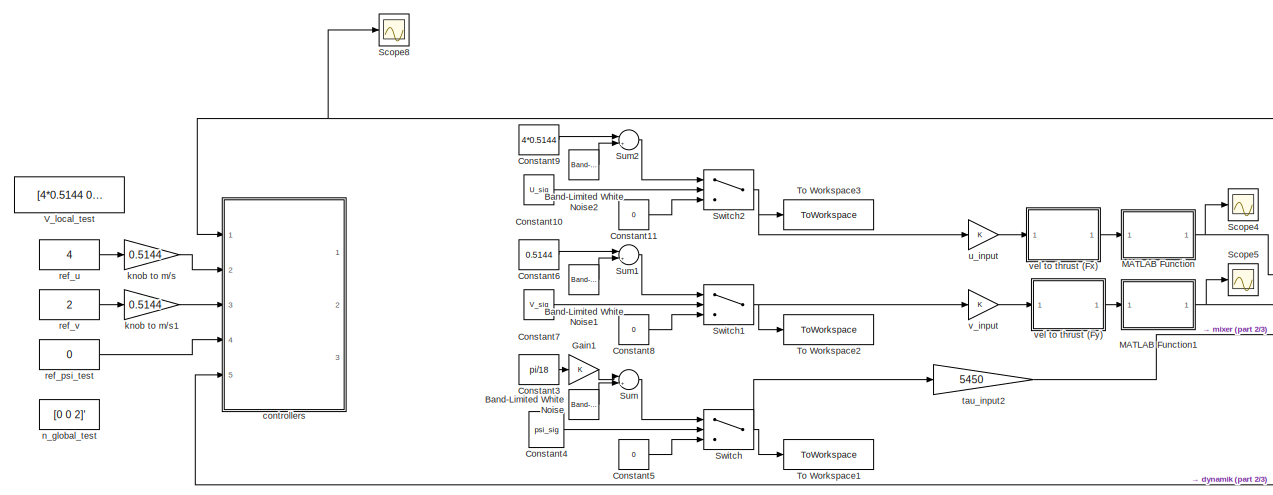
[diagram: root canvas - part 1/3, top left region]
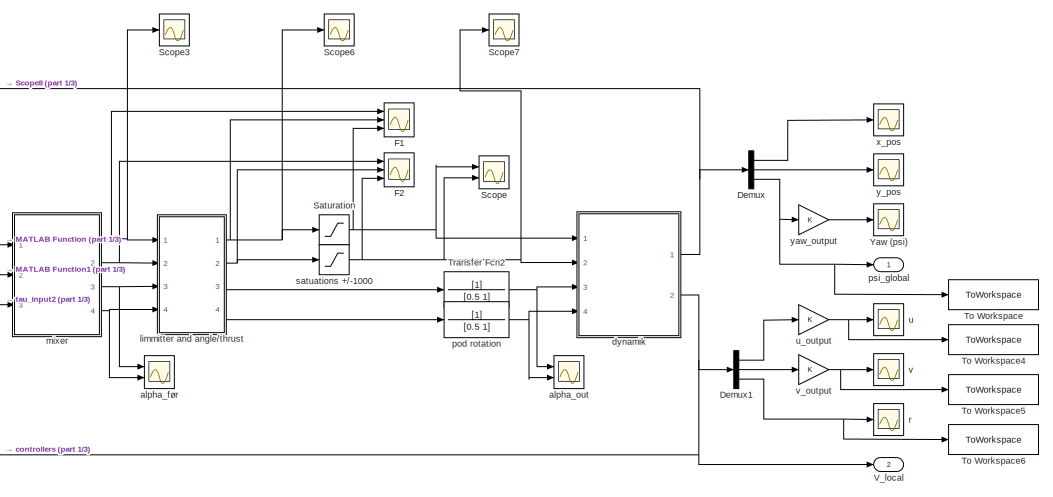
[diagram: root canvas - part 2/3, top right region]
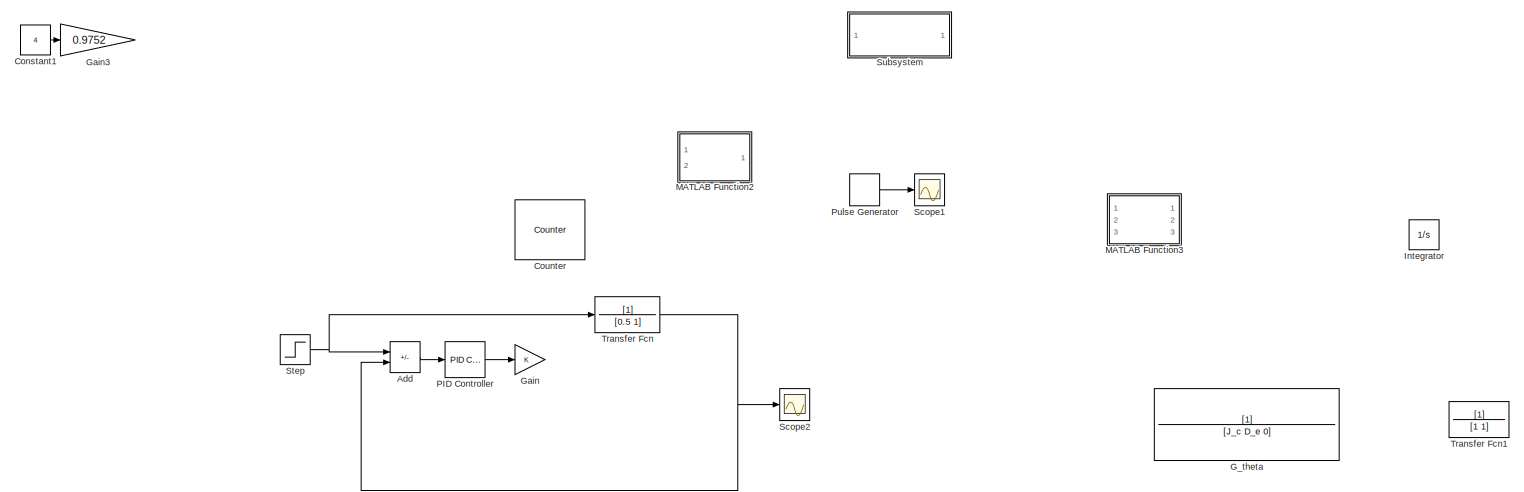
[diagram: root canvas - part 3/3, bottom center region]
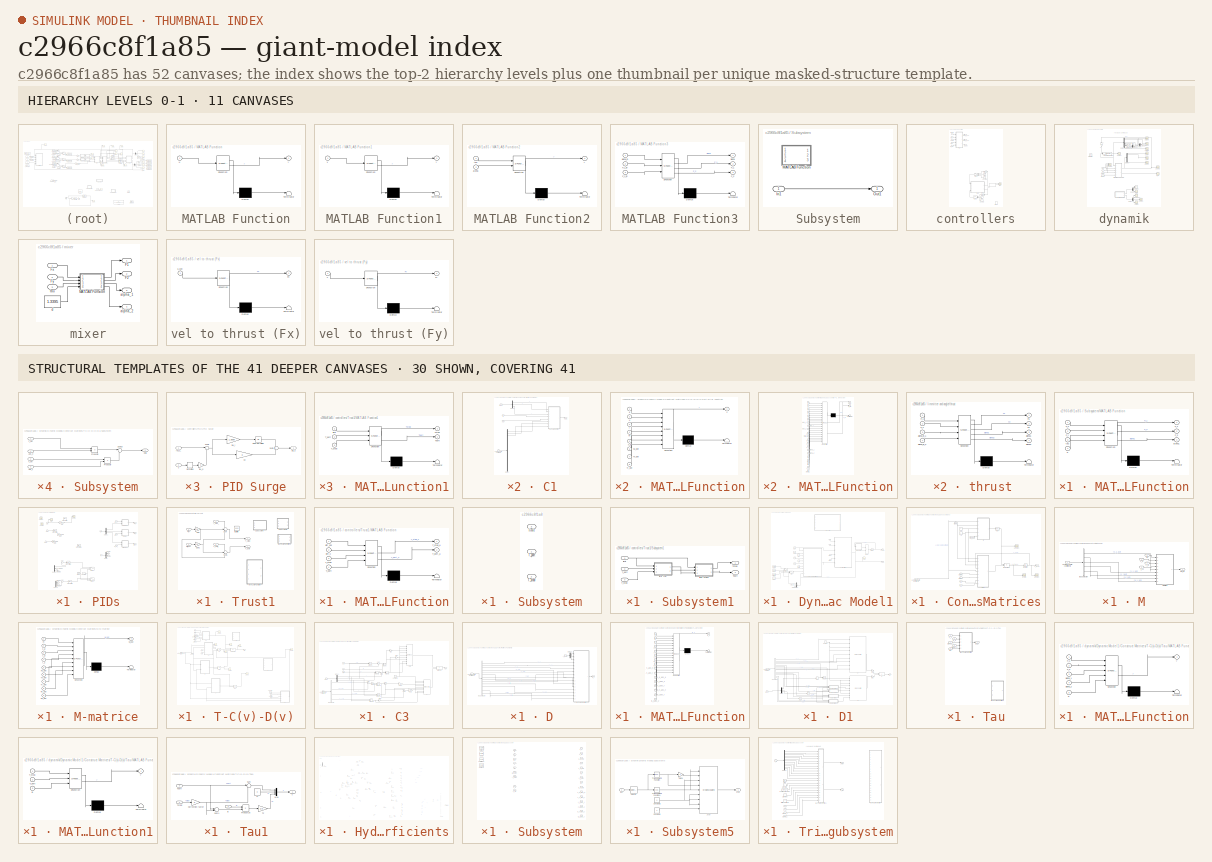
[diagram: thumbnail index - top-2 hierarchy levels (11 canvases) + 30 structural-template representatives of the remaining 41 canvases]
MODEL slx_c2966c8f1a85
KIND model
CONFIG AbsTol = auto
CONFIG EnableMultiTasking = off
CONFIG FixedStep = 0.02
CONFIG MaxStep = auto
CONFIG MinStep = auto
CONFIG RelTol = 1e-3
CONFIG SampleTimeConstraint = Unconstrained
CONFIG SolverName = FixedStepAuto
CONFIG StartTime = 0.0
CONFIG StopTime = 200
BLOCK [Sum] Add
  Commented = on
  IconShape = rectangular
  Inputs = +-
  Ports = [2, 1]
BLOCK [Reference] Band-Limited White Noise  REF=simulink/Sources/Band-Limited
White Noise
  Ports = [0, 1]
  SourceBlock = simulink/Sources/Band-Limited\nWhite Noise
  SourceProductBaseCode = SL
  SourceType = Band-Limited White Noise.
BLOCK [Reference] Band-Limited White Noise1  REF=simulink/Sources/Band-Limited
White Noise
  Ports = [0, 1]
  SourceBlock = simulink/Sources/Band-Limited\nWhite Noise
  SourceProductBaseCode = SL
  SourceType = Band-Limited White Noise.
BLOCK [Reference] Band-Limited White Noise2  REF=simulink/Sources/Band-Limited
White Noise
  Ports = [0, 1]
  SourceBlock = simulink/Sources/Band-Limited\nWhite Noise
  SourceProductBaseCode = SL
  SourceType = Band-Limited White Noise.
BLOCK [Constant] Constant1
  Commented = on
  Value = 4
BLOCK [Constant] Constant10
  Value = U_sig
BLOCK [Constant] Constant11
  Value = 0
BLOCK [Constant] Constant3
  Value = pi/18
BLOCK [Constant] Constant4
  Value = psi_sig
BLOCK [Constant] Constant5
  Value = 0
BLOCK [Constant] Constant6
  Value = 0.5144
BLOCK [Constant] Constant7
  Value = V_sig
BLOCK [Constant] Constant8
  Value = 0
BLOCK [Constant] Constant9
  Value = 4*0.5144
BLOCK [Reference] Counter  REF=dspswit3/Counter
  Commented = on
  Ports = [2, 2]
  SourceBlock = dspswit3/Counter
  SourceProductBaseCode = DS
  SourceType = Counter
BLOCK [Demux] Demux
  Outputs = 3
  Ports = [1, 3]
BLOCK [Demux] Demux1
  Outputs = 3
  Ports = [1, 3]
BLOCK [Scope] F1
  Floating = off
  NumInputPorts = 3
  Ports = [3]
  ScopeSpecificationString = Simulink.scopes.TimeScopeBlockCfg('CurrentConfiguration', extmgr.ConfigurationSet(extmgr.Configuration('Core','General UI',true),extmgr.Configuration('Core','Source UI',true),extmgr.Configuration('Sources','WiredSimulink',true,'DataLoggingVariableName','ScopeData5'),extmgr.Configuration('Visuals','Time Domain',true,'SerializedDisplays',{struct('MinYLimReal','0.000000000000000000007','MaxYLimReal',...<+1929ch>
BLOCK [Scope] F2
  Floating = off
  NumInputPorts = 3
  Ports = [3]
  ScopeSpecificationString = Simulink.scopes.TimeScopeBlockCfg('CurrentConfiguration', extmgr.ConfigurationSet(extmgr.Configuration('Core','General UI',true),extmgr.Configuration('Core','Source UI',true),extmgr.Configuration('Sources','WiredSimulink',true,'DataLoggingVariableName','ScopeData8'),extmgr.Configuration('Visuals','Time Domain',true,'SerializedDisplays',{struct('MinYLimReal','-2229.58864','MaxYLimReal','1358.84318'...<+1818ch>
BLOCK [TransferFcn] G_theta
  Commented = on
  Denominator = [J_c D_e 0]
BLOCK [Gain] Gain
  Commented = on
BLOCK [Gain] Gain1
BLOCK [Gain] Gain3
  Commented = on
  Gain = 0.9752
BLOCK [Integrator] Integrator
  Commented = on
  Ports = [1, 1]
BLOCK [SubSystem] MATLAB Function
  ErrorFcn = Stateflow.Translate.translate
  PermitHierarchicalResolution = ExplicitOnly
  Ports = [1, 1]
  RequestExecContextInheritance = off
  SFBlockType = MATLAB Function
  TreatAsAtomicUnit = on
BLOCK [Demux] MATLAB Function/ Demux 
  Outputs = 1
  Ports = [1, 1]
BLOCK [S-Function] MATLAB Function/ SFunction 
  EnableBusSupport = on
  FunctionName = sf_sfun
  PortCounts = [1 2]
  Ports = [1, 2]
  SFcnIsStateOwnerBlock = off
  SFunctionDeploymentMode = off
  Tag = Stateflow S-Function 6
BLOCK [Terminator] MATLAB Function/ Terminator 
BLOCK [Inport] MATLAB Function/u
BLOCK [Outport] MATLAB Function/y
BLOCK [SubSystem] MATLAB Function1
  ErrorFcn = Stateflow.Translate.translate
  PermitHierarchicalResolution = ExplicitOnly
  Ports = [1, 1]
  RequestExecContextInheritance = off
  SFBlockType = MATLAB Function
  TreatAsAtomicUnit = on
BLOCK [Demux] MATLAB Function1/ Demux 
  Outputs = 1
  Ports = [1, 1]
BLOCK [S-Function] MATLAB Function1/ SFunction 
  EnableBusSupport = on
  FunctionName = sf_sfun
  PortCounts = [1 2]
  Ports = [1, 2]
  SFcnIsStateOwnerBlock = off
  SFunctionDeploymentMode = off
  Tag = Stateflow S-Function 14
BLOCK [Terminator] MATLAB Function1/ Terminator 
BLOCK [Inport] MATLAB Function1/v
BLOCK [Outport] MATLAB Function1/y
BLOCK [SubSystem] MATLAB Function2
  Commented = on
  ErrorFcn = Stateflow.Translate.translate
  PermitHierarchicalResolution = ExplicitOnly
  Ports = [2, 1]
  RequestExecContextInheritance = off
  SFBlockType = MATLAB Function
  TreatAsAtomicUnit = on
BLOCK [Demux] MATLAB Function2/ Demux 
  Outputs = 1
  Ports = [1, 1]
BLOCK [S-Function] MATLAB Function2/ SFunction 
  EnableBusSupport = on
  FunctionName = sf_sfun
  PortCounts = [2 2]
  Ports = [2, 2]
  SFcnIsStateOwnerBlock = off
  SFunctionDeploymentMode = off
  Tag = Stateflow S-Function 16
BLOCK [Terminator] MATLAB Function2/ Terminator 
BLOCK [Inport] MATLAB Function2/alpha
  Port = 2
BLOCK [Inport] MATLAB Function2/tau
BLOCK [Outport] MATLAB Function2/y
BLOCK [SubSystem] MATLAB Function3
  Commented = on
  ErrorFcn = Stateflow.Translate.translate
  PermitHierarchicalResolution = ExplicitOnly
  Ports = [3, 3]
  RequestExecContextInheritance = off
  SFBlockType = MATLAB Function
  TreatAsAtomicUnit = on
BLOCK [Demux] MATLAB Function3/ Demux 
  Outputs = 1
  Ports = [1, 1]
BLOCK [S-Function] MATLAB Function3/ SFunction 
  EnableBusSupport = on
  FunctionName = sf_sfun
  PortCounts = [3 4]
  Ports = [3, 4]
  SFcnIsStateOwnerBlock = off
  SFunctionDeploymentMode = off
  Tag = Stateflow S-Function 2
BLOCK [Terminator] MATLAB Function3/ Terminator 
BLOCK [Outport] MATLAB Function3/F_1
  Port = 2
BLOCK [Inport] MATLAB Function3/F_1_in
  Port = 2
BLOCK [Outport] MATLAB Function3/F_2
  Port = 3
BLOCK [Inport] MATLAB Function3/F_2_in
  Port = 3
BLOCK [Outport] MATLAB Function3/alpha
BLOCK [Inport] MATLAB Function3/alpha_in
BLOCK [Reference] PID Controller  REF=pid_lib/PID Controller
  Commented = on
  Ports = [1, 1]
  SourceBlock = pid_lib/PID Controller
  SourceProductBaseCode = SL
  SourceType = PID 1dof
BLOCK [DiscretePulseGenerator] Pulse Generator
  Commented = on
  Period = 0.02222
  Ports = [0, 1]
  PulseType = Time based
  PulseWidth = 5
BLOCK [Saturate] Saturation
  LowerLimit = -1000
  UpperLimit = 1000
BLOCK [Scope] Scope
  Floating = off
  NumInputPorts = 2
  Ports = [2]
  ScopeSpecificationString = Simulink.scopes.TimeScopeBlockCfg('CurrentConfiguration', extmgr.ConfigurationSet(extmgr.Configuration('Core','General UI',true),extmgr.Configuration('Core','Source UI',true),extmgr.Configuration('Sources','WiredSimulink',true,'DataLoggingVariableName','ScopeData1'),extmgr.Configuration('Visuals','Time Domain',true,'SerializedDisplays',{struct('MinYLimReal','-81.35307','MaxYLimReal','1120.15034','...<+1424ch>
BLOCK [Scope] Scope1
  Commented = on
  Floating = off
  NumInputPorts = 1
  Ports = [1]
  ScopeSpecificationString = Simulink.scopes.TimeScopeBlockCfg('CurrentConfiguration', extmgr.ConfigurationSet(extmgr.Configuration('Core','General UI',true),extmgr.Configuration('Core','Source UI',true),extmgr.Configuration('Sources','WiredSimulink',true,'DataLoggingVariableName','ScopeData4'),extmgr.Configuration('Visuals','Time Domain',true,'SerializedDisplays',{struct('MinYLimReal','-0.04654','MaxYLimReal','1.02085','YLab...<+1450ch>
BLOCK [Scope] Scope2
  Commented = on
  Floating = off
  NumInputPorts = 1
  Ports = [1]
  ScopeSpecificationString = Simulink.scopes.TimeScopeBlockCfg('CurrentConfiguration', extmgr.ConfigurationSet(extmgr.Configuration('Core','General UI',true),extmgr.Configuration('Core','Source UI',true),extmgr.Configuration('Sources','WiredSimulink',true,'DataLoggingVariableName','ScopeData1'),extmgr.Configuration('Visuals','Time Domain',true,'SerializedDisplays',{struct('MinYLimReal','-0.078','MaxYLimReal','0.702','YLabelRe...<+1730ch>
BLOCK [Scope] Scope3
  Floating = off
  NumInputPorts = 1
  Ports = [1]
  ScopeSpecificationString = Simulink.scopes.TimeScopeBlockCfg('CurrentConfiguration', extmgr.ConfigurationSet(extmgr.Configuration('Core','General UI',true),extmgr.Configuration('Core','Source UI',true),extmgr.Configuration('Sources','WiredSimulink',true,'DataLoggingVariableName','ScopeData2'),extmgr.Configuration('Visuals','Time Domain',true,'SerializedDisplays',{struct('MinYLimReal','0.000000000000000000005','MaxYLimReal',...<+1525ch>
BLOCK [Scope] Scope4
  Floating = off
  NumInputPorts = 1
  Ports = [1]
  ScopeSpecificationString = Simulink.scopes.TimeScopeBlockCfg('CurrentConfiguration', extmgr.ConfigurationSet(extmgr.Configuration('Core','General UI',true),extmgr.Configuration('Core','Source UI',true),extmgr.Configuration('Sources','WiredSimulink',true,'DataLoggingVariableName','ScopeData3'),extmgr.Configuration('Visuals','Time Domain',true,'SerializedDisplays',{struct('MinYLimReal','-2818140.4236','MaxYLimReal','9773081.0...<+1493ch>
BLOCK [Scope] Scope5
  Floating = off
  NumInputPorts = 1
  Ports = [1]
  ScopeSpecificationString = Simulink.scopes.TimeScopeBlockCfg('CurrentConfiguration', extmgr.ConfigurationSet(extmgr.Configuration('Core','General UI',true),extmgr.Configuration('Core','Source UI',true),extmgr.Configuration('Sources','WiredSimulink',true,'DataLoggingVariableName','ScopeData4'),extmgr.Configuration('Visuals','Time Domain',true,'SerializedDisplays',{struct('MinYLimReal','-279.16452','MaxYLimReal','2168.27455',...<+1445ch>
BLOCK [Scope] Scope6
  Floating = off
  NumInputPorts = 1
  Ports = [1]
  ScopeSpecificationString = Simulink.scopes.TimeScopeBlockCfg('CurrentConfiguration', extmgr.ConfigurationSet(extmgr.Configuration('Core','General UI',true),extmgr.Configuration('Core','Source UI',true),extmgr.Configuration('Sources','WiredSimulink',true,'DataLoggingVariableName','ScopeData3'),extmgr.Configuration('Visuals','Time Domain',true,'SerializedDisplays',{struct('MinYLimReal','0.000000000000000000007','MaxYLimReal',...<+1519ch>
BLOCK [Scope] Scope7
  Floating = off
  NumInputPorts = 1
  Ports = [1]
  ScopeSpecificationString = Simulink.scopes.TimeScopeBlockCfg('CurrentConfiguration', extmgr.ConfigurationSet(extmgr.Configuration('Core','General UI',true),extmgr.Configuration('Core','Source UI',true),extmgr.Configuration('Sources','WiredSimulink',true,'DataLoggingVariableName','ScopeData4'),extmgr.Configuration('Visuals','Time Domain',true,'SerializedDisplays',{struct('MinYLimReal','206.82988','MaxYLimReal','1088.13001','...<+1427ch>
BLOCK [Scope] Scope8
  Floating = off
  NumInputPorts = 1
  Ports = [1]
  ScopeSpecificationString = Simulink.scopes.TimeScopeBlockCfg('CurrentConfiguration', extmgr.ConfigurationSet(extmgr.Configuration('Core','General UI',true),extmgr.Configuration('Core','Source UI',true),extmgr.Configuration('Sources','WiredSimulink',true,'DataLoggingVariableName','ScopeData5'),extmgr.Configuration('Visuals','Time Domain',true),extmgr.Configuration('Tools','Plot Navigation',true),extmgr.Configuration('Tools',...<+40ch>
BLOCK [Step] Step
  After = 0.78
  Commented = on
  SampleTime = 0
  Time = 0
BLOCK [SubSystem] Subsystem
  Commented = on
  Ports = [1, 1]
  RequestExecContextInheritance = off
BLOCK [Inport] Subsystem/In1
BLOCK [SubSystem] Subsystem/MATLAB Function
  ErrorFcn = Stateflow.Translate.translate
  PermitHierarchicalResolution = ExplicitOnly
  Ports = [4, 3]
  RequestExecContextInheritance = off
  SFBlockType = MATLAB Function
  TreatAsAtomicUnit = on
BLOCK [Demux] Subsystem/MATLAB Function/ Demux 
  Outputs = 1
  Ports = [1, 1]
BLOCK [S-Function] Subsystem/MATLAB Function/ SFunction 
  EnableBusSupport = on
  FunctionName = sf_sfun
  PortCounts = [4 4]
  Ports = [4, 4]
  SFcnIsStateOwnerBlock = off
  SFunctionDeploymentMode = off
  Tag = Stateflow S-Function 4
BLOCK [Terminator] Subsystem/MATLAB Function/ Terminator 
BLOCK [Outport] Subsystem/MATLAB Function/F_1
BLOCK [Outport] Subsystem/MATLAB Function/F_2
  Port = 2
BLOCK [Inport] Subsystem/MATLAB Function/F_x
BLOCK [Inport] Subsystem/MATLAB Function/F_y
  Port = 2
BLOCK [Outport] Subsystem/MATLAB Function/alpha1
  Port = 3
BLOCK [Inport] Subsystem/MATLAB Function/d
  Port = 4
BLOCK [Inport] Subsystem/MATLAB Function/tau
  Port = 3
BLOCK [Outport] Subsystem/Out1
BLOCK [Sum] Sum
  Inputs = |++
  Ports = [2, 1]
BLOCK [Sum] Sum1
  Inputs = |++
  Ports = [2, 1]
BLOCK [Sum] Sum2
  Inputs = |++
  Ports = [2, 1]
BLOCK [Switch] Switch
  Criteria = u2 > Threshold
  InputSameDT = off
  SaturateOnIntegerOverflow = off
BLOCK [Switch] Switch1
  Criteria = u2 > Threshold
  InputSameDT = off
  SaturateOnIntegerOverflow = off
BLOCK [Switch] Switch2
  Criteria = u2 > Threshold
  InputSameDT = off
  SaturateOnIntegerOverflow = off
BLOCK [ToWorkspace] To Workspace
  FixptAsFi = on
  MaxDataPoints = inf
  Ports = [1]
  SampleTime = -1
  SaveFormat = Timeseries
  VariableName = yaw_output
BLOCK [ToWorkspace] To Workspace1
  FixptAsFi = on
  MaxDataPoints = inf
  Ports = [1]
  SampleTime = -1
  SaveFormat = Timeseries
  VariableName = angle_input
BLOCK [ToWorkspace] To Workspace2
  FixptAsFi = on
  MaxDataPoints = inf
  Ports = [1]
  SampleTime = -1
  SaveFormat = Timeseries
  VariableName = vel_v_input
BLOCK [ToWorkspace] To Workspace3
  FixptAsFi = on
  MaxDataPoints = inf
  Ports = [1]
  SampleTime = -1
  SaveFormat = Timeseries
  VariableName = vel_u_input
BLOCK [ToWorkspace] To Workspace4
  FixptAsFi = on
  MaxDataPoints = inf
  Ports = [1]
  SampleTime = -1
  SaveFormat = Timeseries
  VariableName = vel_u_output
BLOCK [ToWorkspace] To Workspace5
  FixptAsFi = on
  MaxDataPoints = inf
  Ports = [1]
  SampleTime = -1
  SaveFormat = Timeseries
  VariableName = vel_v_output
BLOCK [ToWorkspace] To Workspace6
  FixptAsFi = on
  MaxDataPoints = inf
  Ports = [1]
  SampleTime = -1
  SaveFormat = Timeseries
  VariableName = angle_vel_r_output
BLOCK [TransferFcn] Transfer Fcn
  Commented = on
  Denominator = [0.5 1]
BLOCK [TransferFcn] Transfer Fcn1
  Commented = on
  Denominator = [1 1]
BLOCK [TransferFcn] Transfer Fcn2
  Denominator = [0.5 1]
BLOCK [Outport] V_local
  Port = 2
BLOCK [Constant] V_local_test
  Value = [4*0.5144 0.2*0.5144 0]
BLOCK [Scope] Yaw (psi)
  Floating = off
  NumInputPorts = 1
  Ports = [1]
  ScopeSpecificationString = Simulink.scopes.TimeScopeBlockCfg('CurrentConfiguration', extmgr.ConfigurationSet(extmgr.Configuration('Core','General UI',true),extmgr.Configuration('Core','Source UI',true),extmgr.Configuration('Sources','WiredSimulink',true,'DataLoggingVariableName','ScopeData5'),extmgr.Configuration('Visuals','Time Domain',true,'SerializedDisplays',{struct('MinYLimReal','-1.00000','MaxYLimReal','1.00000','YLab...<+1442ch>
BLOCK [Scope] alpha_før
  Floating = off
  NumInputPorts = 2
  Ports = [2]
  ScopeSpecificationString = Simulink.scopes.TimeScopeBlockCfg('CurrentConfiguration', extmgr.ConfigurationSet(extmgr.Configuration('Core','General UI',true),extmgr.Configuration('Core','Source UI',true),extmgr.Configuration('Sources','WiredSimulink',true,'DataLoggingVariableName','ScopeData6'),extmgr.Configuration('Visuals','Time Domain',true,'SerializedDisplays',{struct('MinYLimReal','-1.68909','MaxYLimReal','-1.49756','YLa...<+1769ch>
BLOCK [Scope] alpha_out
  Floating = off
  NumInputPorts = 2
  Ports = [2]
  ScopeSpecificationString = Simulink.scopes.TimeScopeBlockCfg('CurrentConfiguration', extmgr.ConfigurationSet(extmgr.Configuration('Core','General UI',true),extmgr.Configuration('Core','Source UI',true),extmgr.Configuration('Sources','WiredSimulink',true,'DataLoggingVariableName','ScopeData2'),extmgr.Configuration('Visuals','Time Domain',true,'SerializedDisplays',{struct('MinYLimReal','-1.00000','MaxYLimReal','1.00000','YLab...<+1795ch>
BLOCK [SubSystem] controllers
  Ports = [5, 3]
  RequestExecContextInheritance = off
BLOCK [Constant] controllers/Constant2
  Commented = on
  NameLocation = top
  Value = 0
BLOCK [Constant] controllers/Constant3
  Commented = on
  NameLocation = top
  Value = 0
BLOCK [Delay] controllers/Delay1
  Commented = on
  InputPortMap = u0
  Ports = [1, 1]
BLOCK [Gain] controllers/Gain2
  Commented = on
  Gain = 0.999
  NameLocation = top
BLOCK [Gain] controllers/Gain3
  Commented = on
  Gain = 0.999
  NameLocation = top
BLOCK [Inport] controllers/Global n
BLOCK [Inport] controllers/Local V
  Port = 5
BLOCK [SubSystem] controllers/PIDs
  Ports = [5, 3]
  RequestExecContextInheritance = off
BLOCK [Constant] controllers/PIDs/Constant2
  Commented = on
  Value = 0
BLOCK [Demux] controllers/PIDs/Demux
  Outputs = 3
  Ports = [1, 3]
BLOCK [Demux] controllers/PIDs/Demux1
  Outputs = 3
  Ports = [1, 3]
BLOCK [Demux] controllers/PIDs/Demux2
  Commented = on
  Outputs = 3
  Ports = [1, 3]
BLOCK [Demux] controllers/PIDs/Demux3
  Commented = on
  Outputs = 3
  Ports = [1, 3]
BLOCK [Gain] controllers/PIDs/Gain
  Commented = on
  Gain = 25
BLOCK [Gain] controllers/PIDs/Gain1
  Commented = on
  Gain = 1.0715
BLOCK [Gain] controllers/PIDs/Gain2
  Commented = on
  Gain = 3981.1
BLOCK [Reference] controllers/PIDs/PID Controller  REF=pid_lib/PID Controller
  Commented = on
  Ports = [1, 1]
  SourceBlock = pid_lib/PID Controller
  SourceProductBaseCode = SL
  SourceType = PID 1dof
BLOCK [Reference] controllers/PIDs/PID Controller1  REF=pid_lib/PID Controller
  Commented = on
  Ports = [1, 1]
  SourceBlock = pid_lib/PID Controller
  SourceProductBaseCode = SL
  SourceType = PID 1dof
BLOCK [Reference] controllers/PIDs/PID Controller2  REF=pid_lib/PID Controller
  Commented = on
  Ports = [1, 1]
  SourceBlock = pid_lib/PID Controller
  SourceProductBaseCode = SL
  SourceType = PID 1dof
BLOCK [Reference] controllers/PIDs/PID Controller3  REF=pid_lib/PID Controller
  Commented = on
  Ports = [1, 1]
  SourceBlock = pid_lib/PID Controller
  SourceProductBaseCode = SL
  SourceType = PID 1dof
BLOCK [Reference] controllers/PIDs/PID Controller4  REF=pid_lib/PID Controller
  Commented = on
  Ports = [1, 1]
  SourceBlock = pid_lib/PID Controller
  SourceProductBaseCode = SL
  SourceType = PID 1dof
BLOCK [SubSystem] controllers/PIDs/PID Surge
  Ports = [2, 1]
  RequestExecContextInheritance = off
BLOCK [Derivative] controllers/PIDs/PID Surge/Derivative
  Commented = through
BLOCK [Integrator] controllers/PIDs/PID Surge/Integrator Limited
  LimitOutput = on
  LowerSaturationLimit = -3
  Ports = [1, 1]
  UpperSaturationLimit = 3
BLOCK [Gain] controllers/PIDs/PID Surge/Kp
  Gain = 3
BLOCK [Sum] controllers/PIDs/PID Surge/Sum5
  Ports = [2, 1]
BLOCK [Sum] controllers/PIDs/PID Surge/Sum6
  Inputs = |+-
  Ports = [2, 1]
BLOCK [Inport] controllers/PIDs/PID Surge/ref_u_
BLOCK [Outport] controllers/PIDs/PID Surge/sig_u
BLOCK [Gain] controllers/PIDs/PID Surge/tau_d
  Commented = through
BLOCK [Gain] controllers/PIDs/PID Surge/tau_i
  Gain = 1.3599
BLOCK [Inport] controllers/PIDs/PID Surge/u
  Port = 2
BLOCK [SubSystem] controllers/PIDs/PID Sway
  Ports = [2, 1]
  RequestExecContextInheritance = off
BLOCK [Derivative] controllers/PIDs/PID Sway/Derivative1
  Commented = through
BLOCK [Integrator] controllers/PIDs/PID Sway/Integrator1
  Ports = [1, 1]
BLOCK [Gain] controllers/PIDs/PID Sway/Kp
  Gain = 2.15
BLOCK [Sum] controllers/PIDs/PID Sway/Sum7
  Ports = [2, 1]
BLOCK [Sum] controllers/PIDs/PID Sway/Sum8
  Inputs = |+-
  Ports = [2, 1]
BLOCK [Inport] controllers/PIDs/PID Sway/ref_v_
  Port = 2
BLOCK [Outport] controllers/PIDs/PID Sway/sig_v
BLOCK [Gain] controllers/PIDs/PID Sway/tau_d1
  Commented = through
BLOCK [Gain] controllers/PIDs/PID Sway/tau_i
  Gain = 0
BLOCK [Inport] controllers/PIDs/PID Sway/v
BLOCK [SubSystem] controllers/PIDs/PID Sway1
  Ports = [2, 1]
  RequestExecContextInheritance = off
BLOCK [Derivative] controllers/PIDs/PID Sway1/Derivative1
BLOCK [Integrator] controllers/PIDs/PID Sway1/Integrator1
  Ports = [1, 1]
BLOCK [Gain] controllers/PIDs/PID Sway1/Kp
BLOCK [Sum] controllers/PIDs/PID Sway1/Sum7
  Ports = [2, 1]
BLOCK [Sum] controllers/PIDs/PID Sway1/Sum8
  Inputs = |+-
  Ports = [2, 1]
BLOCK [Inport] controllers/PIDs/PID Sway1/psi (r)
BLOCK [Inport] controllers/PIDs/PID Sway1/ref_psi_
  Port = 2
BLOCK [Outport] controllers/PIDs/PID Sway1/sig_r
BLOCK [Gain] controllers/PIDs/PID Sway1/tau_d
BLOCK [Gain] controllers/PIDs/PID Sway1/tau_i
BLOCK [Scope] controllers/PIDs/Scope
  Commented = on
  Floating = off
  NumInputPorts = 1
  Ports = [1]
  ScopeSpecificationString = Simulink.scopes.TimeScopeBlockCfg('CurrentConfiguration', extmgr.ConfigurationSet(extmgr.Configuration('Core','General UI',true),extmgr.Configuration('Core','Source UI',true),extmgr.Configuration('Sources','WiredSimulink',true,'DataLoggingVariableName','ScopeData7'),extmgr.Configuration('Visuals','Time Domain',true,'SerializedDisplays',{struct('MinYLimReal','1.32581','MaxYLimReal','2.15482','YLabe...<+1474ch>
BLOCK [Scope] controllers/PIDs/Scope1
  Commented = on
  Floating = off
  NumInputPorts = 1
  Ports = [1]
  ScopeSpecificationString = Simulink.scopes.TimeScopeBlockCfg('CurrentConfiguration', extmgr.ConfigurationSet(extmgr.Configuration('Core','General UI',true),extmgr.Configuration('Core','Source UI',true),extmgr.Configuration('Sources','WiredSimulink',true,'DataLoggingVariableName','ScopeData1'),extmgr.Configuration('Visuals','Time Domain',true,'SerializedDisplays',{struct('MinYLimReal','1.0576','MaxYLimReal','3.0576','YLabelR...<+1415ch>
BLOCK [Scope] controllers/PIDs/Scope2
  Commented = on
  Floating = off
  NumInputPorts = 1
  Ports = [1]
  ScopeSpecificationString = Simulink.scopes.TimeScopeBlockCfg('CurrentConfiguration', extmgr.ConfigurationSet(extmgr.Configuration('Core','General UI',true),extmgr.Configuration('Core','Source UI',true),extmgr.Configuration('Sources','WiredSimulink',true,'DataLoggingVariableName','ScopeData2'),extmgr.Configuration('Visuals','Time Domain',true,'SerializedDisplays',{struct('MinYLimReal','-0.24751','MaxYLimReal','2.22763','YLab...<+1367ch>
BLOCK [Step] controllers/PIDs/Step1
  Commented = on
  SampleTime = 0
  Time = 0
BLOCK [Sum] controllers/PIDs/Sum
  Commented = on
  Inputs = +|-
  Ports = [2, 1]
BLOCK [Sum] controllers/PIDs/Sum1
  Commented = on
  Inputs = +|-
  Ports = [2, 1]
BLOCK [Sum] controllers/PIDs/Sum2
  Commented = on
  Inputs = +|-
  Ports = [2, 1]
BLOCK [Sum] controllers/PIDs/Sum3
  Commented = on
  Inputs = +|-
  Ports = [2, 1]
BLOCK [Sum] controllers/PIDs/Sum4
  Commented = on
  Inputs = -|+
  Ports = [2, 1]
BLOCK [Switch] controllers/PIDs/Switch2
  Commented = on
  Criteria = u2 > Threshold
  InputSameDT = off
  SaturateOnIntegerOverflow = off
BLOCK [Switch] controllers/PIDs/Switch3
  Commented = on
  Criteria = u2 > Threshold
  InputSameDT = off
  SaturateOnIntegerOverflow = off
BLOCK [Terminator] controllers/PIDs/Terminator
BLOCK [Terminator] controllers/PIDs/Terminator1
BLOCK [Terminator] controllers/PIDs/Terminator4
  Commented = on
BLOCK [Terminator] controllers/PIDs/Terminator5
  Commented = on
BLOCK [Terminator] controllers/PIDs/Terminator6
  Commented = on
BLOCK [Terminator] controllers/PIDs/Terminator7
  Commented = on
BLOCK [Inport] controllers/PIDs/V
  Port = 3
BLOCK [Scope] controllers/PIDs/dif_u
  Commented = on
  Floating = off
  NumInputPorts = 1
  Ports = [1]
  ScopeSpecificationString = Simulink.scopes.TimeScopeBlockCfg('CurrentConfiguration', extmgr.ConfigurationSet(extmgr.Configuration('Core','General UI',true),extmgr.Configuration('Core','Source UI',true),extmgr.Configuration('Sources','WiredSimulink',true,'DataLoggingVariableName','ScopeData6'),extmgr.Configuration('Visuals','Time Domain',true,'SerializedDisplays',{struct('MinYLimReal','-0.80184','MaxYLimReal','2.37532','YLab...<+1438ch>
BLOCK [Outport] controllers/PIDs/diff_psi
  Port = 3
BLOCK [Inport] controllers/PIDs/n
BLOCK [Inport] controllers/PIDs/ref_psi_
  Port = 5
BLOCK [Inport] controllers/PIDs/ref_u_
  Port = 2
BLOCK [Inport] controllers/PIDs/ref_v_
  Port = 4
BLOCK [Outport] controllers/PIDs/sig_u
BLOCK [Outport] controllers/PIDs/sig_v
  Port = 2
BLOCK [Step] controllers/Step2
  Commented = on
  NameLocation = top
  SampleTime = 0
  Time = 0
BLOCK [Step] controllers/Step3
  Commented = on
  NameLocation = top
  SampleTime = 0
  Time = 0
BLOCK [Switch] controllers/Switch2
  Commented = on
  Criteria = u2 > Threshold
  InputSameDT = off
  NameLocation = top
  SaturateOnIntegerOverflow = off
BLOCK [Switch] controllers/Switch3
  Commented = on
  Criteria = u2 > Threshold
  InputSameDT = off
  NameLocation = top
  SaturateOnIntegerOverflow = off
BLOCK [Outport] controllers/Thrust_x_con
BLOCK [Outport] controllers/Thrust_y_con
  Port = 2
BLOCK [SubSystem] controllers/Trust1
  Commented = on
  Ports = [4, 2]
  RequestExecContextInheritance = off
BLOCK [Gain] controllers/Trust1/Gain
  Gain = 0.5
BLOCK [Gain] controllers/Trust1/Gain2
  Gain = 0.5
BLOCK [SubSystem] controllers/Trust1/MATLAB Function
  Commented = on
  ErrorFcn = Stateflow.Translate.translate
  PermitHierarchicalResolution = ExplicitOnly
  Ports = [4, 2]
  RequestExecContextInheritance = off
  SFBlockType = MATLAB Function
  TreatAsAtomicUnit = on
BLOCK [Demux] controllers/Trust1/MATLAB Function/ Demux 
  Outputs = 1
  Ports = [1, 1]
BLOCK [S-Function] controllers/Trust1/MATLAB Function/ SFunction 
  EnableBusSupport = on
  FunctionName = sf_sfun
  PortCounts = [4 3]
  Ports = [4, 3]
  SFcnIsStateOwnerBlock = off
  SFunctionDeploymentMode = off
  Tag = Stateflow S-Function 20
BLOCK [Terminator] controllers/Trust1/MATLAB Function/ Terminator 
BLOCK [Inport] controllers/Trust1/MATLAB Function/T_port
  Port = 4
BLOCK [Outport] controllers/Trust1/MATLAB Function/T_port_u
  Port = 2
BLOCK [Inport] controllers/Trust1/MATLAB Function/T_stbd
  Port = 3
BLOCK [Outport] controllers/Trust1/MATLAB Function/T_stbd_u
BLOCK [Inport] controllers/Trust1/MATLAB Function/diff_psi
BLOCK [Inport] controllers/Trust1/MATLAB Function/diff_v
  Port = 2
BLOCK [SubSystem] controllers/Trust1/MATLAB Function1
  Commented = on
  ErrorFcn = Stateflow.Translate.translate
  PermitHierarchicalResolution = ExplicitOnly
  Ports = [3, 2]
  RequestExecContextInheritance = off
  SFBlockType = MATLAB Function
  TreatAsAtomicUnit = on
BLOCK [Demux] controllers/Trust1/MATLAB Function1/ Demux 
  Outputs = 1
  Ports = [1, 1]
BLOCK [S-Function] controllers/Trust1/MATLAB Function1/ SFunction 
  EnableBusSupport = on
  FunctionName = sf_sfun
  PortCounts = [3 3]
  Ports = [3, 3]
  SFcnIsStateOwnerBlock = off
  SFunctionDeploymentMode = off
  Tag = Stateflow S-Function 21
BLOCK [Terminator] controllers/Trust1/MATLAB Function1/ Terminator 
BLOCK [Inport] controllers/Trust1/MATLAB Function1/T_port
  Port = 2
BLOCK [Inport] controllers/Trust1/MATLAB Function1/T_stbd
  Port = 3
BLOCK [Outport] controllers/Trust1/MATLAB Function1/Tport
  Port = 2
BLOCK [Outport] controllers/Trust1/MATLAB Function1/Tstbd
BLOCK [Inport] controllers/Trust1/MATLAB Function1/limit
BLOCK [SubSystem] controllers/Trust1/Subsystem
  Commented = on
  Ports = [3]
  RequestExecContextInheritance = off
BLOCK [Inport] controllers/Trust1/Subsystem/T_port 
BLOCK [Inport] controllers/Trust1/Subsystem/T_stbd 
  Port = 2
BLOCK [Inport] controllers/Trust1/Subsystem/limit
  Port = 3
BLOCK [SubSystem] controllers/Trust1/Subsystem1
  Commented = on
  Ports = [3, 2]
  RequestExecContextInheritance = off
BLOCK [Inport] controllers/Trust1/Subsystem1/T_port
  Port = 2
BLOCK [Inport] controllers/Trust1/Subsystem1/T_stbd
  Port = 3
BLOCK [Outport] controllers/Trust1/Subsystem1/Tport
  Port = 2
BLOCK [Outport] controllers/Trust1/Subsystem1/Tstbd
BLOCK [Inport] controllers/Trust1/Subsystem1/limit
BLOCK [SubSystem] controllers/Trust1/Subsystem1/limit maks
  ErrorFcn = Stateflow.Translate.translate
  PermitHierarchicalResolution = ExplicitOnly
  Ports = [3, 2]
  RequestExecContextInheritance = off
  SFBlockType = MATLAB Function
  TreatAsAtomicUnit = on
BLOCK [Demux] controllers/Trust1/Subsystem1/limit maks/ Demux 
  Outputs = 1
  Ports = [1, 1]
BLOCK [S-Function] controllers/Trust1/Subsystem1/limit maks/ SFunction 
  EnableBusSupport = on
  FunctionName = sf_sfun
  PortCounts = [3 3]
  Ports = [3, 3]
  SFcnIsStateOwnerBlock = off
  SFunctionDeploymentMode = off
  Tag = Stateflow S-Function 22
BLOCK [Terminator] controllers/Trust1/Subsystem1/limit maks/ Terminator 
BLOCK [Inport] controllers/Trust1/Subsystem1/limit maks/T_port
  Port = 2
BLOCK [Inport] controllers/Trust1/Subsystem1/limit maks/T_stbd
  Port = 3
BLOCK [Outport] controllers/Trust1/Subsystem1/limit maks/Tport
  Port = 2
BLOCK [Outport] controllers/Trust1/Subsystem1/limit maks/Tstbd
BLOCK [Inport] controllers/Trust1/Subsystem1/limit maks/limit
BLOCK [SubSystem] controllers/Trust1/Subsystem1/limit min
  ErrorFcn = Stateflow.Translate.translate
  PermitHierarchicalResolution = ExplicitOnly
  Ports = [3, 2]
  RequestExecContextInheritance = off
  SFBlockType = MATLAB Function
  TreatAsAtomicUnit = on
BLOCK [Demux] controllers/Trust1/Subsystem1/limit min/ Demux 
  Outputs = 1
  Ports = [1, 1]
BLOCK [S-Function] controllers/Trust1/Subsystem1/limit min/ SFunction 
  EnableBusSupport = on
  FunctionName = sf_sfun
  PortCounts = [3 3]
  Ports = [3, 3]
  SFcnIsStateOwnerBlock = off
  SFunctionDeploymentMode = off
  Tag = Stateflow S-Function 23
BLOCK [Terminator] controllers/Trust1/Subsystem1/limit min/ Terminator 
BLOCK [Inport] controllers/Trust1/Subsystem1/limit min/T_port
  Port = 2
BLOCK [Inport] controllers/Trust1/Subsystem1/limit min/T_stbd
  Port = 3
BLOCK [Outport] controllers/Trust1/Subsystem1/limit min/Tport
  Port = 2
BLOCK [Outport] controllers/Trust1/Subsystem1/limit min/Tstbd
BLOCK [Inport] controllers/Trust1/Subsystem1/limit min/limit
BLOCK [Sum] controllers/Trust1/Sum
  Inputs = +++
  Ports = [3, 1]
BLOCK [Sum] controllers/Trust1/Sum1
  Inputs = +-+
  Ports = [3, 1]
BLOCK [Outport] controllers/Trust1/T_port
BLOCK [Inport] controllers/Trust1/T_port_
  Port = 4
BLOCK [Outport] controllers/Trust1/T_stbd
  Port = 2
BLOCK [Inport] controllers/Trust1/T_stdb_
BLOCK [Inport] controllers/Trust1/diff_psi
  Port = 3
BLOCK [Inport] controllers/Trust1/diff_v
  Port = 2
BLOCK [Constant] controllers/Trust1/trust limit
  Value = 1000
BLOCK [Outport] controllers/psi_con
  Port = 3
BLOCK [Inport] controllers/ref_psi.
  Port = 4
BLOCK [Inport] controllers/ref_u.
  Port = 2
BLOCK [Inport] controllers/ref_v.
  Port = 3
BLOCK [Scope] controllers/trust1
  Commented = on
  Floating = off
  NumInputPorts = 2
  Ports = [2]
  ScopeSpecificationString = Simulink.scopes.TimeScopeBlockCfg('CurrentConfiguration', extmgr.ConfigurationSet(extmgr.Configuration('Core','General UI',true),extmgr.Configuration('Core','Source UI',true),extmgr.Configuration('Sources','WiredSimulink',true,'DataLoggingVariableName','ScopeData1'),extmgr.Configuration('Visuals','Time Domain',true,'SerializedDisplays',{struct('MinYLimReal','471.64904','MaxYLimReal','479.77442','Y...<+1870ch>
BLOCK [SubSystem] dynamik
  Ports = [4, 2]
  RequestExecContextInheritance = off
BLOCK [Sum] dynamik/Add
  IconShape = rectangular
  Ports = [2, 1]
BLOCK [Demux] dynamik/Demux
  Outputs = 12
  Ports = [1, 12]
BLOCK [Demux] dynamik/Demux1
  Commented = on
  Outputs = 3
  Ports = [1, 3]
BLOCK [Demux] dynamik/Demux4
  Commented = on
  Outputs = 3
  Ports = [1, 3]
BLOCK [Demux] dynamik/Demux5
  Outputs = 12
  Ports = [1, 12]
BLOCK [DiscreteTransferFcn] dynamik/Discrete Transfer Fcn
  Denominator = [ 1 0]
  InputPortMap = u0
  Ports = [1, 1]
  SampleTime = 0.02
BLOCK [SubSystem] dynamik/Dynamic Model1
  Commented = on
  Ports = [4, 2]
  RequestExecContextInheritance = off
BLOCK [Constant] dynamik/Dynamic Model1/Bhull 
  Value = 1.386
BLOCK [Constant] dynamik/Dynamic Model1/Cd
  Value = 1.1
BLOCK [SubSystem] dynamik/Dynamic Model1/Construct Matrices
  Ports = [6, 1]
  RequestExecContextInheritance = off
BLOCK [Inport] dynamik/Dynamic Model1/Construct Matrices/F1
  Port = 2
BLOCK [Inport] dynamik/Dynamic Model1/Construct Matrices/F2
BLOCK [Inport] dynamik/Dynamic Model1/Construct Matrices/Hydrodynamic Coefficients
  Port = 6
BLOCK [Constant] dynamik/Dynamic Model1/Construct Matrices/I
  Value = 0.0144
BLOCK [Integrator] dynamik/Dynamic Model1/Construct Matrices/Integrator
  InitialCondition = [0 0 0]
  Ports = [1, 1]
BLOCK [SubSystem] dynamik/Dynamic Model1/Construct Matrices/M
  Ports = [5, 1]
  RequestExecContextInheritance = off
BLOCK [BusSelector] dynamik/Dynamic Model1/Construct Matrices/M/Bus Selector
  OutputSignals = X_u_dot,Y_r_dot,N_v_dot,Y_v_dot,N_r_dot
  Ports = [1, 5]
BLOCK [Inport] dynamik/Dynamic Model1/Construct Matrices/M/Hydrodynamic coefficients
BLOCK [Inport] dynamik/Dynamic Model1/Construct Matrices/M/I_z1
  Port = 5
BLOCK [SubSystem] dynamik/Dynamic Model1/Construct Matrices/M/M-matrice
  ErrorFcn = Stateflow.Translate.translate
  PermitHierarchicalResolution = ExplicitOnly
  Ports = [9, 1]
  RequestExecContextInheritance = off
  SFBlockType = MATLAB Function
  TreatAsAtomicUnit = on
BLOCK [Demux] dynamik/Dynamic Model1/Construct Matrices/M/M-matrice/ Demux 
  Outputs = 1
  Ports = [1, 1]
BLOCK [S-Function] dynamik/Dynamic Model1/Construct Matrices/M/M-matrice/ SFunction 
  EnableBusSupport = on
  FunctionName = sf_sfun
  PortCounts = [9 2]
  Ports = [9, 2]
  SFcnIsStateOwnerBlock = off
  SFunctionDeploymentMode = off
  Tag = Stateflow S-Function 27
BLOCK [Terminator] dynamik/Dynamic Model1/Construct Matrices/M/M-matrice/ Terminator 
BLOCK [Inport] dynamik/Dynamic Model1/Construct Matrices/M/M-matrice/I_z
  Port = 4
BLOCK [Outport] dynamik/Dynamic Model1/Construct Matrices/M/M-matrice/M_out
BLOCK [Inport] dynamik/Dynamic Model1/Construct Matrices/M/M-matrice/Nr_dot
  Port = 8
BLOCK [Inport] dynamik/Dynamic Model1/Construct Matrices/M/M-matrice/Nv_dot
  Port = 9
BLOCK [Inport] dynamik/Dynamic Model1/Construct Matrices/M/M-matrice/Xu_dot
  Port = 5
BLOCK [Inport] dynamik/Dynamic Model1/Construct Matrices/M/M-matrice/Yr_dot
  Port = 7
BLOCK [Inport] dynamik/Dynamic Model1/Construct Matrices/M/M-matrice/Yv_dot
  Port = 6
BLOCK [Inport] dynamik/Dynamic Model1/Construct Matrices/M/M-matrice/m
BLOCK [Inport] dynamik/Dynamic Model1/Construct Matrices/M/M-matrice/x_g
  Port = 2
BLOCK [Inport] dynamik/Dynamic Model1/Construct Matrices/M/M-matrice/y_g
  Port = 3
BLOCK [Outport] dynamik/Dynamic Model1/Construct Matrices/M/Out_M
BLOCK [Inport] dynamik/Dynamic Model1/Construct Matrices/M/m1
  Port = 2
BLOCK [Inport] dynamik/Dynamic Model1/Construct Matrices/M/x_g
  Port = 3
BLOCK [Inport] dynamik/Dynamic Model1/Construct Matrices/M/y_g
  Port = 4
BLOCK [Reference] dynamik/Dynamic Model1/Construct Matrices/M^-1  REF=aerolibutil/Invert 
3x3 Matrix
  Ports = [1, 1]
  SourceBlock = aerolibutil/Invert \n3x3 Matrix
  SourceProductBaseCode = AE
  SourceType = Invert 3x3 Matrix
BLOCK [Product] dynamik/Dynamic Model1/Construct Matrices/M^-1(T-C(v)-D(v))
  Multiplication = Matrix(*)
  Ports = [2, 1]
BLOCK [Inport] dynamik/Dynamic Model1/Construct Matrices/Mass 
  Port = 3
BLOCK [Scope] dynamik/Dynamic Model1/Construct Matrices/Scope
  Floating = off
  NumInputPorts = 1
  Ports = [1]
  ScopeSpecificationString = Simulink.scopes.TimeScopeBlockCfg('CurrentConfiguration', extmgr.ConfigurationSet(extmgr.Configuration('Core','General UI',true),extmgr.Configuration('Core','Source UI',true),extmgr.Configuration('Sources','WiredSimulink',true,'DataLoggingVariableName','ScopeData1'),extmgr.Configuration('Visuals','Time Domain',true,'SerializedDisplays',{struct('MinYLimReal','-0.1162','MaxYLimReal','1.04574','YLabe...<+1835ch>
BLOCK [Scope] dynamik/Dynamic Model1/Construct Matrices/Scope1
  Floating = off
  NumInputPorts = 1
  Ports = [1]
  ScopeSpecificationString = Simulink.scopes.TimeScopeBlockCfg('CurrentConfiguration', extmgr.ConfigurationSet(extmgr.Configuration('Core','General UI',true),extmgr.Configuration('Core','Source UI',true),extmgr.Configuration('Sources','WiredSimulink',true,'DataLoggingVariableName','ScopeData2'),extmgr.Configuration('Visuals','Time Domain',true,'SerializedDisplays',{struct('MinYLimReal','-0.00017','MaxYLimReal','0.0015','YLabe...<+1766ch>
BLOCK [Scope] dynamik/Dynamic Model1/Construct Matrices/Scope2
  Floating = off
  NumInputPorts = 1
  Ports = [1]
  ScopeSpecificationString = Simulink.scopes.TimeScopeBlockCfg('CurrentConfiguration', extmgr.ConfigurationSet(extmgr.Configuration('Core','General UI',true),extmgr.Configuration('Core','Source UI',true),extmgr.Configuration('Sources','WiredSimulink',true,'DataLoggingVariableName','ScopeData3'),extmgr.Configuration('Visuals','Time Domain',true,'SerializedDisplays',{struct('MinYLimReal','-0.99716','MaxYLimReal','8.97448','YLab...<+1708ch>
BLOCK [SubSystem] dynamik/Dynamic Model1/Construct Matrices/T-C(v)-D(v)
  Ports = [9, 1]
  RequestExecContextInheritance = off
BLOCK [Product] dynamik/Dynamic Model1/Construct Matrices/T-C(v)-D(v)/C(v)v
  Multiplication = Matrix(*)
  Ports = [2, 1]
BLOCK [SubSystem] dynamik/Dynamic Model1/Construct Matrices/T-C(v)-D(v)/C1
  Commented = on
  Ports = [4, 1]
  RequestExecContextInheritance = off
BLOCK [Demux] dynamik/Dynamic Model1/Construct Matrices/T-C(v)-D(v)/C1/Demux
  Outputs = 19
  Ports = [1, 19]
BLOCK [Demux] dynamik/Dynamic Model1/Construct Matrices/T-C(v)-D(v)/C1/Demux1
  Outputs = 3
  Ports = [1, 3]
BLOCK [Inport] dynamik/Dynamic Model1/Construct Matrices/T-C(v)-D(v)/C1/Hydrodynamic coefficients
BLOCK [SubSystem] dynamik/Dynamic Model1/Construct Matrices/T-C(v)-D(v)/C1/MATLAB Function
  ErrorFcn = Stateflow.Translate.translate
  PermitHierarchicalResolution = ExplicitOnly
  Ports = [8, 1]
  RequestExecContextInheritance = off
  SFBlockType = MATLAB Function
  TreatAsAtomicUnit = on
BLOCK [Demux] dynamik/Dynamic Model1/Construct Matrices/T-C(v)-D(v)/C1/MATLAB Function/ Demux 
  Outputs = 1
  Ports = [1, 1]
BLOCK [S-Function] dynamik/Dynamic Model1/Construct Matrices/T-C(v)-D(v)/C1/MATLAB Function/ SFunction 
  EnableBusSupport = on
  FunctionName = sf_sfun
  PortCounts = [8 2]
  Ports = [8, 2]
  SFcnIsStateOwnerBlock = off
  SFunctionDeploymentMode = off
  Tag = Stateflow S-Function 28
BLOCK [Terminator] dynamik/Dynamic Model1/Construct Matrices/T-C(v)-D(v)/C1/MATLAB Function/ Terminator 
BLOCK [Inport] dynamik/Dynamic Model1/Construct Matrices/T-C(v)-D(v)/C1/MATLAB Function/Xu_dot
  Port = 6
BLOCK [Inport] dynamik/Dynamic Model1/Construct Matrices/T-C(v)-D(v)/C1/MATLAB Function/Yr_dot
  Port = 8
BLOCK [Inport] dynamik/Dynamic Model1/Construct Matrices/T-C(v)-D(v)/C1/MATLAB Function/Yv_dot
  Port = 7
BLOCK [Inport] dynamik/Dynamic Model1/Construct Matrices/T-C(v)-D(v)/C1/MATLAB Function/m
  Port = 4
BLOCK [Inport] dynamik/Dynamic Model1/Construct Matrices/T-C(v)-D(v)/C1/MATLAB Function/r
  Port = 3
BLOCK [Inport] dynamik/Dynamic Model1/Construct Matrices/T-C(v)-D(v)/C1/MATLAB Function/u
  Port = 2
BLOCK [Inport] dynamik/Dynamic Model1/Construct Matrices/T-C(v)-D(v)/C1/MATLAB Function/v
BLOCK [Inport] dynamik/Dynamic Model1/Construct Matrices/T-C(v)-D(v)/C1/MATLAB Function/x_g
  Port = 5
BLOCK [Outport] dynamik/Dynamic Model1/Construct Matrices/T-C(v)-D(v)/C1/MATLAB Function/y
BLOCK [Inport] dynamik/Dynamic Model1/Construct Matrices/T-C(v)-D(v)/C1/V local
  Port = 2
BLOCK [Inport] dynamik/Dynamic Model1/Construct Matrices/T-C(v)-D(v)/C1/m
  Port = 3
BLOCK [Outport] dynamik/Dynamic Model1/Construct Matrices/T-C(v)-D(v)/C1/out_C
BLOCK [Inport] dynamik/Dynamic Model1/Construct Matrices/T-C(v)-D(v)/C1/x_g
  Port = 4
BLOCK [SubSystem] dynamik/Dynamic Model1/Construct Matrices/T-C(v)-D(v)/C2
  Ports = [4, 1]
  RequestExecContextInheritance = off
BLOCK [Demux] dynamik/Dynamic Model1/Construct Matrices/T-C(v)-D(v)/C2/Demux
  Outputs = 19
  Ports = [1, 19]
BLOCK [Demux] dynamik/Dynamic Model1/Construct Matrices/T-C(v)-D(v)/C2/Demux1
  Outputs = 3
  Ports = [1, 3]
BLOCK [Inport] dynamik/Dynamic Model1/Construct Matrices/T-C(v)-D(v)/C2/Hydrodynamic coefficients
BLOCK [SubSystem] dynamik/Dynamic Model1/Construct Matrices/T-C(v)-D(v)/C2/MATLAB Function
  ErrorFcn = Stateflow.Translate.translate
  PermitHierarchicalResolution = ExplicitOnly
  Ports = [8, 1]
  RequestExecContextInheritance = off
  SFBlockType = MATLAB Function
  TreatAsAtomicUnit = on
BLOCK [Demux] dynamik/Dynamic Model1/Construct Matrices/T-C(v)-D(v)/C2/MATLAB Function/ Demux 
  Outputs = 1
  Ports = [1, 1]
BLOCK [S-Function] dynamik/Dynamic Model1/Construct Matrices/T-C(v)-D(v)/C2/MATLAB Function/ SFunction 
  EnableBusSupport = on
  FunctionName = sf_sfun
  PortCounts = [8 2]
  Ports = [8, 2]
  SFcnIsStateOwnerBlock = off
  SFunctionDeploymentMode = off
  Tag = Stateflow S-Function 29
BLOCK [Terminator] dynamik/Dynamic Model1/Construct Matrices/T-C(v)-D(v)/C2/MATLAB Function/ Terminator 
BLOCK [Inport] dynamik/Dynamic Model1/Construct Matrices/T-C(v)-D(v)/C2/MATLAB Function/Xu_dot
  Port = 6
BLOCK [Inport] dynamik/Dynamic Model1/Construct Matrices/T-C(v)-D(v)/C2/MATLAB Function/Yr_dot
  Port = 8
BLOCK [Inport] dynamik/Dynamic Model1/Construct Matrices/T-C(v)-D(v)/C2/MATLAB Function/Yv_dot
  Port = 7
BLOCK [Inport] dynamik/Dynamic Model1/Construct Matrices/T-C(v)-D(v)/C2/MATLAB Function/m
  Port = 4
BLOCK [Inport] dynamik/Dynamic Model1/Construct Matrices/T-C(v)-D(v)/C2/MATLAB Function/r
  Port = 3
BLOCK [Inport] dynamik/Dynamic Model1/Construct Matrices/T-C(v)-D(v)/C2/MATLAB Function/u
  Port = 2
BLOCK [Inport] dynamik/Dynamic Model1/Construct Matrices/T-C(v)-D(v)/C2/MATLAB Function/v
BLOCK [Inport] dynamik/Dynamic Model1/Construct Matrices/T-C(v)-D(v)/C2/MATLAB Function/x_g
  Port = 5
BLOCK [Outport] dynamik/Dynamic Model1/Construct Matrices/T-C(v)-D(v)/C2/MATLAB Function/y
BLOCK [Inport] dynamik/Dynamic Model1/Construct Matrices/T-C(v)-D(v)/C2/V local
  Port = 2
BLOCK [Inport] dynamik/Dynamic Model1/Construct Matrices/T-C(v)-D(v)/C2/m
  Port = 3
BLOCK [Outport] dynamik/Dynamic Model1/Construct Matrices/T-C(v)-D(v)/C2/out_C
BLOCK [Inport] dynamik/Dynamic Model1/Construct Matrices/T-C(v)-D(v)/C2/x_g
  Port = 4
BLOCK [SubSystem] dynamik/Dynamic Model1/Construct Matrices/T-C(v)-D(v)/C3
  Ports = [5, 1]
  RequestExecContextInheritance = off
BLOCK [Reference] dynamik/Dynamic Model1/Construct Matrices/T-C(v)-D(v)/C3/ CRB  REF=sharedutil/Create 3x3 Matrix
  Ports = [9, 1]
  SourceBlock = sharedutil/Create 3x3 Matrix
  SourceProductBaseCode = AE,PW,DR,MT,UV,VE
  SourceType = Create 3x3 Matrix
BLOCK [BusSelector] dynamik/Dynamic Model1/Construct Matrices/T-C(v)-D(v)/C3/Bus Selector
  OutputSignals = Y_r_dot,N_v_dot,Y_v_dot,X_u_dot
  Ports = [1, 4]
BLOCK [Outport] dynamik/Dynamic Model1/Construct Matrices/T-C(v)-D(v)/C3/C(v)
  VectorParamsAs1DForOutWhenUnconnected = off
BLOCK [Reference] dynamik/Dynamic Model1/Construct Matrices/T-C(v)-D(v)/C3/CA  REF=sharedutil/Create 3x3 Matrix
  Ports = [9, 1]
  SourceBlock = sharedutil/Create 3x3 Matrix
  SourceProductBaseCode = AE,PW,DR,MT,UV,VE
  SourceType = Create 3x3 Matrix
BLOCK [Constant] dynamik/Dynamic Model1/Construct Matrices/T-C(v)-D(v)/C3/Constant3
  Value = 0
BLOCK [Demux] dynamik/Dynamic Model1/Construct Matrices/T-C(v)-D(v)/C3/Demux1
  Outputs = 3
  Ports = [1, 3]
BLOCK [Gain] dynamik/Dynamic Model1/Construct Matrices/T-C(v)-D(v)/C3/Gain
  Gain = -1
BLOCK [Gain] dynamik/Dynamic Model1/Construct Matrices/T-C(v)-D(v)/C3/Gain1
  Gain = -1
BLOCK [Gain] dynamik/Dynamic Model1/Construct Matrices/T-C(v)-D(v)/C3/Gain2
  Gain = 1/2
BLOCK [Gain] dynamik/Dynamic Model1/Construct Matrices/T-C(v)-D(v)/C3/Gain3
  Gain = 2
BLOCK [Gain] dynamik/Dynamic Model1/Construct Matrices/T-C(v)-D(v)/C3/Gain5
  Gain = 2
BLOCK [Gain] dynamik/Dynamic Model1/Construct Matrices/T-C(v)-D(v)/C3/Gain6
  Gain = -1
BLOCK [Inport] dynamik/Dynamic Model1/Construct Matrices/T-C(v)-D(v)/C3/Hydrodynamic coefficients
  Port = 4
BLOCK [Sum] dynamik/Dynamic Model1/Construct Matrices/T-C(v)-D(v)/C3/Matrix Sum
  IconShape = rectangular
  Ports = [2, 1]
BLOCK [Product] dynamik/Dynamic Model1/Construct Matrices/T-C(v)-D(v)/C3/Product
  Ports = [2, 1]
BLOCK [Product] dynamik/Dynamic Model1/Construct Matrices/T-C(v)-D(v)/C3/Product1
  Ports = [2, 1]
BLOCK [Product] dynamik/Dynamic Model1/Construct Matrices/T-C(v)-D(v)/C3/Product2
  Ports = [2, 1]
BLOCK [Product] dynamik/Dynamic Model1/Construct Matrices/T-C(v)-D(v)/C3/Product3
  Ports = [2, 1]
BLOCK [Product] dynamik/Dynamic Model1/Construct Matrices/T-C(v)-D(v)/C3/Product4
  Ports = [2, 1]
BLOCK [Product] dynamik/Dynamic Model1/Construct Matrices/T-C(v)-D(v)/C3/Product5
  Ports = [2, 1]
BLOCK [Product] dynamik/Dynamic Model1/Construct Matrices/T-C(v)-D(v)/C3/Product6
  Ports = [2, 1]
BLOCK [Sum] dynamik/Dynamic Model1/Construct Matrices/T-C(v)-D(v)/C3/Sum3
  Inputs = |++
  Ports = [2, 1]
BLOCK [Sum] dynamik/Dynamic Model1/Construct Matrices/T-C(v)-D(v)/C3/Sum4
  Inputs = +-
  Ports = [2, 1]
BLOCK [Sum] dynamik/Dynamic Model1/Construct Matrices/T-C(v)-D(v)/C3/Sum6
  Inputs = |++
  Ports = [2, 1]
BLOCK [Sum] dynamik/Dynamic Model1/Construct Matrices/T-C(v)-D(v)/C3/Sum7
  Inputs = |++
  Ports = [2, 1]
BLOCK [Sum] dynamik/Dynamic Model1/Construct Matrices/T-C(v)-D(v)/C3/Sum8
  Inputs = |--
  Ports = [2, 1]
BLOCK [Inport] dynamik/Dynamic Model1/Construct Matrices/T-C(v)-D(v)/C3/V local
  Port = 5
BLOCK [Inport] dynamik/Dynamic Model1/Construct Matrices/T-C(v)-D(v)/C3/X_G
  Port = 2
BLOCK [Inport] dynamik/Dynamic Model1/Construct Matrices/T-C(v)-D(v)/C3/Y_G
  Port = 3
BLOCK [Inport] dynamik/Dynamic Model1/Construct Matrices/T-C(v)-D(v)/C3/m
BLOCK [Constant] dynamik/Dynamic Model1/Construct Matrices/T-C(v)-D(v)/Centerline-to-centerline
  Value = 1.3395
BLOCK [Constant] dynamik/Dynamic Model1/Construct Matrices/T-C(v)-D(v)/Constant
  Value = 0
BLOCK [Constant] dynamik/Dynamic Model1/Construct Matrices/T-C(v)-D(v)/Constant1
  Value = 700
BLOCK [SubSystem] dynamik/Dynamic Model1/Construct Matrices/T-C(v)-D(v)/D
  Ports = [2, 1]
  RequestExecContextInheritance = off
BLOCK [Product] dynamik/Dynamic Model1/Construct Matrices/T-C(v)-D(v)/D(v)v
  Multiplication = Matrix(*)
  Ports = [2, 1]
BLOCK [Product] dynamik/Dynamic Model1/Construct Matrices/T-C(v)-D(v)/D(v)v1
  Multiplication = Matrix(*)
  Ports = [2, 1]
BLOCK [BusSelector] dynamik/Dynamic Model1/Construct Matrices/T-C(v)-D(v)/D/Bus Selector
  OutputSignals = X_u,Y_v,Y_r,X_u|u|,Y_v|v|,Y_v|r|,Y_r|v|,N_v,N_r,Y_r|r|,N_v|v|,N_v|r|,N_r|r|,N_r|v|
  Ports = [1, 14]
BLOCK [Outport] dynamik/Dynamic Model1/Construct Matrices/T-C(v)-D(v)/D/D_v
BLOCK [Demux] dynamik/Dynamic Model1/Construct Matrices/T-C(v)-D(v)/D/Demux1
  Outputs = 3
  Ports = [1, 3]
BLOCK [Inport] dynamik/Dynamic Model1/Construct Matrices/T-C(v)-D(v)/D/Hydrodynamic Coefficients
BLOCK [SubSystem] dynamik/Dynamic Model1/Construct Matrices/T-C(v)-D(v)/D/MATLAB Function
  ErrorFcn = Stateflow.Translate.translate
  PermitHierarchicalResolution = ExplicitOnly
  Ports = [16, 1]
  RequestExecContextInheritance = off
  SFBlockType = MATLAB Function
  TreatAsAtomicUnit = on
BLOCK [Demux] dynamik/Dynamic Model1/Construct Matrices/T-C(v)-D(v)/D/MATLAB Function/ Demux 
  Outputs = 1
  Ports = [1, 1]
BLOCK [S-Function] dynamik/Dynamic Model1/Construct Matrices/T-C(v)-D(v)/D/MATLAB Function/ SFunction 
  EnableBusSupport = on
  FunctionName = sf_sfun
  PortCounts = [16 2]
  Ports = [16, 2]
  SFcnIsStateOwnerBlock = off
  SFunctionDeploymentMode = off
  Tag = Stateflow S-Function 30
BLOCK [Terminator] dynamik/Dynamic Model1/Construct Matrices/T-C(v)-D(v)/D/MATLAB Function/ Terminator 
BLOCK [Outport] dynamik/Dynamic Model1/Construct Matrices/T-C(v)-D(v)/D/MATLAB Function/D_v
BLOCK [Inport] dynamik/Dynamic Model1/Construct Matrices/T-C(v)-D(v)/D/MATLAB Function/N_r
  Port = 7
BLOCK [Inport] dynamik/Dynamic Model1/Construct Matrices/T-C(v)-D(v)/D/MATLAB Function/N_r_abs_r
  Port = 15
BLOCK [Inport] dynamik/Dynamic Model1/Construct Matrices/T-C(v)-D(v)/D/MATLAB Function/N_r_abs_v
  Port = 16
BLOCK [Inport] dynamik/Dynamic Model1/Construct Matrices/T-C(v)-D(v)/D/MATLAB Function/N_v
  Port = 8
BLOCK [Inport] dynamik/Dynamic Model1/Construct Matrices/T-C(v)-D(v)/D/MATLAB Function/N_v_abs_v
  Port = 14
BLOCK [Inport] dynamik/Dynamic Model1/Construct Matrices/T-C(v)-D(v)/D/MATLAB Function/X_u
  Port = 4
BLOCK [Inport] dynamik/Dynamic Model1/Construct Matrices/T-C(v)-D(v)/D/MATLAB Function/Y_r
  Port = 6
BLOCK [Inport] dynamik/Dynamic Model1/Construct Matrices/T-C(v)-D(v)/D/MATLAB Function/Y_r_abs_r
  Port = 13
BLOCK [Inport] dynamik/Dynamic Model1/Construct Matrices/T-C(v)-D(v)/D/MATLAB Function/Y_r_abs_v
  Port = 12
BLOCK [Inport] dynamik/Dynamic Model1/Construct Matrices/T-C(v)-D(v)/D/MATLAB Function/Y_v
  Port = 5
BLOCK [Inport] dynamik/Dynamic Model1/Construct Matrices/T-C(v)-D(v)/D/MATLAB Function/Y_v_abs_r
  Port = 10
BLOCK [Inport] dynamik/Dynamic Model1/Construct Matrices/T-C(v)-D(v)/D/MATLAB Function/Y_v_abs_v
  Port = 9
BLOCK [Inport] dynamik/Dynamic Model1/Construct Matrices/T-C(v)-D(v)/D/MATLAB Function/r
  Port = 3
BLOCK [Inport] dynamik/Dynamic Model1/Construct Matrices/T-C(v)-D(v)/D/MATLAB Function/u
  Port = 2
BLOCK [Inport] dynamik/Dynamic Model1/Construct Matrices/T-C(v)-D(v)/D/MATLAB Function/v
BLOCK [Inport] dynamik/Dynamic Model1/Construct Matrices/T-C(v)-D(v)/D/MATLAB Function/x_u_abs_u
  Port = 11
BLOCK [Inport] dynamik/Dynamic Model1/Construct Matrices/T-C(v)-D(v)/D/v_local
  Port = 2
BLOCK [SubSystem] dynamik/Dynamic Model1/Construct Matrices/T-C(v)-D(v)/D1
  Ports = [2, 1]
  RequestExecContextInheritance = off
BLOCK [Abs] dynamik/Dynamic Model1/Construct Matrices/T-C(v)-D(v)/D1/Abs r
  SaturateOnIntegerOverflow = off
BLOCK [Abs] dynamik/Dynamic Model1/Construct Matrices/T-C(v)-D(v)/D1/Abs u
  SaturateOnIntegerOverflow = off
BLOCK [Abs] dynamik/Dynamic Model1/Construct Matrices/T-C(v)-D(v)/D1/Abs v
  SaturateOnIntegerOverflow = off
BLOCK [BusSelector] dynamik/Dynamic Model1/Construct Matrices/T-C(v)-D(v)/D1/Bus Selector
  OutputSignals = X_u,Y_v,Y_r,X_u|u|,Y_v|v|,Y_v|r|,Y_r|v|,N_v,N_r,Y_r|r|,N_v|v|,N_v|r|,N_r|r|,N_r|v|
  Ports = [1, 14]
BLOCK [Constant] dynamik/Dynamic Model1/Construct Matrices/T-C(v)-D(v)/D1/Constant
  Value = 0
BLOCK [Sum] dynamik/Dynamic Model1/Construct Matrices/T-C(v)-D(v)/D1/D
  IconShape = rectangular
  Ports = [2, 1]
BLOCK [Outport] dynamik/Dynamic Model1/Construct Matrices/T-C(v)-D(v)/D1/D(v)
  VectorParamsAs1DForOutWhenUnconnected = off
BLOCK [Demux] dynamik/Dynamic Model1/Construct Matrices/T-C(v)-D(v)/D1/Demux
  Outputs = 3
  Ports = [1, 3]
BLOCK [Reference] dynamik/Dynamic Model1/Construct Matrices/T-C(v)-D(v)/D1/Dl  REF=sharedutil/Create 3x3 Matrix
  Ports = [9, 1]
  SourceBlock = sharedutil/Create 3x3 Matrix
  SourceProductBaseCode = AE,PW,DR,MT,UV,VE
  SourceType = Create 3x3 Matrix
BLOCK [Reference] dynamik/Dynamic Model1/Construct Matrices/T-C(v)-D(v)/D1/Dn  REF=sharedutil/Create 3x3 Matrix
  Ports = [9, 1]
  SourceBlock = sharedutil/Create 3x3 Matrix
  SourceProductBaseCode = AE,PW,DR,MT,UV,VE
  SourceType = Create 3x3 Matrix
BLOCK [Gain] dynamik/Dynamic Model1/Construct Matrices/T-C(v)-D(v)/D1/Gain4
  Gain = -1
BLOCK [Gain] dynamik/Dynamic Model1/Construct Matrices/T-C(v)-D(v)/D1/Gain7
  Gain = -1
BLOCK [Inport] dynamik/Dynamic Model1/Construct Matrices/T-C(v)-D(v)/D1/Hydrodynamic Coefficients
BLOCK [Product] dynamik/Dynamic Model1/Construct Matrices/T-C(v)-D(v)/D1/Product7
  Ports = [2, 1]
BLOCK [SubSystem] dynamik/Dynamic Model1/Construct Matrices/T-C(v)-D(v)/D1/Subsystem
  Ports = [4, 1]
  RequestExecContextInheritance = off
BLOCK [Inport] dynamik/Dynamic Model1/Construct Matrices/T-C(v)-D(v)/D1/Subsystem/Abs_r
  Port = 3
BLOCK [Inport] dynamik/Dynamic Model1/Construct Matrices/T-C(v)-D(v)/D1/Subsystem/Abs_v 
  Port = 4
BLOCK [Outport] dynamik/Dynamic Model1/Construct Matrices/T-C(v)-D(v)/D1/Subsystem/Out1
  VectorParamsAs1DForOutWhenUnconnected = off
BLOCK [Product] dynamik/Dynamic Model1/Construct Matrices/T-C(v)-D(v)/D1/Subsystem/Product8
  Ports = [2, 1]
BLOCK [Product] dynamik/Dynamic Model1/Construct Matrices/T-C(v)-D(v)/D1/Subsystem/Product9
  Ports = [2, 1]
BLOCK [Sum] dynamik/Dynamic Model1/Construct Matrices/T-C(v)-D(v)/D1/Subsystem/Sum10
  Inputs = |++
  Ports = [2, 1]
BLOCK [Inport] dynamik/Dynamic Model1/Construct Matrices/T-C(v)-D(v)/D1/Subsystem/Y_v|r|
  Port = 2
BLOCK [Inport] dynamik/Dynamic Model1/Construct Matrices/T-C(v)-D(v)/D1/Subsystem/Y_v|v| 
BLOCK [SubSystem] dynamik/Dynamic Model1/Construct Matrices/T-C(v)-D(v)/D1/Subsystem1
  Ports = [4, 1]
  RequestExecContextInheritance = off
BLOCK [Inport] dynamik/Dynamic Model1/Construct Matrices/T-C(v)-D(v)/D1/Subsystem1/Abs_r
BLOCK [Inport] dynamik/Dynamic Model1/Construct Matrices/T-C(v)-D(v)/D1/Subsystem1/Abs_v
  Port = 4
BLOCK [Inport] dynamik/Dynamic Model1/Construct Matrices/T-C(v)-D(v)/D1/Subsystem1/N_r|r|
  Port = 2
BLOCK [Inport] dynamik/Dynamic Model1/Construct Matrices/T-C(v)-D(v)/D1/Subsystem1/N_r|v|
  Port = 3
BLOCK [Outport] dynamik/Dynamic Model1/Construct Matrices/T-C(v)-D(v)/D1/Subsystem1/Out1
  VectorParamsAs1DForOutWhenUnconnected = off
BLOCK [Product] dynamik/Dynamic Model1/Construct Matrices/T-C(v)-D(v)/D1/Subsystem1/Product14
  Ports = [2, 1]
BLOCK [Product] dynamik/Dynamic Model1/Construct Matrices/T-C(v)-D(v)/D1/Subsystem1/Product15
  Ports = [2, 1]
BLOCK [Sum] dynamik/Dynamic Model1/Construct Matrices/T-C(v)-D(v)/D1/Subsystem1/Sum13
  Inputs = |++
  Ports = [2, 1]
BLOCK [SubSystem] dynamik/Dynamic Model1/Construct Matrices/T-C(v)-D(v)/D1/Subsystem2
  Ports = [4, 1]
  RequestExecContextInheritance = off
BLOCK [Inport] dynamik/Dynamic Model1/Construct Matrices/T-C(v)-D(v)/D1/Subsystem2/Abs_r
  Port = 2
BLOCK [Inport] dynamik/Dynamic Model1/Construct Matrices/T-C(v)-D(v)/D1/Subsystem2/Abs_v
  Port = 4
BLOCK [Inport] dynamik/Dynamic Model1/Construct Matrices/T-C(v)-D(v)/D1/Subsystem2/N_v|r|
BLOCK [Inport] dynamik/Dynamic Model1/Construct Matrices/T-C(v)-D(v)/D1/Subsystem2/N_v|v|
  Port = 3
BLOCK [Outport] dynamik/Dynamic Model1/Construct Matrices/T-C(v)-D(v)/D1/Subsystem2/Out1
  VectorParamsAs1DForOutWhenUnconnected = off
BLOCK [Product] dynamik/Dynamic Model1/Construct Matrices/T-C(v)-D(v)/D1/Subsystem2/Product12
  Ports = [2, 1]
BLOCK [Product] dynamik/Dynamic Model1/Construct Matrices/T-C(v)-D(v)/D1/Subsystem2/Product13
  Ports = [2, 1]
BLOCK [Sum] dynamik/Dynamic Model1/Construct Matrices/T-C(v)-D(v)/D1/Subsystem2/Sum12
  Inputs = |++
  Ports = [2, 1]
BLOCK [SubSystem] dynamik/Dynamic Model1/Construct Matrices/T-C(v)-D(v)/D1/Subsystem3
  Ports = [4, 1]
  RequestExecContextInheritance = off
BLOCK [Inport] dynamik/Dynamic Model1/Construct Matrices/T-C(v)-D(v)/D1/Subsystem3/Abs_r 
  Port = 2
BLOCK [Inport] dynamik/Dynamic Model1/Construct Matrices/T-C(v)-D(v)/D1/Subsystem3/Abs_v
  Port = 4
BLOCK [Outport] dynamik/Dynamic Model1/Construct Matrices/T-C(v)-D(v)/D1/Subsystem3/Out1
  VectorParamsAs1DForOutWhenUnconnected = off
BLOCK [Product] dynamik/Dynamic Model1/Construct Matrices/T-C(v)-D(v)/D1/Subsystem3/Product10
  Ports = [2, 1]
BLOCK [Product] dynamik/Dynamic Model1/Construct Matrices/T-C(v)-D(v)/D1/Subsystem3/Product11
  Ports = [2, 1]
BLOCK [Sum] dynamik/Dynamic Model1/Construct Matrices/T-C(v)-D(v)/D1/Subsystem3/Sum11
  Inputs = |++
  Ports = [2, 1]
BLOCK [Inport] dynamik/Dynamic Model1/Construct Matrices/T-C(v)-D(v)/D1/Subsystem3/Y_r|r|
  Port = 3
BLOCK [Inport] dynamik/Dynamic Model1/Construct Matrices/T-C(v)-D(v)/D1/Subsystem3/Y_r|v|
BLOCK [Inport] dynamik/Dynamic Model1/Construct Matrices/T-C(v)-D(v)/D1/V - local
  Port = 2
BLOCK [Inport] dynamik/Dynamic Model1/Construct Matrices/T-C(v)-D(v)/F_1
  Port = 8
BLOCK [Inport] dynamik/Dynamic Model1/Construct Matrices/T-C(v)-D(v)/F_2
  Port = 9
BLOCK [Inport] dynamik/Dynamic Model1/Construct Matrices/T-C(v)-D(v)/HydrodynamicCoefficients
  Port = 5
BLOCK [Outport] dynamik/Dynamic Model1/Construct Matrices/T-C(v)-D(v)/Out1
  VectorParamsAs1DForOutWhenUnconnected = off
BLOCK [Scope] dynamik/Dynamic Model1/Construct Matrices/T-C(v)-D(v)/Scope
  Floating = off
  NumInputPorts = 1
  Ports = [1]
  ScopeSpecificationString = Simulink.scopes.TimeScopeBlockCfg('CurrentConfiguration', extmgr.ConfigurationSet(extmgr.Configuration('Core','General UI',true),extmgr.Configuration('Core','Source UI',true),extmgr.Configuration('Sources','WiredSimulink',true,'DataLoggingVariableName','ScopeData2'),extmgr.Configuration('Visuals','Time Domain',true,'SerializedDisplays',{struct('MinYLimReal','-62.5','MaxYLimReal','562.5','YLabelRea...<+1395ch>
BLOCK [Scope] dynamik/Dynamic Model1/Construct Matrices/T-C(v)-D(v)/Scope1
  Floating = off
  NumInputPorts = 1
  Ports = [1]
  ScopeSpecificationString = Simulink.scopes.TimeScopeBlockCfg('CurrentConfiguration', extmgr.ConfigurationSet(extmgr.Configuration('Core','General UI',true),extmgr.Configuration('Core','Source UI',true),extmgr.Configuration('Sources','WiredSimulink',true,'DataLoggingVariableName','ScopeData3'),extmgr.Configuration('Visuals','Time Domain',true,'SerializedDisplays',{struct('MinYLimReal','-107.03196','MaxYLimReal','567.29109','...<+1454ch>
BLOCK [Scope] dynamik/Dynamic Model1/Construct Matrices/T-C(v)-D(v)/Scope2
  Floating = off
  NumInputPorts = 1
  Ports = [1]
  ScopeSpecificationString = Simulink.scopes.TimeScopeBlockCfg('CurrentConfiguration', extmgr.ConfigurationSet(extmgr.Configuration('Core','General UI',true),extmgr.Configuration('Core','Source UI',true),extmgr.Configuration('Sources','WiredSimulink',true,'DataLoggingVariableName','ScopeData4'),extmgr.Configuration('Visuals','Time Domain',true,'SerializedDisplays',{struct('MinYLimReal','-5020.22403','MaxYLimReal','19180.22366...<+1443ch>
BLOCK [Scope] dynamik/Dynamic Model1/Construct Matrices/T-C(v)-D(v)/Scope3
  Floating = off
  NumInputPorts = 1
  Ports = [1]
  ScopeSpecificationString = Simulink.scopes.TimeScopeBlockCfg('CurrentConfiguration', extmgr.ConfigurationSet(extmgr.Configuration('Core','General UI',true),extmgr.Configuration('Core','Source UI',true),extmgr.Configuration('Sources','WiredSimulink',true,'DataLoggingVariableName','ScopeData5'),extmgr.Configuration('Visuals','Time Domain',true,'SerializedDisplays',{struct('MinYLimReal','-44.6733','MaxYLimReal','25.41156','YLa...<+1510ch>
BLOCK [Scope] dynamik/Dynamic Model1/Construct Matrices/T-C(v)-D(v)/Scope4
  Floating = off
  NumInputPorts = 1
  Ports = [1]
  ScopeSpecificationString = Simulink.scopes.TimeScopeBlockCfg('CurrentConfiguration', extmgr.ConfigurationSet(extmgr.Configuration('Core','General UI',true),extmgr.Configuration('Core','Source UI',true),extmgr.Configuration('Sources','WiredSimulink',true,'DataLoggingVariableName','ScopeData4'),extmgr.Configuration('Visuals','Time Domain',true,'SerializedDisplays',{struct('MinYLimReal','-62.5','MaxYLimReal','562.5','YLabelRea...<+1442ch>
BLOCK [Scope] dynamik/Dynamic Model1/Construct Matrices/T-C(v)-D(v)/Scope5
  Floating = off
  NumInputPorts = 1
  Ports = [1]
  ScopeSpecificationString = Simulink.scopes.TimeScopeBlockCfg('CurrentConfiguration', extmgr.ConfigurationSet(extmgr.Configuration('Core','General UI',true),extmgr.Configuration('Core','Source UI',true),extmgr.Configuration('Sources','WiredSimulink',true,'DataLoggingVariableName','ScopeData5'),extmgr.Configuration('Visuals','Time Domain',true,'SerializedDisplays',{struct('MinYLimReal','-6712.92293','MaxYLimReal','3659.80917'...<+1797ch>
BLOCK [Scope] dynamik/Dynamic Model1/Construct Matrices/T-C(v)-D(v)/Scope6
  Floating = off
  NumInputPorts = 1
  Ports = [1]
  ScopeSpecificationString = Simulink.scopes.TimeScopeBlockCfg('CurrentConfiguration', extmgr.ConfigurationSet(extmgr.Configuration('Core','General UI',true),extmgr.Configuration('Core','Source UI',true),extmgr.Configuration('Sources','WiredSimulink',true,'DataLoggingVariableName','ScopeData6'),extmgr.Configuration('Visuals','Time Domain',true,'SerializedDisplays',{struct('MinYLimReal','-73.40902','MaxYLimReal','58.6742','YLa...<+1807ch>
BLOCK [Scope] dynamik/Dynamic Model1/Construct Matrices/T-C(v)-D(v)/Scope7
  Floating = off
  NumInputPorts = 1
  Ports = [1]
  ScopeSpecificationString = Simulink.scopes.TimeScopeBlockCfg('CurrentConfiguration', extmgr.ConfigurationSet(extmgr.Configuration('Core','General UI',true),extmgr.Configuration('Core','Source UI',true),extmgr.Configuration('Sources','WiredSimulink',true,'DataLoggingVariableName','ScopeData7'),extmgr.Configuration('Visuals','Time Domain',true,'SerializedDisplays',{struct('MinYLimReal','-188.79153','MaxYLimReal','247.95296','...<+1841ch>
BLOCK [SubSystem] dynamik/Dynamic Model1/Construct Matrices/T-C(v)-D(v)/Tau
  Ports = [5, 1]
  RequestExecContextInheritance = off
BLOCK [Sum] dynamik/Dynamic Model1/Construct Matrices/T-C(v)-D(v)/Tau - C(v)v - D(v)v
  IconShape = rectangular
  Inputs = +--
  Ports = [3, 1]
BLOCK [Inport] dynamik/Dynamic Model1/Construct Matrices/T-C(v)-D(v)/Tau/B1
  Port = 3
BLOCK [Inport] dynamik/Dynamic Model1/Construct Matrices/T-C(v)-D(v)/Tau/F_1
BLOCK [Inport] dynamik/Dynamic Model1/Construct Matrices/T-C(v)-D(v)/Tau/F_2
  Port = 2
BLOCK [SubSystem] dynamik/Dynamic Model1/Construct Matrices/T-C(v)-D(v)/Tau/MATLAB Function
  ErrorFcn = Stateflow.Translate.translate
  PermitHierarchicalResolution = ExplicitOnly
  Ports = [5, 1]
  RequestExecContextInheritance = off
  SFBlockType = MATLAB Function
  TreatAsAtomicUnit = on
BLOCK [Demux] dynamik/Dynamic Model1/Construct Matrices/T-C(v)-D(v)/Tau/MATLAB Function/ Demux 
  Outputs = 1
  Ports = [1, 1]
BLOCK [S-Function] dynamik/Dynamic Model1/Construct Matrices/T-C(v)-D(v)/Tau/MATLAB Function/ SFunction 
  EnableBusSupport = on
  FunctionName = sf_sfun
  PortCounts = [5 2]
  Ports = [5, 2]
  SFcnIsStateOwnerBlock = off
  SFunctionDeploymentMode = off
  Tag = Stateflow S-Function 31
BLOCK [Terminator] dynamik/Dynamic Model1/Construct Matrices/T-C(v)-D(v)/Tau/MATLAB Function/ Terminator 
BLOCK [Inport] dynamik/Dynamic Model1/Construct Matrices/T-C(v)-D(v)/Tau/MATLAB Function/F_1
BLOCK [Inport] dynamik/Dynamic Model1/Construct Matrices/T-C(v)-D(v)/Tau/MATLAB Function/F_2
  Port = 2
BLOCK [Inport] dynamik/Dynamic Model1/Construct Matrices/T-C(v)-D(v)/Tau/MATLAB Function/alpha_1
  Port = 3
BLOCK [Inport] dynamik/Dynamic Model1/Construct Matrices/T-C(v)-D(v)/Tau/MATLAB Function/alpha_2
  Port = 4
BLOCK [Inport] dynamik/Dynamic Model1/Construct Matrices/T-C(v)-D(v)/Tau/MATLAB Function/d
  Port = 5
BLOCK [Outport] dynamik/Dynamic Model1/Construct Matrices/T-C(v)-D(v)/Tau/MATLAB Function/y
BLOCK [SubSystem] dynamik/Dynamic Model1/Construct Matrices/T-C(v)-D(v)/Tau/MATLAB Function1
  Commented = on
  ErrorFcn = Stateflow.Translate.translate
  PermitHierarchicalResolution = ExplicitOnly
  Ports = [3, 1]
  RequestExecContextInheritance = off
  SFBlockType = MATLAB Function
  TreatAsAtomicUnit = on
BLOCK [Demux] dynamik/Dynamic Model1/Construct Matrices/T-C(v)-D(v)/Tau/MATLAB Function1/ Demux 
  Outputs = 1
  Ports = [1, 1]
BLOCK [S-Function] dynamik/Dynamic Model1/Construct Matrices/T-C(v)-D(v)/Tau/MATLAB Function1/ SFunction 
  EnableBusSupport = on
  FunctionName = sf_sfun
  PortCounts = [3 2]
  Ports = [3, 2]
  SFcnIsStateOwnerBlock = off
  SFunctionDeploymentMode = off
  Tag = Stateflow S-Function 32
BLOCK [Terminator] dynamik/Dynamic Model1/Construct Matrices/T-C(v)-D(v)/Tau/MATLAB Function1/ Terminator 
BLOCK [Inport] dynamik/Dynamic Model1/Construct Matrices/T-C(v)-D(v)/Tau/MATLAB Function1/B
  Port = 3
BLOCK [Inport] dynamik/Dynamic Model1/Construct Matrices/T-C(v)-D(v)/Tau/MATLAB Function1/T_port
  Port = 2
BLOCK [Inport] dynamik/Dynamic Model1/Construct Matrices/T-C(v)-D(v)/Tau/MATLAB Function1/T_stbd
BLOCK [Outport] dynamik/Dynamic Model1/Construct Matrices/T-C(v)-D(v)/Tau/MATLAB Function1/y
BLOCK [Outport] dynamik/Dynamic Model1/Construct Matrices/T-C(v)-D(v)/Tau/Out_T
BLOCK [Inport] dynamik/Dynamic Model1/Construct Matrices/T-C(v)-D(v)/Tau/alpha_1
  Port = 4
BLOCK [Inport] dynamik/Dynamic Model1/Construct Matrices/T-C(v)-D(v)/Tau/alpha_2
  Port = 5
BLOCK [SubSystem] dynamik/Dynamic Model1/Construct Matrices/T-C(v)-D(v)/Tau1
  Commented = on
  Ports = [3, 1]
  RequestExecContextInheritance = off
BLOCK [Inport] dynamik/Dynamic Model1/Construct Matrices/T-C(v)-D(v)/Tau1/B
BLOCK [Gain] dynamik/Dynamic Model1/Construct Matrices/T-C(v)-D(v)/Tau1/Correction factor
BLOCK [Mux] dynamik/Dynamic Model1/Construct Matrices/T-C(v)-D(v)/Tau1/Mux
  DisplayOption = bar
  Inputs = 3
  Ports = [3, 1]
BLOCK [Product] dynamik/Dynamic Model1/Construct Matrices/T-C(v)-D(v)/Tau1/Product25
  Ports = [2, 1]
BLOCK [Sum] dynamik/Dynamic Model1/Construct Matrices/T-C(v)-D(v)/Tau1/Sum
  Inputs = |++
  Ports = [2, 1]
BLOCK [Sum] dynamik/Dynamic Model1/Construct Matrices/T-C(v)-D(v)/Tau1/Sum1
  Inputs = |+-
  Ports = [2, 1]
BLOCK [Outport] dynamik/Dynamic Model1/Construct Matrices/T-C(v)-D(v)/Tau1/T
  VectorParamsAs1DForOutWhenUnconnected = off
BLOCK [Inport] dynamik/Dynamic Model1/Construct Matrices/T-C(v)-D(v)/Tau1/Tport
  Port = 3
BLOCK [Inport] dynamik/Dynamic Model1/Construct Matrices/T-C(v)-D(v)/Tau1/Tstbd
  Port = 2
BLOCK [Constant] dynamik/Dynamic Model1/Construct Matrices/T-C(v)-D(v)/Tau1/Ty
  Value = 0
BLOCK [Gain] dynamik/Dynamic Model1/Construct Matrices/T-C(v)-D(v)/Tau1/Tz
  Gain = 1/2
BLOCK [Inport] dynamik/Dynamic Model1/Construct Matrices/T-C(v)-D(v)/V_Local
  Port = 4
BLOCK [Inport] dynamik/Dynamic Model1/Construct Matrices/T-C(v)-D(v)/X_G
  Port = 2
BLOCK [Inport] dynamik/Dynamic Model1/Construct Matrices/T-C(v)-D(v)/Y_G
  Port = 3
BLOCK [Inport] dynamik/Dynamic Model1/Construct Matrices/T-C(v)-D(v)/alpha_1
  Port = 6
BLOCK [Inport] dynamik/Dynamic Model1/Construct Matrices/T-C(v)-D(v)/alpha_2
  Port = 7
BLOCK [Inport] dynamik/Dynamic Model1/Construct Matrices/T-C(v)-D(v)/m
BLOCK [Outport] dynamik/Dynamic Model1/Construct Matrices/V_local
  VectorParamsAs1DForOutWhenUnconnected = off
BLOCK [Constant] dynamik/Dynamic Model1/Construct Matrices/XG
  NameLocation = top
  Value = 0
BLOCK [Constant] dynamik/Dynamic Model1/Construct Matrices/YG
  Value = 0
BLOCK [Inport] dynamik/Dynamic Model1/Construct Matrices/alpha1
  Port = 4
BLOCK [Inport] dynamik/Dynamic Model1/Construct Matrices/alpha2
  Port = 5
BLOCK [Demux] dynamik/Dynamic Model1/Demux
  NameLocation = top
  Outputs = 3
  Ports = [1, 3]
BLOCK [Inport] dynamik/Dynamic Model1/F1
BLOCK [Inport] dynamik/Dynamic Model1/F2
  Port = 2
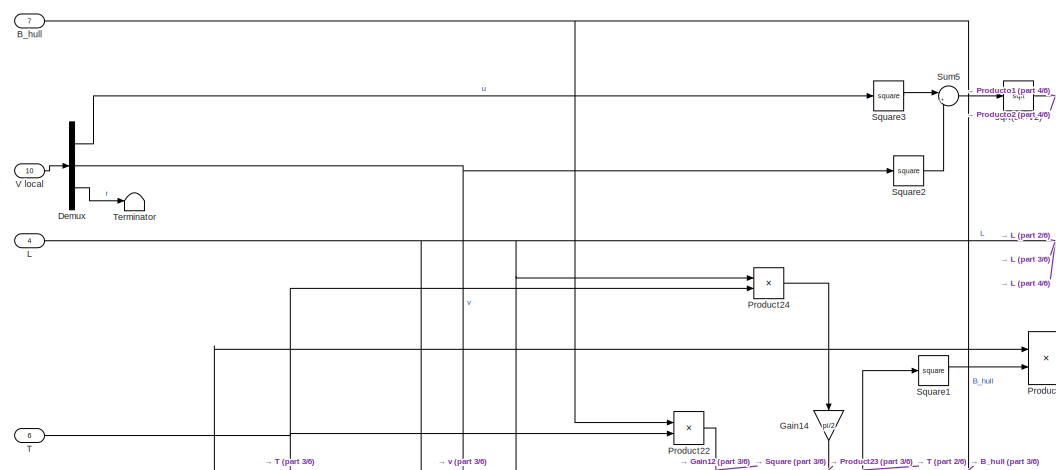
[diagram: dynamik/Dynamic Model1/Hydrodynamic Coefficients - part 1/6, top left region]
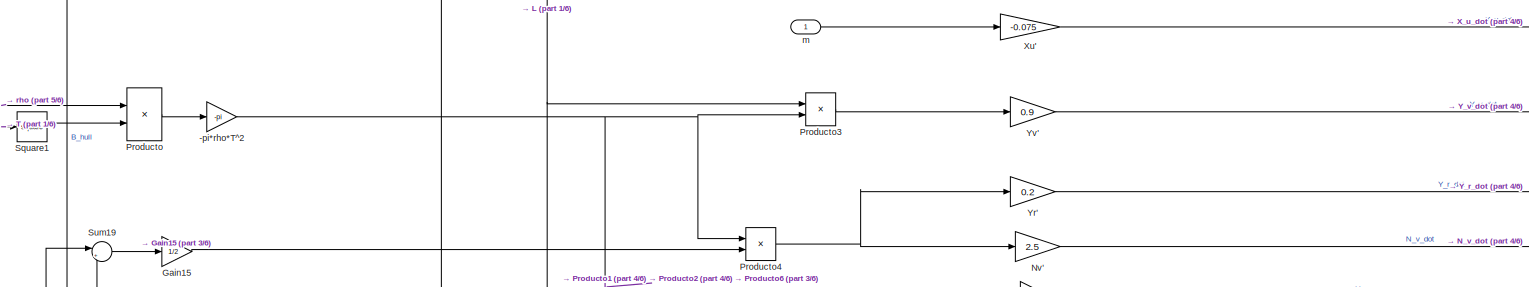
[diagram: dynamik/Dynamic Model1/Hydrodynamic Coefficients - part 2/6, top center region]
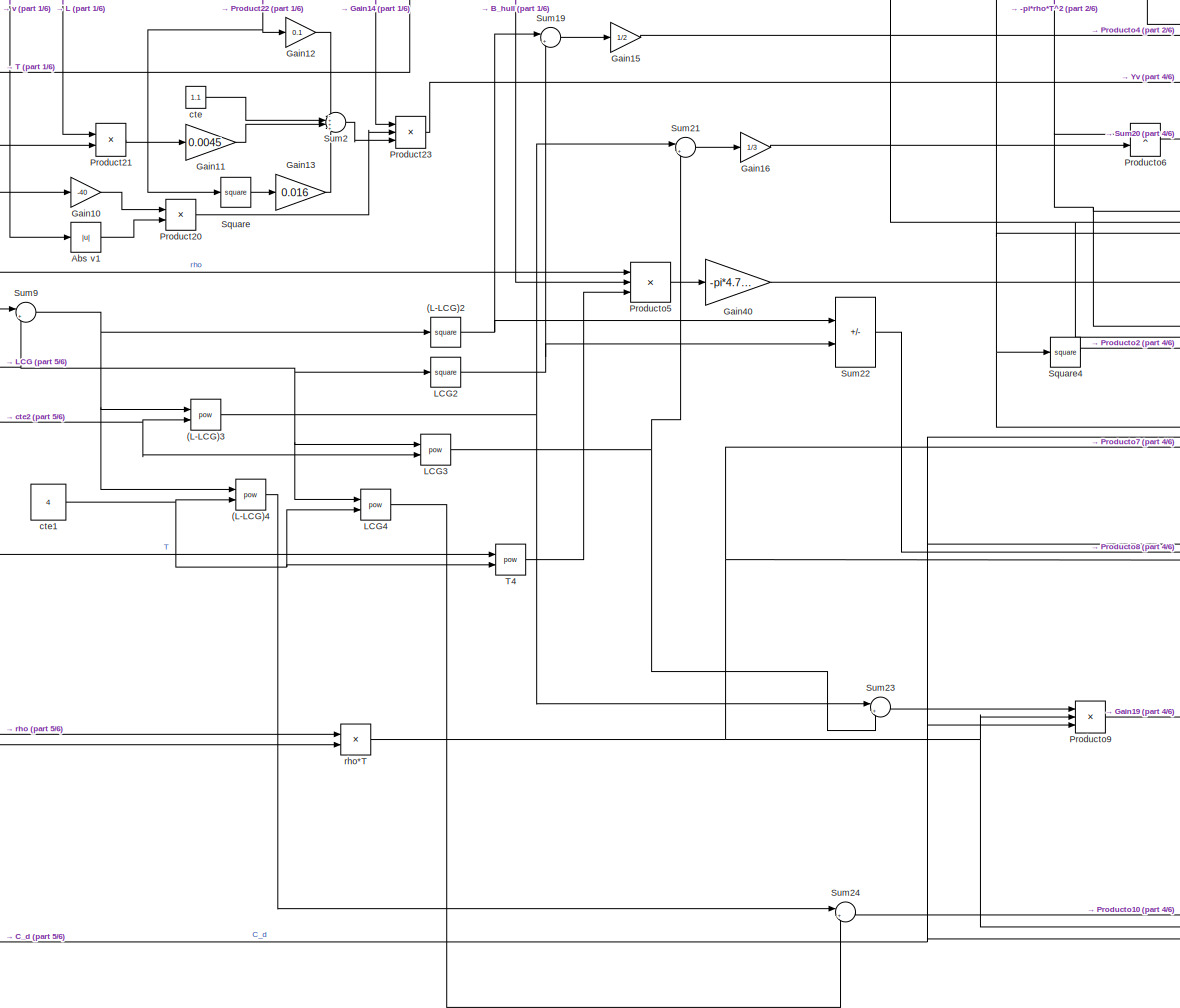
[diagram: dynamik/Dynamic Model1/Hydrodynamic Coefficients - part 3/6, central region]
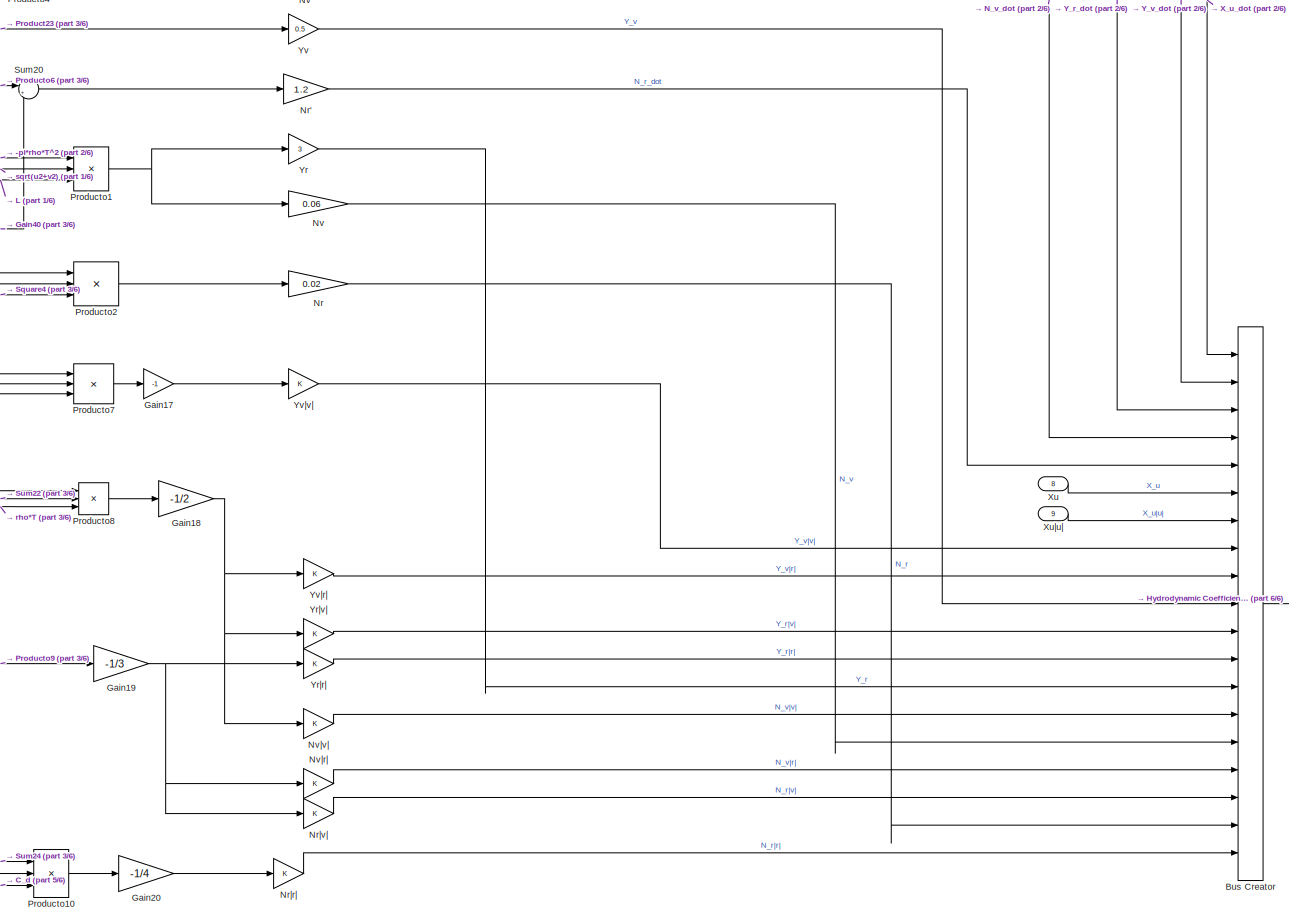
[diagram: dynamik/Dynamic Model1/Hydrodynamic Coefficients - part 4/6, middle right region]
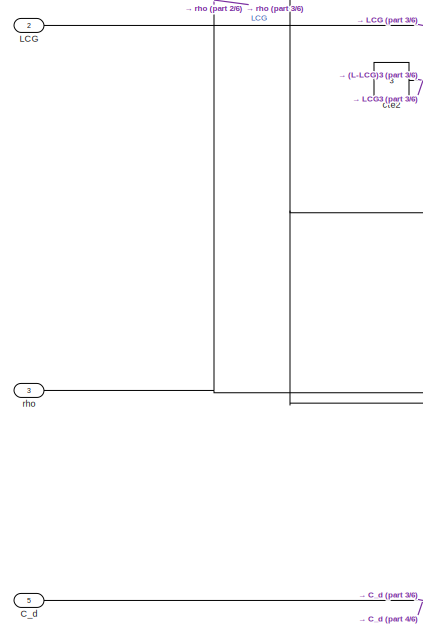
[diagram: dynamik/Dynamic Model1/Hydrodynamic Coefficients - part 5/6, bottom left region]
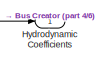
[diagram: dynamik/Dynamic Model1/Hydrodynamic Coefficients - part 6/6, bottom right region]
BLOCK [SubSystem] dynamik/Dynamic Model1/Hydrodynamic Coefficients
  Ports = [10, 1]
  RequestExecContextInheritance = off
BLOCK [Math] dynamik/Dynamic Model1/Hydrodynamic Coefficients/(L-LCG)2
  Operator = square
  Ports = [1, 1]
  SignedPower = on
BLOCK [Math] dynamik/Dynamic Model1/Hydrodynamic Coefficients/(L-LCG)3
  Operator = pow
  Ports = [2, 1]
  SignedPower = on
BLOCK [Math] dynamik/Dynamic Model1/Hydrodynamic Coefficients/(L-LCG)4
  Operator = pow
  Ports = [2, 1]
  SignedPower = on
BLOCK [Gain] dynamik/Dynamic Model1/Hydrodynamic Coefficients/-pi*rho*T^2
  Gain = -pi
BLOCK [Abs] dynamik/Dynamic Model1/Hydrodynamic Coefficients/Abs v1
  SaturateOnIntegerOverflow = off
BLOCK [Inport] dynamik/Dynamic Model1/Hydrodynamic Coefficients/B_hull
  Port = 7
BLOCK [BusCreator] dynamik/Dynamic Model1/Hydrodynamic Coefficients/Bus Creator
  DisplayOption = bar
  InheritFromInputs = on
  Inputs = 19
  Ports = [19, 1]
BLOCK [Inport] dynamik/Dynamic Model1/Hydrodynamic Coefficients/C_d
  Port = 5
BLOCK [Demux] dynamik/Dynamic Model1/Hydrodynamic Coefficients/Demux
  NameLocation = left
  Outputs = 3
  Ports = [1, 3]
BLOCK [Gain] dynamik/Dynamic Model1/Hydrodynamic Coefficients/Gain10
  Gain = -40
BLOCK [Gain] dynamik/Dynamic Model1/Hydrodynamic Coefficients/Gain11
  Gain = 0.0045
BLOCK [Gain] dynamik/Dynamic Model1/Hydrodynamic Coefficients/Gain12
  Gain = 0.1
BLOCK [Gain] dynamik/Dynamic Model1/Hydrodynamic Coefficients/Gain13
  Gain = 0.016
BLOCK [Gain] dynamik/Dynamic Model1/Hydrodynamic Coefficients/Gain14
  Gain = pi/2
  NameLocation = left
BLOCK [Gain] dynamik/Dynamic Model1/Hydrodynamic Coefficients/Gain15
  Gain = 1/2
BLOCK [Gain] dynamik/Dynamic Model1/Hydrodynamic Coefficients/Gain16
  Gain = 1/3
BLOCK [Gain] dynamik/Dynamic Model1/Hydrodynamic Coefficients/Gain17
  Gain = -1
BLOCK [Gain] dynamik/Dynamic Model1/Hydrodynamic Coefficients/Gain18
  Gain = -1/2
BLOCK [Gain] dynamik/Dynamic Model1/Hydrodynamic Coefficients/Gain19
  Gain = -1/3
BLOCK [Gain] dynamik/Dynamic Model1/Hydrodynamic Coefficients/Gain20
  Gain = -1/4
BLOCK [Gain] dynamik/Dynamic Model1/Hydrodynamic Coefficients/Gain40
  Gain = -pi*4.75/4
BLOCK [Outport] dynamik/Dynamic Model1/Hydrodynamic Coefficients/Hydrodynamic Coefficients 
  VectorParamsAs1DForOutWhenUnconnected = off
BLOCK [Inport] dynamik/Dynamic Model1/Hydrodynamic Coefficients/L
  Port = 4
BLOCK [Inport] dynamik/Dynamic Model1/Hydrodynamic Coefficients/LCG
  Port = 2
BLOCK [Math] dynamik/Dynamic Model1/Hydrodynamic Coefficients/LCG2
  Operator = square
  Ports = [1, 1]
  SignedPower = on
BLOCK [Math] dynamik/Dynamic Model1/Hydrodynamic Coefficients/LCG3
  Operator = pow
  Ports = [2, 1]
  SignedPower = on
BLOCK [Math] dynamik/Dynamic Model1/Hydrodynamic Coefficients/LCG4
  Operator = pow
  Ports = [2, 1]
  SignedPower = on
BLOCK [Gain] dynamik/Dynamic Model1/Hydrodynamic Coefficients/Nr
  Gain = 0.02
BLOCK [Gain] dynamik/Dynamic Model1/Hydrodynamic Coefficients/Nr'
  Gain = 1.2
BLOCK [Gain] dynamik/Dynamic Model1/Hydrodynamic Coefficients/Nr|r|
BLOCK [Gain] dynamik/Dynamic Model1/Hydrodynamic Coefficients/Nr|v|
BLOCK [Gain] dynamik/Dynamic Model1/Hydrodynamic Coefficients/Nv
  Gain = 0.06
BLOCK [Gain] dynamik/Dynamic Model1/Hydrodynamic Coefficients/Nv'
  Gain = 2.5
BLOCK [Gain] dynamik/Dynamic Model1/Hydrodynamic Coefficients/Nv|r|
  NameLocation = top
BLOCK [Gain] dynamik/Dynamic Model1/Hydrodynamic Coefficients/Nv|v|
BLOCK [Product] dynamik/Dynamic Model1/Hydrodynamic Coefficients/Product20
  Ports = [2, 1]
BLOCK [Product] dynamik/Dynamic Model1/Hydrodynamic Coefficients/Product21
  Inputs = */
  Ports = [2, 1]
BLOCK [Product] dynamik/Dynamic Model1/Hydrodynamic Coefficients/Product22
  Inputs = */
  Ports = [2, 1]
BLOCK [Product] dynamik/Dynamic Model1/Hydrodynamic Coefficients/Product23
  Inputs = 3
  Ports = [3, 1]
BLOCK [Product] dynamik/Dynamic Model1/Hydrodynamic Coefficients/Product24
  Ports = [2, 1]
BLOCK [Product] dynamik/Dynamic Model1/Hydrodynamic Coefficients/Producto
  Ports = [2, 1]
BLOCK [Product] dynamik/Dynamic Model1/Hydrodynamic Coefficients/Producto1
  Inputs = 3
  Ports = [3, 1]
BLOCK [Product] dynamik/Dynamic Model1/Hydrodynamic Coefficients/Producto10
  Inputs = 3
  Ports = [3, 1]
BLOCK [Product] dynamik/Dynamic Model1/Hydrodynamic Coefficients/Producto2
  Inputs = 3
  Ports = [3, 1]
BLOCK [Product] dynamik/Dynamic Model1/Hydrodynamic Coefficients/Producto3
  Ports = [2, 1]
BLOCK [Product] dynamik/Dynamic Model1/Hydrodynamic Coefficients/Producto4
  Ports = [2, 1]
BLOCK [Product] dynamik/Dynamic Model1/Hydrodynamic Coefficients/Producto5
  Inputs = 3
  Ports = [3, 1]
BLOCK [Product] dynamik/Dynamic Model1/Hydrodynamic Coefficients/Producto6
  Ports = [2, 1]
BLOCK [Product] dynamik/Dynamic Model1/Hydrodynamic Coefficients/Producto7
  Inputs = 3
  Ports = [3, 1]
BLOCK [Product] dynamik/Dynamic Model1/Hydrodynamic Coefficients/Producto8
  Inputs = 3
  Ports = [3, 1]
BLOCK [Product] dynamik/Dynamic Model1/Hydrodynamic Coefficients/Producto9
  Inputs = 3
  Ports = [3, 1]
BLOCK [Math] dynamik/Dynamic Model1/Hydrodynamic Coefficients/Square
  Operator = square
  Ports = [1, 1]
  SignedPower = on
BLOCK [Math] dynamik/Dynamic Model1/Hydrodynamic Coefficients/Square1
  Operator = square
  Ports = [1, 1]
  SignedPower = on
BLOCK [Math] dynamik/Dynamic Model1/Hydrodynamic Coefficients/Square2
  Operator = square
  Ports = [1, 1]
  SignedPower = on
BLOCK [Math] dynamik/Dynamic Model1/Hydrodynamic Coefficients/Square3
  Operator = square
  Ports = [1, 1]
  SignedPower = on
BLOCK [Math] dynamik/Dynamic Model1/Hydrodynamic Coefficients/Square4
  Operator = square
  Ports = [1, 1]
  SignedPower = on
BLOCK [Sum] dynamik/Dynamic Model1/Hydrodynamic Coefficients/Sum19
  Inputs = |++
  Ports = [2, 1]
BLOCK [Sum] dynamik/Dynamic Model1/Hydrodynamic Coefficients/Sum2
  Inputs = -+++
  Ports = [4, 1]
BLOCK [Sum] dynamik/Dynamic Model1/Hydrodynamic Coefficients/Sum20
  Inputs = |++
  Ports = [2, 1]
BLOCK [Sum] dynamik/Dynamic Model1/Hydrodynamic Coefficients/Sum21
  Inputs = |++
  Ports = [2, 1]
BLOCK [Sum] dynamik/Dynamic Model1/Hydrodynamic Coefficients/Sum22
  IconShape = rectangular
  Inputs = |+-
  Ports = [2, 1]
BLOCK [Sum] dynamik/Dynamic Model1/Hydrodynamic Coefficients/Sum23
  Inputs = |++
  Ports = [2, 1]
BLOCK [Sum] dynamik/Dynamic Model1/Hydrodynamic Coefficients/Sum24
  Inputs = |++
  Ports = [2, 1]
BLOCK [Sum] dynamik/Dynamic Model1/Hydrodynamic Coefficients/Sum5
  Inputs = |++
  Ports = [2, 1]
BLOCK [Sum] dynamik/Dynamic Model1/Hydrodynamic Coefficients/Sum9
  Inputs = |+-
  Ports = [2, 1]
BLOCK [Inport] dynamik/Dynamic Model1/Hydrodynamic Coefficients/T
  Port = 6
BLOCK [Math] dynamik/Dynamic Model1/Hydrodynamic Coefficients/T4
  Operator = pow
  Ports = [2, 1]
  SignedPower = on
BLOCK [Terminator] dynamik/Dynamic Model1/Hydrodynamic Coefficients/Terminator
BLOCK [Inport] dynamik/Dynamic Model1/Hydrodynamic Coefficients/V local
  Port = 10
BLOCK [Inport] dynamik/Dynamic Model1/Hydrodynamic Coefficients/Xu
  Port = 8
BLOCK [Gain] dynamik/Dynamic Model1/Hydrodynamic Coefficients/Xu'
  Gain = -0.075
BLOCK [Inport] dynamik/Dynamic Model1/Hydrodynamic Coefficients/Xu|u|
  Port = 9
BLOCK [Gain] dynamik/Dynamic Model1/Hydrodynamic Coefficients/Yr
  Gain = 3
BLOCK [Gain] dynamik/Dynamic Model1/Hydrodynamic Coefficients/Yr'
  Gain = 0.2
BLOCK [Gain] dynamik/Dynamic Model1/Hydrodynamic Coefficients/Yr|r|
BLOCK [Gain] dynamik/Dynamic Model1/Hydrodynamic Coefficients/Yr|v|
  NameLocation = top
BLOCK [Gain] dynamik/Dynamic Model1/Hydrodynamic Coefficients/Yv
  Gain = 0.5
BLOCK [Gain] dynamik/Dynamic Model1/Hydrodynamic Coefficients/Yv'
  Gain = 0.9
BLOCK [Gain] dynamik/Dynamic Model1/Hydrodynamic Coefficients/Yv|r|
  NameLocation = top
BLOCK [Gain] dynamik/Dynamic Model1/Hydrodynamic Coefficients/Yv|v|
BLOCK [Constant] dynamik/Dynamic Model1/Hydrodynamic Coefficients/cte
  Value = 1.1
BLOCK [Constant] dynamik/Dynamic Model1/Hydrodynamic Coefficients/cte1
  Value = 4
BLOCK [Constant] dynamik/Dynamic Model1/Hydrodynamic Coefficients/cte2
  Value = 3
BLOCK [Inport] dynamik/Dynamic Model1/Hydrodynamic Coefficients/m
BLOCK [Inport] dynamik/Dynamic Model1/Hydrodynamic Coefficients/rho
  Port = 3
BLOCK [Product] dynamik/Dynamic Model1/Hydrodynamic Coefficients/rho*T
  Ports = [2, 1]
BLOCK [Sqrt] dynamik/Dynamic Model1/Hydrodynamic Coefficients/sqrt(u2+v2)
BLOCK [Constant] dynamik/Dynamic Model1/L
  Value = 6.9
BLOCK [Constant] dynamik/Dynamic Model1/LCG
  Value = 0.45
BLOCK [Scope] dynamik/Dynamic Model1/Scope
  Floating = off
  NumInputPorts = 1
  Ports = [1]
  ScopeSpecificationString = Simulink.scopes.TimeScopeBlockCfg('CurrentConfiguration', extmgr.ConfigurationSet(extmgr.Configuration('Core','General UI',true),extmgr.Configuration('Core','Source UI',true),extmgr.Configuration('Sources','WiredSimulink',true,'DataLoggingVariableName','ScopeData1'),extmgr.Configuration('Visuals','Time Domain',true,'SerializedDisplays',{struct('MinYLimReal','-1.01735','MaxYLimReal','8.97278','YLab...<+1800ch>
BLOCK [SubSystem] dynamik/Dynamic Model1/Subsystem
  Ports = [9, 15]
  RequestExecContextInheritance = off
BLOCK [Inport] dynamik/Dynamic Model1/Subsystem/B
  Port = 2
BLOCK [Inport] dynamik/Dynamic Model1/Subsystem/B_pont
  Port = 3
BLOCK [Inport] dynamik/Dynamic Model1/Subsystem/L
BLOCK [Outport] dynamik/Dynamic Model1/Subsystem/N_r_abs_r
  Port = 12
BLOCK [Outport] dynamik/Dynamic Model1/Subsystem/N_v
  Port = 15
BLOCK [Outport] dynamik/Dynamic Model1/Subsystem/N_v_abs_r
  Port = 11
BLOCK [Outport] dynamik/Dynamic Model1/Subsystem/N_v_dot
  Port = 6
BLOCK [Outport] dynamik/Dynamic Model1/Subsystem/X_u.
BLOCK [Outport] dynamik/Dynamic Model1/Subsystem/X_u_abs_u
  Port = 7
BLOCK [Outport] dynamik/Dynamic Model1/Subsystem/X_u_dot
  Port = 3
BLOCK [Outport] dynamik/Dynamic Model1/Subsystem/X_uu.
  Port = 2
BLOCK [Constant] dynamik/Dynamic Model1/Subsystem/Xu linear
  Value = 51.3*2.8
BLOCK [Constant] dynamik/Dynamic Model1/Subsystem/Xu poly
  Value = 51.3*2.8
BLOCK [Constant] dynamik/Dynamic Model1/Subsystem/Xu|u| linear
  Value = -72.4/2.8
BLOCK [Constant] dynamik/Dynamic Model1/Subsystem/Xu|u| poly
  Value = -72.4/2.8
BLOCK [Outport] dynamik/Dynamic Model1/Subsystem/Y_r
  Port = 14
BLOCK [Outport] dynamik/Dynamic Model1/Subsystem/Y_r_abs_r
  Port = 9
BLOCK [Outport] dynamik/Dynamic Model1/Subsystem/Y_r_abs_v
  Port = 10
BLOCK [Outport] dynamik/Dynamic Model1/Subsystem/Y_r_dot
  Port = 5
BLOCK [Outport] dynamik/Dynamic Model1/Subsystem/Y_v.
  Port = 13
BLOCK [Outport] dynamik/Dynamic Model1/Subsystem/Y_v_abs_r
  Port = 8
BLOCK [Outport] dynamik/Dynamic Model1/Subsystem/Y_v_dot
  Port = 4
BLOCK [Inport] dynamik/Dynamic Model1/Subsystem/g
  Port = 5
BLOCK [Inport] dynamik/Dynamic Model1/Subsystem/m
  Port = 6
BLOCK [Inport] dynamik/Dynamic Model1/Subsystem/rho
  Port = 9
BLOCK [Inport] dynamik/Dynamic Model1/Subsystem/x_u
  Port = 8
BLOCK [Inport] dynamik/Dynamic Model1/Subsystem/x_uu
  Port = 7
BLOCK [Inport] dynamik/Dynamic Model1/Subsystem/y_pont'
  Port = 4
BLOCK [SubSystem] dynamik/Dynamic Model1/Subsystem5
  Ports = [1, 1]
  RequestExecContextInheritance = off
BLOCK [Reference] dynamik/Dynamic Model1/Subsystem5/ J(n)  REF=sharedutil/Create 3x3 Matrix
  Ports = [9, 1]
  SourceBlock = sharedutil/Create 3x3 Matrix
  SourceProductBaseCode = AE,PW,DR,MT,UV,VE
  SourceType = Create 3x3 Matrix
BLOCK [Constant] dynamik/Dynamic Model1/Subsystem5/Constant1
BLOCK [Constant] dynamik/Dynamic Model1/Subsystem5/Constant2
  Value = 0
BLOCK [Gain] dynamik/Dynamic Model1/Subsystem5/Gain9
  Gain = -1
BLOCK [Outport] dynamik/Dynamic Model1/Subsystem5/J(n)
  VectorParamsAs1DForOutWhenUnconnected = off
BLOCK [Selector] dynamik/Dynamic Model1/Subsystem5/Selector
  IndexOptions = Index vector (dialog)
  Indices = 3
  InputPortWidth = 3
  OutputSizes = 1
  Ports = [1, 1]
BLOCK [Trigonometry] dynamik/Dynamic Model1/Subsystem5/Trigonometric Function
  Ports = [1, 1]
BLOCK [Trigonometry] dynamik/Dynamic Model1/Subsystem5/Trigonometric Function1
  Operator = cos
  Ports = [1, 1]
BLOCK [Inport] dynamik/Dynamic Model1/Subsystem5/psi
BLOCK [Switch] dynamik/Dynamic Model1/Switch
  Criteria = u2 > Threshold
  InputSameDT = off
  SaturateOnIntegerOverflow = off
  Threshold = 1.2
BLOCK [Switch] dynamik/Dynamic Model1/Switch1
  Criteria = u2 > Threshold
  InputSameDT = off
  SaturateOnIntegerOverflow = off
  Threshold = 1.2
BLOCK [Constant] dynamik/Dynamic Model1/T
  Value = 0.09
BLOCK [Terminator] dynamik/Dynamic Model1/Terminator
  NameLocation = top
BLOCK [Terminator] dynamik/Dynamic Model1/Terminator1
  NameLocation = top
BLOCK [Outport] dynamik/Dynamic Model1/V_local
  Port = 2
  VectorParamsAs1DForOutWhenUnconnected = off
BLOCK [Constant] dynamik/Dynamic Model1/Xu linear
  Value = 51.3*2.8
BLOCK [Constant] dynamik/Dynamic Model1/Xu poly
  Value = 51.3*2.8
BLOCK [Constant] dynamik/Dynamic Model1/Xu|u| linear
  Value = -72.4/2.8
BLOCK [Constant] dynamik/Dynamic Model1/Xu|u| poly
  Value = -72.4/2.8
BLOCK [Inport] dynamik/Dynamic Model1/alpha1
  Port = 3
BLOCK [Inport] dynamik/Dynamic Model1/alpha2
  Port = 4
BLOCK [Constant] dynamik/Dynamic Model1/mass
  Value = 775
BLOCK [Integrator] dynamik/Dynamic Model1/n - global
  InitialCondition = [0 0 0]
  Ports = [1, 1]
BLOCK [Product] dynamik/Dynamic Model1/n' - global
  Multiplication = Matrix(*)
  Ports = [2, 1]
BLOCK [Outport] dynamik/Dynamic Model1/n_global
  VectorParamsAs1DForOutWhenUnconnected = off
BLOCK [Constant] dynamik/Dynamic Model1/rho
  Value = 1000
BLOCK [Inport] dynamik/F1
BLOCK [Inport] dynamik/F2
  Port = 2
BLOCK [Integrator] dynamik/Integrator
  Commented = on
  Ports = [1, 1]
BLOCK [Mux] dynamik/Mux
  DisplayOption = bar
  Inputs = 3
  Ports = [3, 1]
BLOCK [Mux] dynamik/Mux1
  DisplayOption = bar
  Inputs = 3
  Ports = [3, 1]
BLOCK [Reference] dynamik/NED-XY1  REF=simulink/Sinks/XY Graph
  Commented = on
  Ports = [2]
  SourceBlock = simulink/Sinks/XY Graph
  SourceProductBaseCode = SL
  SourceType = XY scope.
BLOCK [Reference] dynamik/NED-XY2  REF=simulink/Sinks/XY Graph
  Ports = [2]
  SourceBlock = simulink/Sinks/XY Graph
  SourceProductBaseCode = SL
  SourceType = XY scope.
BLOCK [Scope] dynamik/Scope1
  Commented = on
  Floating = off
  NumInputPorts = 1
  Ports = [1]
  ScopeSpecificationString = Simulink.scopes.TimeScopeBlockCfg('CurrentConfiguration', extmgr.ConfigurationSet(extmgr.Configuration('Core','General UI',true),extmgr.Configuration('Core','Source UI',true),extmgr.Configuration('Sources','WiredSimulink',true,'DataLoggingVariableName','ScopeData1'),extmgr.Configuration('Visuals','Time Domain',true,'SerializedDisplays',{struct('MinYLimReal','-0.01856','MaxYLimReal','0.16708','YLab...<+1443ch>
BLOCK [Scope] dynamik/Scope3
  Floating = off
  NumInputPorts = 1
  Ports = [1]
  ScopeSpecificationString = Simulink.scopes.TimeScopeBlockCfg('CurrentConfiguration', extmgr.ConfigurationSet(extmgr.Configuration('Core','General UI',true),extmgr.Configuration('Core','Source UI',true),extmgr.Configuration('Sources','WiredSimulink',true,'DataLoggingVariableName','ScopeData9'),extmgr.Configuration('Visuals','Time Domain',true,'SerializedDisplays',{struct('MinYLimReal','-3.2642','MaxYLimReal','24.99719','YLab...<+1909ch>
BLOCK [Scope] dynamik/Scope4
  Floating = off
  NumInputPorts = 1
  Ports = [1]
  ScopeSpecificationString = Simulink.scopes.TimeScopeBlockCfg('CurrentConfiguration', extmgr.ConfigurationSet(extmgr.Configuration('Core','General UI',true),extmgr.Configuration('Core','Source UI',true),extmgr.Configuration('Sources','WiredSimulink',true,'DataLoggingVariableName','ScopeData10'),extmgr.Configuration('Visuals','Time Domain',true,'SerializedDisplays',{struct('MinYLimReal','-99.44785','MaxYLimReal','894.99082','...<+2087ch>
BLOCK [Scope] dynamik/Scope6
  Floating = off
  NumInputPorts = 3
  Ports = [3]
  ScopeSpecificationString = Simulink.scopes.TimeScopeBlockCfg('CurrentConfiguration', extmgr.ConfigurationSet(extmgr.Configuration('Core','General UI',true),extmgr.Configuration('Core','Source UI',true),extmgr.Configuration('Sources','WiredSimulink',true,'DataLoggingVariableName','ScopeData12'),extmgr.Configuration('Visuals','Time Domain',true,'SerializedDisplays',{struct('MinYLimReal','-67.98053','MaxYLimReal','611.8248','Y...<+1773ch>
BLOCK [Scope] dynamik/Surge (u)
  Floating = off
  NumInputPorts = 1
  Ports = [1]
  ScopeSpecificationString = Simulink.scopes.TimeScopeBlockCfg('CurrentConfiguration', extmgr.ConfigurationSet(extmgr.Configuration('Core','General UI',true),extmgr.Configuration('Core','Source UI',true),extmgr.Configuration('Sources','WiredSimulink',true,'DataLoggingVariableName','ScopeData8'),extmgr.Configuration('Visuals','Time Domain',true,'SerializedDisplays',{struct('MinYLimReal','-0.25367','MaxYLimReal','2.28305','YLab...<+1721ch>
BLOCK [Scope] dynamik/Surge Speed1
  Commented = on
  Floating = off
  NumInputPorts = 1
  Ports = [1]
  ScopeSpecificationString = Simulink.scopes.TimeScopeBlockCfg('CurrentConfiguration', extmgr.ConfigurationSet(extmgr.Configuration('Core','General UI',true),extmgr.Configuration('Core','Source UI',true),extmgr.Configuration('Sources','WiredSimulink',true,'DataLoggingVariableName','ScopeData2'),extmgr.Configuration('Visuals','Time Domain',true,'SerializedDisplays',{struct('MinYLimReal','-0.98896','MaxYLimReal','8.90065','YLab...<+1439ch>
BLOCK [Scope] dynamik/Sway (v)
  Floating = off
  NumInputPorts = 1
  Ports = [1]
  ScopeSpecificationString = Simulink.scopes.TimeScopeBlockCfg('CurrentConfiguration', extmgr.ConfigurationSet(extmgr.Configuration('Core','General UI',true),extmgr.Configuration('Core','Source UI',true),extmgr.Configuration('Sources','WiredSimulink',true,'DataLoggingVariableName','ScopeData13'),extmgr.Configuration('Visuals','Time Domain',true,'SerializedDisplays',{struct('MinYLimReal','-1.00000','MaxYLimReal','1.00000','YLa...<+1702ch>
BLOCK [SubSystem] dynamik/Triggered Subsystem
  Ports = [5, 2]
  RequestExecContextInheritance = off
  TreatAsAtomicUnit = on
BLOCK [Demux] dynamik/Triggered Subsystem/Demux
  Outputs = 12
  Ports = [1, 12]
BLOCK [Inport] dynamik/Triggered Subsystem/F_1
  Port = 2
BLOCK [Inport] dynamik/Triggered Subsystem/F_2
  Port = 3
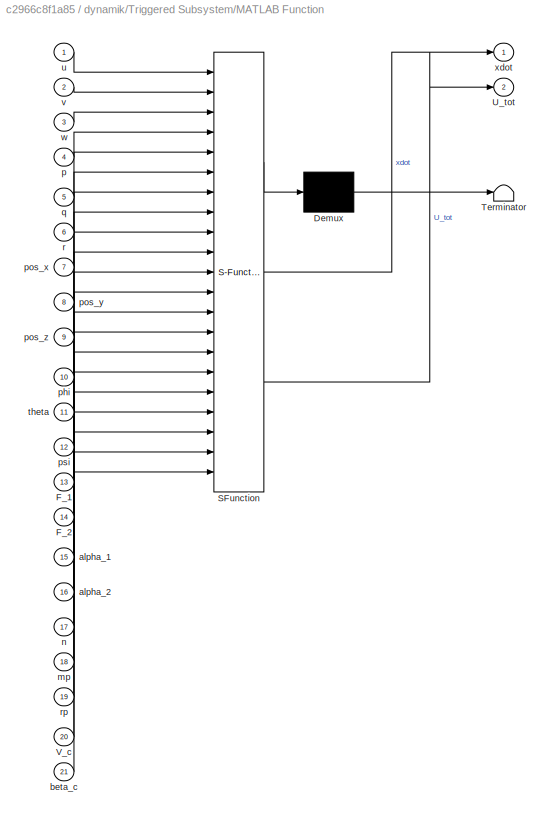
BLOCK [SubSystem] dynamik/Triggered Subsystem/MATLAB Function
  Commented = on
  ErrorFcn = Stateflow.Translate.translate
  PermitHierarchicalResolution = ExplicitOnly
  Ports = [21, 2]
  RequestExecContextInheritance = off
  SFBlockType = MATLAB Function
  TreatAsAtomicUnit = on
BLOCK [Demux] dynamik/Triggered Subsystem/MATLAB Function/ Demux 
  Outputs = 1
  Ports = [1, 1]
BLOCK [S-Function] dynamik/Triggered Subsystem/MATLAB Function/ SFunction 
  EnableBusSupport = on
  FunctionName = sf_sfun
  PortCounts = [21 3]
  Ports = [21, 3]
  SFcnIsStateOwnerBlock = off
  SFunctionDeploymentMode = off
  Tag = Stateflow S-Function 12
BLOCK [Terminator] dynamik/Triggered Subsystem/MATLAB Function/ Terminator 
BLOCK [Inport] dynamik/Triggered Subsystem/MATLAB Function/F_1
  Port = 13
BLOCK [Inport] dynamik/Triggered Subsystem/MATLAB Function/F_2
  Port = 14
BLOCK [Outport] dynamik/Triggered Subsystem/MATLAB Function/U_tot
  Port = 2
BLOCK [Inport] dynamik/Triggered Subsystem/MATLAB Function/V_c
  Port = 20
BLOCK [Inport] dynamik/Triggered Subsystem/MATLAB Function/alpha_1
  Port = 15
BLOCK [Inport] dynamik/Triggered Subsystem/MATLAB Function/alpha_2
  Port = 16
BLOCK [Inport] dynamik/Triggered Subsystem/MATLAB Function/beta_c
  Port = 21
BLOCK [Inport] dynamik/Triggered Subsystem/MATLAB Function/mp
  Port = 18
BLOCK [Inport] dynamik/Triggered Subsystem/MATLAB Function/n
  Port = 17
BLOCK [Inport] dynamik/Triggered Subsystem/MATLAB Function/p
  Port = 4
BLOCK [Inport] dynamik/Triggered Subsystem/MATLAB Function/phi
  Port = 10
BLOCK [Inport] dynamik/Triggered Subsystem/MATLAB Function/pos_x
  Port = 7
BLOCK [Inport] dynamik/Triggered Subsystem/MATLAB Function/pos_y
  Port = 8
BLOCK [Inport] dynamik/Triggered Subsystem/MATLAB Function/pos_z
  Port = 9
BLOCK [Inport] dynamik/Triggered Subsystem/MATLAB Function/psi
  Port = 12
BLOCK [Inport] dynamik/Triggered Subsystem/MATLAB Function/q
  Port = 5
BLOCK [Inport] dynamik/Triggered Subsystem/MATLAB Function/r
  Port = 6
BLOCK [Inport] dynamik/Triggered Subsystem/MATLAB Function/rp
  Port = 19
BLOCK [Inport] dynamik/Triggered Subsystem/MATLAB Function/theta
  Port = 11
BLOCK [Inport] dynamik/Triggered Subsystem/MATLAB Function/u
BLOCK [Inport] dynamik/Triggered Subsystem/MATLAB Function/v
  Port = 2
BLOCK [Inport] dynamik/Triggered Subsystem/MATLAB Function/w
  Port = 3
BLOCK [Outport] dynamik/Triggered Subsystem/MATLAB Function/xdot
BLOCK [SubSystem] dynamik/Triggered Subsystem/MATLAB Function1
  ErrorFcn = Stateflow.Translate.translate
  PermitHierarchicalResolution = ExplicitOnly
  Ports = [21, 2]
  RequestExecContextInheritance = off
  SFBlockType = MATLAB Function
  TreatAsAtomicUnit = on
BLOCK [Demux] dynamik/Triggered Subsystem/MATLAB Function1/ Demux 
  Outputs = 1
  Ports = [1, 1]
BLOCK [S-Function] dynamik/Triggered Subsystem/MATLAB Function1/ SFunction 
  EnableBusSupport = on
  FunctionName = sf_sfun
  PortCounts = [21 3]
  Ports = [21, 3]
  SFcnIsStateOwnerBlock = off
  SFunctionDeploymentMode = off
  Tag = Stateflow S-Function 13
BLOCK [Terminator] dynamik/Triggered Subsystem/MATLAB Function1/ Terminator 
BLOCK [Inport] dynamik/Triggered Subsystem/MATLAB Function1/F_1
  Port = 18
BLOCK [Inport] dynamik/Triggered Subsystem/MATLAB Function1/F_2
  Port = 19
BLOCK [Outport] dynamik/Triggered Subsystem/MATLAB Function1/U_tot
  Port = 2
BLOCK [Inport] dynamik/Triggered Subsystem/MATLAB Function1/V_c
  Port = 16
BLOCK [Inport] dynamik/Triggered Subsystem/MATLAB Function1/alpha_1
  Port = 20
BLOCK [Inport] dynamik/Triggered Subsystem/MATLAB Function1/alpha_2
  Port = 21
BLOCK [Inport] dynamik/Triggered Subsystem/MATLAB Function1/beta_c
  Port = 17
BLOCK [Inport] dynamik/Triggered Subsystem/MATLAB Function1/mp
  Port = 14
BLOCK [Inport] dynamik/Triggered Subsystem/MATLAB Function1/n
  Port = 13
BLOCK [Inport] dynamik/Triggered Subsystem/MATLAB Function1/p
  Port = 4
BLOCK [Inport] dynamik/Triggered Subsystem/MATLAB Function1/phi
  Port = 10
BLOCK [Inport] dynamik/Triggered Subsystem/MATLAB Function1/psi
  Port = 12
BLOCK [Inport] dynamik/Triggered Subsystem/MATLAB Function1/q
  Port = 5
BLOCK [Inport] dynamik/Triggered Subsystem/MATLAB Function1/r
  Port = 6
BLOCK [Inport] dynamik/Triggered Subsystem/MATLAB Function1/rp
  Port = 15
BLOCK [Inport] dynamik/Triggered Subsystem/MATLAB Function1/theta
  Port = 11
BLOCK [Inport] dynamik/Triggered Subsystem/MATLAB Function1/u
BLOCK [Inport] dynamik/Triggered Subsystem/MATLAB Function1/v
  Port = 2
BLOCK [Inport] dynamik/Triggered Subsystem/MATLAB Function1/w
  Port = 3
BLOCK [Inport] dynamik/Triggered Subsystem/MATLAB Function1/x
  Port = 7
BLOCK [Outport] dynamik/Triggered Subsystem/MATLAB Function1/xdot
BLOCK [Inport] dynamik/Triggered Subsystem/MATLAB Function1/y
  Port = 8
BLOCK [Inport] dynamik/Triggered Subsystem/MATLAB Function1/z
  Port = 9
BLOCK [Outport] dynamik/Triggered Subsystem/U_tot
  Port = 2
BLOCK [Inport] dynamik/Triggered Subsystem/alpha_1
  Port = 4
BLOCK [Inport] dynamik/Triggered Subsystem/alpha_2
  Port = 5
BLOCK [Constant] dynamik/Triggered Subsystem/current vel
  Value = 0
BLOCK [Constant] dynamik/Triggered Subsystem/diretion of current
  Value = 0
BLOCK [Constant] dynamik/Triggered Subsystem/location of payload
  Value = [0 0 -0.1]'
BLOCK [Constant] dynamik/Triggered Subsystem/n rpm
  Value = [0 0]'
BLOCK [Constant] dynamik/Triggered Subsystem/payload
  Value = 0
BLOCK [Inport] dynamik/Triggered Subsystem/x_in
BLOCK [Outport] dynamik/Triggered Subsystem/xdot
BLOCK [Scope] dynamik/U_tot
  Floating = off
  NumInputPorts = 1
  Ports = [1]
  ScopeSpecificationString = Simulink.scopes.TimeScopeBlockCfg('CurrentConfiguration', extmgr.ConfigurationSet(extmgr.Configuration('Core','General UI',true),extmgr.Configuration('Core','Source UI',true),extmgr.Configuration('Sources','WiredSimulink',true,'DataLoggingVariableName','ScopeData11'),extmgr.Configuration('Visuals','Time Domain',true,'SerializedDisplays',{struct('MinYLimReal','-0.55994','MaxYLimReal','5.03948','YLa...<+1410ch>
BLOCK [Outport] dynamik/V_local
  Port = 2
BLOCK [Scope] dynamik/Yaw (psi)
  Floating = off
  NumInputPorts = 1
  Ports = [1]
  ScopeSpecificationString = Simulink.scopes.TimeScopeBlockCfg('CurrentConfiguration', extmgr.ConfigurationSet(extmgr.Configuration('Core','General UI',true),extmgr.Configuration('Core','Source UI',true),extmgr.Configuration('Sources','WiredSimulink',true,'DataLoggingVariableName','ScopeData14'),extmgr.Configuration('Visuals','Time Domain',true,'SerializedDisplays',{struct('MinYLimReal','-1.00000','MaxYLimReal','1.00000','YLa...<+1422ch>
BLOCK [Scope] dynamik/Yaw rate1
  Commented = on
  Floating = off
  NumInputPorts = 1
  Ports = [1]
  ScopeSpecificationString = Simulink.scopes.TimeScopeBlockCfg('CurrentConfiguration', extmgr.ConfigurationSet(extmgr.Configuration('Core','General UI',true),extmgr.Configuration('Core','Source UI',true),extmgr.Configuration('Sources','WiredSimulink',true,'DataLoggingVariableName','ScopeData3'),extmgr.Configuration('Visuals','Time Domain',true,'SerializedDisplays',{struct('MinYLimReal','-0.15887','MaxYLimReal','0.01765','YLab...<+1442ch>
BLOCK [Scope] dynamik/Yaw1
  Commented = on
  Floating = off
  NumInputPorts = 1
  Ports = [1]
  ScopeSpecificationString = Simulink.scopes.TimeScopeBlockCfg('CurrentConfiguration', extmgr.ConfigurationSet(extmgr.Configuration('Core','General UI',true),extmgr.Configuration('Core','Source UI',true),extmgr.Configuration('Sources','WiredSimulink',true,'DataLoggingVariableName','ScopeData4'),extmgr.Configuration('Visuals','Time Domain',true,'SerializedDisplays',{struct('MinYLimReal','-31.11584','MaxYLimReal','3.45732','YLa...<+1748ch>
BLOCK [Inport] dynamik/alpha1
  Port = 3
BLOCK [Inport] dynamik/alpha2
  Port = 4
BLOCK [Outport] dynamik/global_n
BLOCK [Gain] dynamik/h
  Gain = 0.02
  NameLocation = left
BLOCK [Scope] dynamik/psi_dot
  Floating = off
  NumInputPorts = 1
  Ports = [1]
  ScopeSpecificationString = Simulink.scopes.TimeScopeBlockCfg('CurrentConfiguration', extmgr.ConfigurationSet(extmgr.Configuration('Core','General UI',true),extmgr.Configuration('Core','Source UI',true),extmgr.Configuration('Sources','WiredSimulink',true,'DataLoggingVariableName','ScopeData7'),extmgr.Configuration('Visuals','Time Domain',true,'SerializedDisplays',{struct('MinYLimReal','-0.00000006','MaxYLimReal','0.00000019'...<+1438ch>
BLOCK [Scope] dynamik/u_dot
  Floating = off
  NumInputPorts = 1
  Ports = [1]
  ScopeSpecificationString = Simulink.scopes.TimeScopeBlockCfg('CurrentConfiguration', extmgr.ConfigurationSet(extmgr.Configuration('Core','General UI',true),extmgr.Configuration('Core','Source UI',true),extmgr.Configuration('Sources','WiredSimulink',true,'DataLoggingVariableName','ScopeData5'),extmgr.Configuration('Visuals','Time Domain',true,'SerializedDisplays',{struct('MinYLimReal','-0.14262','MaxYLimReal','1.38682','YLab...<+1442ch>
BLOCK [Scope] dynamik/v_dot
  Floating = off
  NumInputPorts = 1
  Ports = [1]
  ScopeSpecificationString = Simulink.scopes.TimeScopeBlockCfg('CurrentConfiguration', extmgr.ConfigurationSet(extmgr.Configuration('Core','General UI',true),extmgr.Configuration('Core','Source UI',true),extmgr.Configuration('Sources','WiredSimulink',true,'DataLoggingVariableName','ScopeData6'),extmgr.Configuration('Visuals','Time Domain',true,'SerializedDisplays',{struct('MinYLimReal','0.23964','MaxYLimReal','0.2606','YLabel...<+1436ch>
BLOCK [Gain] knob to m//s
  Gain = 0.5144
BLOCK [Gain] knob to m//s1
  Gain = 0.5144
BLOCK [SubSystem] limmitter and angle//thrust 
  ErrorFcn = Stateflow.Translate.translate
  PermitHierarchicalResolution = ExplicitOnly
  Ports = [4, 4]
  RequestExecContextInheritance = off
  SFBlockType = MATLAB Function
  TreatAsAtomicUnit = on
BLOCK [Demux] limmitter and angle//thrust / Demux 
  Outputs = 1
  Ports = [1, 1]
BLOCK [S-Function] limmitter and angle//thrust / SFunction 
  EnableBusSupport = on
  FunctionName = sf_sfun
  PortCounts = [4 5]
  Ports = [4, 5]
  SFcnIsStateOwnerBlock = off
  SFunctionDeploymentMode = off
  Tag = Stateflow S-Function 1
BLOCK [Terminator] limmitter and angle//thrust / Terminator 
BLOCK [Outport] limmitter and angle//thrust /F1
BLOCK [Outport] limmitter and angle//thrust /F2
  Port = 2
BLOCK [Inport] limmitter and angle//thrust /F_1
BLOCK [Inport] limmitter and angle//thrust /F_2
  Port = 2
BLOCK [Outport] limmitter and angle//thrust /alpha1
  Port = 3
BLOCK [Outport] limmitter and angle//thrust /alpha2
  Port = 4
BLOCK [Inport] limmitter and angle//thrust /alpha_in_1
  Port = 3
BLOCK [Inport] limmitter and angle//thrust /alpha_in_2
  Port = 4
BLOCK [SubSystem] mixer
  Ports = [3, 4]
  RequestExecContextInheritance = off
BLOCK [Outport] mixer/F1
BLOCK [Outport] mixer/F2
  Port = 2
BLOCK [Inport] mixer/Fx
BLOCK [Inport] mixer/Fy
  Port = 2
BLOCK [SubSystem] mixer/MATLAB Function
  ErrorFcn = Stateflow.Translate.translate
  PermitHierarchicalResolution = ExplicitOnly
  Ports = [4, 4]
  RequestExecContextInheritance = off
  SFBlockType = MATLAB Function
  TreatAsAtomicUnit = on
BLOCK [Demux] mixer/MATLAB Function/ Demux 
  Outputs = 1
  Ports = [1, 1]
BLOCK [S-Function] mixer/MATLAB Function/ SFunction 
  EnableBusSupport = on
  FunctionName = sf_sfun
  PortCounts = [4 5]
  Ports = [4, 5]
  SFcnIsStateOwnerBlock = off
  SFunctionDeploymentMode = off
  Tag = Stateflow S-Function 19
BLOCK [Terminator] mixer/MATLAB Function/ Terminator 
BLOCK [Outport] mixer/MATLAB Function/F_1
BLOCK [Outport] mixer/MATLAB Function/F_2
  Port = 2
BLOCK [Inport] mixer/MATLAB Function/F_x
BLOCK [Inport] mixer/MATLAB Function/F_y
  Port = 2
BLOCK [Outport] mixer/MATLAB Function/alpha1
  Port = 3
BLOCK [Outport] mixer/MATLAB Function/alpha2
  Port = 4
BLOCK [Inport] mixer/MATLAB Function/d
  Port = 4
BLOCK [Inport] mixer/MATLAB Function/tau
  Port = 3
BLOCK [Outport] mixer/alpha_1
  Port = 3
BLOCK [Outport] mixer/alpha_2
  Port = 4
BLOCK [Constant] mixer/d
  Value = 1.3395
BLOCK [Inport] mixer/tau
  Port = 3
BLOCK [Constant] n_global_test
  Value = [0 0 2]'
BLOCK [TransferFcn] pod rotation
  Denominator = [0.5 1]
BLOCK [Outport] psi_global
BLOCK [Scope] r
  Floating = off
  NumInputPorts = 1
  Ports = [1]
  ScopeSpecificationString = Simulink.scopes.TimeScopeBlockCfg('CurrentConfiguration', extmgr.ConfigurationSet(extmgr.Configuration('Core','General UI',true),extmgr.Configuration('Core','Source UI',true),extmgr.Configuration('Sources','WiredSimulink',true,'DataLoggingVariableName','ScopeData8'),extmgr.Configuration('Visuals','Time Domain',true,'SerializedDisplays',{struct('MinYLimReal','-1.00000','MaxYLimReal','1.00000','YLab...<+1443ch>
BLOCK [Constant] ref_psi_test
  Value = 0
BLOCK [Constant] ref_u
  Value = 4
BLOCK [Constant] ref_v
  Value = 2
BLOCK [Saturate] satuations +//-1000 
  LowerLimit = -1000
  UpperLimit = 1000
BLOCK [Gain] tau_input2
  Gain = 5450
BLOCK [Scope] u
  Floating = off
  NumInputPorts = 1
  Ports = [1]
  ScopeSpecificationString = Simulink.scopes.TimeScopeBlockCfg('CurrentConfiguration', extmgr.ConfigurationSet(extmgr.Configuration('Core','General UI',true),extmgr.Configuration('Core','Source UI',true),extmgr.Configuration('Sources','WiredSimulink',true,'DataLoggingVariableName','ScopeData9'),extmgr.Configuration('Visuals','Time Domain',true,'SerializedDisplays',{struct('MinYLimReal','1.79977','MaxYLimReal','2.12239','YLabe...<+1740ch>
BLOCK [Gain] u_input
BLOCK [Gain] u_output
BLOCK [Scope] v
  Floating = off
  NumInputPorts = 1
  Ports = [1]
  ScopeSpecificationString = Simulink.scopes.TimeScopeBlockCfg('CurrentConfiguration', extmgr.ConfigurationSet(extmgr.Configuration('Core','General UI',true),extmgr.Configuration('Core','Source UI',true),extmgr.Configuration('Sources','WiredSimulink',true,'DataLoggingVariableName','ScopeData10'),extmgr.Configuration('Visuals','Time Domain',true,'SerializedDisplays',{struct('MinYLimReal','-1.00000','MaxYLimReal','1.00000','YLa...<+1445ch>
BLOCK [Gain] v_input
BLOCK [Gain] v_output
BLOCK [SubSystem] vel to thrust (Fx)
  ErrorFcn = Stateflow.Translate.translate
  PermitHierarchicalResolution = ExplicitOnly
  Ports = [1, 1]
  RequestExecContextInheritance = off
  SFBlockType = MATLAB Function
  TreatAsAtomicUnit = on
BLOCK [Demux] vel to thrust (Fx)/ Demux 
  Outputs = 1
  Ports = [1, 1]
BLOCK [S-Function] vel to thrust (Fx)/ SFunction 
  EnableBusSupport = on
  FunctionName = sf_sfun
  PortCounts = [1 2]
  Ports = [1, 2]
  SFcnIsStateOwnerBlock = off
  SFunctionDeploymentMode = off
  Tag = Stateflow S-Function 15
BLOCK [Terminator] vel to thrust (Fx)/ Terminator 
BLOCK [Outport] vel to thrust (Fx)/Fx
BLOCK [Inport] vel to thrust (Fx)/u_con
BLOCK [SubSystem] vel to thrust (Fy)
  ErrorFcn = Stateflow.Translate.translate
  PermitHierarchicalResolution = ExplicitOnly
  Ports = [1, 1]
  RequestExecContextInheritance = off
  SFBlockType = MATLAB Function
  TreatAsAtomicUnit = on
BLOCK [Demux] vel to thrust (Fy)/ Demux 
  Outputs = 1
  Ports = [1, 1]
BLOCK [S-Function] vel to thrust (Fy)/ SFunction 
  EnableBusSupport = on
  FunctionName = sf_sfun
  PortCounts = [1 2]
  Ports = [1, 2]
  SFcnIsStateOwnerBlock = off
  SFunctionDeploymentMode = off
  Tag = Stateflow S-Function 18
BLOCK [Terminator] vel to thrust (Fy)/ Terminator 
BLOCK [Outport] vel to thrust (Fy)/Fy
BLOCK [Inport] vel to thrust (Fy)/v
BLOCK [Scope] x_pos
  Floating = off
  NumInputPorts = 1
  Ports = [1]
  ScopeSpecificationString = Simulink.scopes.TimeScopeBlockCfg('CurrentConfiguration', extmgr.ConfigurationSet(extmgr.Configuration('Core','General UI',true),extmgr.Configuration('Core','Source UI',true),extmgr.Configuration('Sources','WiredSimulink',true,'DataLoggingVariableName','ScopeData11'),extmgr.Configuration('Visuals','Time Domain',true,'SerializedDisplays',{struct('MinYLimReal','-39.94878','MaxYLimReal','4.43875','YL...<+1422ch>
BLOCK [Scope] y_pos
  Floating = off
  NumInputPorts = 1
  Ports = [1]
  ScopeSpecificationString = Simulink.scopes.TimeScopeBlockCfg('CurrentConfiguration', extmgr.ConfigurationSet(extmgr.Configuration('Core','General UI',true),extmgr.Configuration('Core','Source UI',true),extmgr.Configuration('Sources','WiredSimulink',true,'DataLoggingVariableName','ScopeData12'),extmgr.Configuration('Visuals','Time Domain',true,'SerializedDisplays',{struct('MinYLimReal','-32.36593','MaxYLimReal','291.29337','...<+1431ch>
BLOCK [Gain] yaw_output
ANNOTATION dynamik: x = [ u v w p q r x y z phi theta psi ]'
ANNOTATION dynamik/Dynamic Model1/Construct Matrices: V_dot_local
ANNOTATION dynamik/Triggered Subsystem: x = [ u v w p q r x y z phi theta psi ]'
LINE Add:1 -> PID Controller:1
LINE Band-Limited White Noise1:1 -> Sum1:2
LINE Band-Limited White Noise2:1 -> Sum2:2
LINE Band-Limited White Noise:1 -> Sum:2
LINE Constant10:1 -> Switch2:2
LINE Constant11:1 -> Switch2:3
LINE Constant1:1 -> Gain3:1
LINE Constant3:1 -> Gain1:1
LINE Constant4:1 -> Switch:2
LINE Constant5:1 -> Switch:3
LINE Constant6:1 -> Sum1:1
LINE Constant7:1 -> Switch1:2
LINE Constant8:1 -> Switch1:3
LINE Constant9:1 -> Sum2:1
LINE Demux1:1 -> u_output:1
LINE Demux1:2 -> v_output:1
NET Demux1:3 -> To Workspace6:1, r:1
LINE Demux:1 -> x_pos:1
LINE Demux:2 -> y_pos:1
NET Demux:3 -> To Workspace:1, psi_global:1, yaw_output:1
LINE Gain1:1 -> Sum:1
NET MATLAB Function1:1 -> Scope5:1, mixer:2
NET MATLAB Function:1 -> Scope4:1, mixer:1
LINE PID Controller:1 -> Gain:1
LINE Pulse Generator:1 -> Scope1:1
NET Saturation:1 -> F1:3, Scope:1, dynamik:1
NET Step:1 -> Add:1, Transfer Fcn:1
LINE Subsystem/In1:1 -> Subsystem/Out1:1
LINE Sum1:1 -> Switch1:1
LINE Sum2:1 -> Switch2:1
LINE Sum:1 -> Switch:1
NET Switch1:1 -> To Workspace2:1, v_input:1
NET Switch2:1 -> To Workspace3:1, u_input:1
NET Switch:1 -> To Workspace1:1, tau_input2:1
NET Transfer Fcn2:1 -> alpha_out:1, dynamik:3
NET Transfer Fcn:1 -> Add:2, Scope2:1
LINE controllers/Constant2:1 -> controllers/Switch2:3
LINE controllers/Constant3:1 -> controllers/Switch3:3
LINE controllers/Gain2:1 -> controllers/Switch2:1
LINE controllers/Gain3:1 -> controllers/Switch3:1
LINE controllers/Global n:1 -> controllers/PIDs:1
LINE controllers/Local V:1 -> controllers/PIDs:3
NET controllers/PIDs/Constant2:1 -> controllers/PIDs/Switch2:3, controllers/PIDs/Switch3:3
LINE controllers/PIDs/Demux1:1 -> controllers/PIDs/PID Surge:2
LINE controllers/PIDs/Demux1:2 -> controllers/PIDs/PID Sway:1
LINE controllers/PIDs/Demux1:3 -> controllers/PIDs/PID Sway1:1
LINE controllers/PIDs/Demux2:1 -> controllers/PIDs/Terminator4:1
LINE controllers/PIDs/Demux2:2 -> controllers/PIDs/Terminator5:1
LINE controllers/PIDs/Demux2:3 -> controllers/PIDs/Sum3:2
LINE controllers/PIDs/Demux3:1 -> controllers/PIDs/Sum2:2
LINE controllers/PIDs/Demux3:2 -> controllers/PIDs/Terminator7:1
LINE controllers/PIDs/Demux3:3 -> controllers/PIDs/Terminator6:1
LINE controllers/PIDs/Demux:1 -> controllers/PIDs/Terminator:1
LINE controllers/PIDs/Demux:2 -> controllers/PIDs/Terminator1:1
LINE controllers/PIDs/Gain:1 -> controllers/PIDs/Scope:1
LINE controllers/PIDs/PID Controller2:1 -> controllers/PIDs/Switch2:1
LINE controllers/PIDs/PID Controller3:1 -> controllers/PIDs/Switch3:1
LINE controllers/PIDs/PID Surge/Derivative:1 -> controllers/PIDs/PID Surge/tau_d:1
LINE controllers/PIDs/PID Surge/Integrator Limited:1 -> controllers/PIDs/PID Surge/Sum5:1
LINE controllers/PIDs/PID Surge/Kp:1 -> controllers/PIDs/PID Surge/Sum5:2
LINE controllers/PIDs/PID Surge/Sum5:1 -> controllers/PIDs/PID Surge/sig_u:1
NET controllers/PIDs/PID Surge/Sum6:1 -> controllers/PIDs/PID Surge/Kp:1, controllers/PIDs/PID Surge/tau_i:1
LINE controllers/PIDs/PID Surge/ref_u_:1 -> controllers/PIDs/PID Surge/Sum6:1
LINE controllers/PIDs/PID Surge/tau_d:1 -> controllers/PIDs/PID Surge/Sum6:2
LINE controllers/PIDs/PID Surge/tau_i:1 -> controllers/PIDs/PID Surge/Integrator Limited:1
LINE controllers/PIDs/PID Surge/u:1 -> controllers/PIDs/PID Surge/Derivative:1
LINE controllers/PIDs/PID Surge:1 -> controllers/PIDs/sig_u:1
LINE controllers/PIDs/PID Sway/Derivative1:1 -> controllers/PIDs/PID Sway/tau_d1:1
LINE controllers/PIDs/PID Sway/Integrator1:1 -> controllers/PIDs/PID Sway/tau_i:1
LINE controllers/PIDs/PID Sway/Kp:1 -> controllers/PIDs/PID Sway/Sum7:2
LINE controllers/PIDs/PID Sway/Sum7:1 -> controllers/PIDs/PID Sway/sig_v:1
NET controllers/PIDs/PID Sway/Sum8:1 -> controllers/PIDs/PID Sway/Integrator1:1, controllers/PIDs/PID Sway/Kp:1
LINE controllers/PIDs/PID Sway/ref_v_:1 -> controllers/PIDs/PID Sway/Sum8:1
LINE controllers/PIDs/PID Sway/tau_d1:1 -> controllers/PIDs/PID Sway/Sum8:2
LINE controllers/PIDs/PID Sway/tau_i:1 -> controllers/PIDs/PID Sway/Sum7:1
LINE controllers/PIDs/PID Sway/v:1 -> controllers/PIDs/PID Sway/Derivative1:1
LINE controllers/PIDs/PID Sway1/Derivative1:1 -> controllers/PIDs/PID Sway1/tau_d:1
LINE controllers/PIDs/PID Sway1/Integrator1:1 -> controllers/PIDs/PID Sway1/tau_i:1
LINE controllers/PIDs/PID Sway1/Kp:1 -> controllers/PIDs/PID Sway1/Sum7:2
LINE controllers/PIDs/PID Sway1/Sum7:1 -> controllers/PIDs/PID Sway1/sig_r:1
NET controllers/PIDs/PID Sway1/Sum8:1 -> controllers/PIDs/PID Sway1/Integrator1:1, controllers/PIDs/PID Sway1/Kp:1
LINE controllers/PIDs/PID Sway1/psi (r):1 -> controllers/PIDs/PID Sway1/Derivative1:1
LINE controllers/PIDs/PID Sway1/ref_psi_:1 -> controllers/PIDs/PID Sway1/Sum8:1
LINE controllers/PIDs/PID Sway1/tau_d:1 -> controllers/PIDs/PID Sway1/Sum8:2
LINE controllers/PIDs/PID Sway1/tau_i:1 -> controllers/PIDs/PID Sway1/Sum7:1
LINE controllers/PIDs/PID Sway1:1 -> controllers/PIDs/diff_psi:1
LINE controllers/PIDs/PID Sway:1 -> controllers/PIDs/sig_v:1
NET controllers/PIDs/Step1:1 -> controllers/PIDs/Switch2:2, controllers/PIDs/Switch3:2
LINE controllers/PIDs/Sum1:1 -> controllers/PIDs/Gain2:1
LINE controllers/PIDs/Sum2:1 -> controllers/PIDs/PID Controller2:1
LINE controllers/PIDs/Sum3:1 -> controllers/PIDs/PID Controller3:1
LINE controllers/PIDs/Sum4:1 -> controllers/PIDs/PID Controller4:1
NET controllers/PIDs/Sum:1 -> controllers/PIDs/Gain:1, controllers/PIDs/dif_u:1
LINE controllers/PIDs/V:1 -> controllers/PIDs/Demux1:1
LINE controllers/PIDs/n:1 -> controllers/PIDs/Demux:1
LINE controllers/PIDs/ref_psi_:1 -> controllers/PIDs/PID Sway1:2
LINE controllers/PIDs/ref_u_:1 -> controllers/PIDs/PID Surge:1
LINE controllers/PIDs/ref_v_:1 -> controllers/PIDs/PID Sway:2
LINE controllers/PIDs:1 -> controllers/Thrust_x_con:1
LINE controllers/PIDs:2 -> controllers/Thrust_y_con:1
LINE controllers/PIDs:3 -> controllers/psi_con:1
LINE controllers/Step2:1 -> controllers/Switch2:2
LINE controllers/Step3:1 -> controllers/Switch3:2
LINE controllers/Switch2:1 -> controllers/Trust1:4
LINE controllers/Switch3:1 -> controllers/Trust1:1
NET controllers/Trust1/Gain2:1 -> controllers/Trust1/Sum1:2, controllers/Trust1/Sum:3
NET controllers/Trust1/Gain:1 -> controllers/Trust1/Sum1:3, controllers/Trust1/Sum:2
LINE controllers/Trust1/Subsystem1/T_port:1 -> controllers/Trust1/Subsystem1/limit min:2
LINE controllers/Trust1/Subsystem1/T_stbd:1 -> controllers/Trust1/Subsystem1/limit min:3
LINE controllers/Trust1/Subsystem1/limit maks:1 -> controllers/Trust1/Subsystem1/Tstbd:1
LINE controllers/Trust1/Subsystem1/limit maks:2 -> controllers/Trust1/Subsystem1/Tport:1
LINE controllers/Trust1/Subsystem1/limit min:1 -> controllers/Trust1/Subsystem1/limit maks:3
LINE controllers/Trust1/Subsystem1/limit min:2 -> controllers/Trust1/Subsystem1/limit maks:2
NET controllers/Trust1/Subsystem1/limit:1 -> controllers/Trust1/Subsystem1/limit maks:1, controllers/Trust1/Subsystem1/limit min:1
LINE controllers/Trust1/Sum1:1 -> controllers/Trust1/T_port:1
LINE controllers/Trust1/Sum:1 -> controllers/Trust1/T_stbd:1
LINE controllers/Trust1/T_port_:1 -> controllers/Trust1/Sum1:1
LINE controllers/Trust1/T_stdb_:1 -> controllers/Trust1/Sum:1
LINE controllers/Trust1/diff_psi:1 -> controllers/Trust1/Gain2:1
LINE controllers/Trust1/diff_v:1 -> controllers/Trust1/Gain:1
NET controllers/Trust1:1 -> controllers/Gain3:1, controllers/trust1:1
NET controllers/Trust1:2 -> controllers/Gain2:1, controllers/trust1:2
LINE controllers/ref_psi.:1 -> controllers/PIDs:5
LINE controllers/ref_u.:1 -> controllers/PIDs:2
LINE controllers/ref_v.:1 -> controllers/PIDs:4
LINE dynamik/Add:1 -> dynamik/Discrete Transfer Fcn:1
LINE dynamik/Demux1:1 -> dynamik/NED-XY1:2
LINE dynamik/Demux1:2 -> dynamik/NED-XY1:1
LINE dynamik/Demux1:3 -> dynamik/Yaw1:1
LINE dynamik/Demux4:1 -> dynamik/Surge Speed1:1
LINE dynamik/Demux4:2 -> dynamik/Scope1:1
LINE dynamik/Demux4:3 -> dynamik/Yaw rate1:1
LINE dynamik/Demux5:1 -> dynamik/u_dot:1
LINE dynamik/Demux5:12 -> dynamik/psi_dot:1
LINE dynamik/Demux5:2 -> dynamik/v_dot:1
NET dynamik/Demux:1 -> dynamik/Mux1:1, dynamik/Surge (u):1
NET dynamik/Demux:12 -> dynamik/Mux:3, dynamik/Yaw (psi):1
NET dynamik/Demux:2 -> dynamik/Mux1:2, dynamik/Sway (v):1
LINE dynamik/Demux:6 -> dynamik/Mux1:3
NET dynamik/Demux:7 -> dynamik/Mux:1, dynamik/NED-XY2:2
NET dynamik/Demux:8 -> dynamik/Mux:2, dynamik/NED-XY2:1
NET dynamik/Discrete Transfer Fcn:1 -> dynamik/Add:2, dynamik/Demux:1, dynamik/Scope4:1, dynamik/Triggered Subsystem:1
LINE dynamik/Dynamic Model1/Bhull :1 -> dynamik/Dynamic Model1/Hydrodynamic Coefficients:7
LINE dynamik/Dynamic Model1/Cd:1 -> dynamik/Dynamic Model1/Hydrodynamic Coefficients:5
LINE dynamik/Dynamic Model1/Construct Matrices/F1:1 -> dynamik/Dynamic Model1/Construct Matrices/T-C(v)-D(v):8
LINE dynamik/Dynamic Model1/Construct Matrices/F2:1 -> dynamik/Dynamic Model1/Construct Matrices/T-C(v)-D(v):9
NET dynamik/Dynamic Model1/Construct Matrices/Hydrodynamic Coefficients:1 -> dynamik/Dynamic Model1/Construct Matrices/M:1, dynamik/Dynamic Model1/Construct Matrices/T-C(v)-D(v):5
LINE dynamik/Dynamic Model1/Construct Matrices/I:1 -> dynamik/Dynamic Model1/Construct Matrices/M:5
NET dynamik/Dynamic Model1/Construct Matrices/Integrator:1 -> dynamik/Dynamic Model1/Construct Matrices/Scope2:1, dynamik/Dynamic Model1/Construct Matrices/T-C(v)-D(v):4, dynamik/Dynamic Model1/Construct Matrices/V_local:1
LINE dynamik/Dynamic Model1/Construct Matrices/M/Bus Selector:1 -> dynamik/Dynamic Model1/Construct Matrices/M/M-matrice:5
LINE dynamik/Dynamic Model1/Construct Matrices/M/Bus Selector:2 -> dynamik/Dynamic Model1/Construct Matrices/M/M-matrice:7
LINE dynamik/Dynamic Model1/Construct Matrices/M/Bus Selector:3 -> dynamik/Dynamic Model1/Construct Matrices/M/M-matrice:9
LINE dynamik/Dynamic Model1/Construct Matrices/M/Bus Selector:4 -> dynamik/Dynamic Model1/Construct Matrices/M/M-matrice:6
LINE dynamik/Dynamic Model1/Construct Matrices/M/Bus Selector:5 -> dynamik/Dynamic Model1/Construct Matrices/M/M-matrice:8
LINE dynamik/Dynamic Model1/Construct Matrices/M/Hydrodynamic coefficients:1 -> dynamik/Dynamic Model1/Construct Matrices/M/Bus Selector:1
LINE dynamik/Dynamic Model1/Construct Matrices/M/I_z1:1 -> dynamik/Dynamic Model1/Construct Matrices/M/M-matrice:4
LINE dynamik/Dynamic Model1/Construct Matrices/M/M-matrice:1 -> dynamik/Dynamic Model1/Construct Matrices/M/Out_M:1
LINE dynamik/Dynamic Model1/Construct Matrices/M/m1:1 -> dynamik/Dynamic Model1/Construct Matrices/M/M-matrice:1
LINE dynamik/Dynamic Model1/Construct Matrices/M/x_g:1 -> dynamik/Dynamic Model1/Construct Matrices/M/M-matrice:2
LINE dynamik/Dynamic Model1/Construct Matrices/M/y_g:1 -> dynamik/Dynamic Model1/Construct Matrices/M/M-matrice:3
LINE dynamik/Dynamic Model1/Construct Matrices/M:1 -> dynamik/Dynamic Model1/Construct Matrices/M^-1:1
NET dynamik/Dynamic Model1/Construct Matrices/M^-1(T-C(v)-D(v)):1 -> dynamik/Dynamic Model1/Construct Matrices/Integrator:1, dynamik/Dynamic Model1/Construct Matrices/Scope:1
NET dynamik/Dynamic Model1/Construct Matrices/M^-1:1 -> dynamik/Dynamic Model1/Construct Matrices/M^-1(T-C(v)-D(v)):1, dynamik/Dynamic Model1/Construct Matrices/Scope1:1
NET dynamik/Dynamic Model1/Construct Matrices/Mass :1 -> dynamik/Dynamic Model1/Construct Matrices/M:2, dynamik/Dynamic Model1/Construct Matrices/T-C(v)-D(v):1
NET dynamik/Dynamic Model1/Construct Matrices/T-C(v)-D(v)/C(v)v:1 -> dynamik/Dynamic Model1/Construct Matrices/T-C(v)-D(v)/Scope2:1, dynamik/Dynamic Model1/Construct Matrices/T-C(v)-D(v)/Tau - C(v)v - D(v)v:2
LINE dynamik/Dynamic Model1/Construct Matrices/T-C(v)-D(v)/C1/Demux1:1 -> dynamik/Dynamic Model1/Construct Matrices/T-C(v)-D(v)/C1/MATLAB Function:2
LINE dynamik/Dynamic Model1/Construct Matrices/T-C(v)-D(v)/C1/Demux1:2 -> dynamik/Dynamic Model1/Construct Matrices/T-C(v)-D(v)/C1/MATLAB Function:1
LINE dynamik/Dynamic Model1/Construct Matrices/T-C(v)-D(v)/C1/Demux1:3 -> dynamik/Dynamic Model1/Construct Matrices/T-C(v)-D(v)/C1/MATLAB Function:3
LINE dynamik/Dynamic Model1/Construct Matrices/T-C(v)-D(v)/C1/Demux:1 -> dynamik/Dynamic Model1/Construct Matrices/T-C(v)-D(v)/C1/MATLAB Function:6
LINE dynamik/Dynamic Model1/Construct Matrices/T-C(v)-D(v)/C1/Demux:2 -> dynamik/Dynamic Model1/Construct Matrices/T-C(v)-D(v)/C1/MATLAB Function:7
LINE dynamik/Dynamic Model1/Construct Matrices/T-C(v)-D(v)/C1/Demux:3 -> dynamik/Dynamic Model1/Construct Matrices/T-C(v)-D(v)/C1/MATLAB Function:8
LINE dynamik/Dynamic Model1/Construct Matrices/T-C(v)-D(v)/C1/Hydrodynamic coefficients:1 -> dynamik/Dynamic Model1/Construct Matrices/T-C(v)-D(v)/C1/Demux:1
LINE dynamik/Dynamic Model1/Construct Matrices/T-C(v)-D(v)/C1/MATLAB Function:1 -> dynamik/Dynamic Model1/Construct Matrices/T-C(v)-D(v)/C1/out_C:1
LINE dynamik/Dynamic Model1/Construct Matrices/T-C(v)-D(v)/C1/V local:1 -> dynamik/Dynamic Model1/Construct Matrices/T-C(v)-D(v)/C1/Demux1:1
LINE dynamik/Dynamic Model1/Construct Matrices/T-C(v)-D(v)/C1/m:1 -> dynamik/Dynamic Model1/Construct Matrices/T-C(v)-D(v)/C1/MATLAB Function:4
LINE dynamik/Dynamic Model1/Construct Matrices/T-C(v)-D(v)/C1/x_g:1 -> dynamik/Dynamic Model1/Construct Matrices/T-C(v)-D(v)/C1/MATLAB Function:5
LINE dynamik/Dynamic Model1/Construct Matrices/T-C(v)-D(v)/C2/Demux1:1 -> dynamik/Dynamic Model1/Construct Matrices/T-C(v)-D(v)/C2/MATLAB Function:2
LINE dynamik/Dynamic Model1/Construct Matrices/T-C(v)-D(v)/C2/Demux1:2 -> dynamik/Dynamic Model1/Construct Matrices/T-C(v)-D(v)/C2/MATLAB Function:1
LINE dynamik/Dynamic Model1/Construct Matrices/T-C(v)-D(v)/C2/Demux1:3 -> dynamik/Dynamic Model1/Construct Matrices/T-C(v)-D(v)/C2/MATLAB Function:3
LINE dynamik/Dynamic Model1/Construct Matrices/T-C(v)-D(v)/C2/Demux:1 -> dynamik/Dynamic Model1/Construct Matrices/T-C(v)-D(v)/C2/MATLAB Function:6
LINE dynamik/Dynamic Model1/Construct Matrices/T-C(v)-D(v)/C2/Demux:2 -> dynamik/Dynamic Model1/Construct Matrices/T-C(v)-D(v)/C2/MATLAB Function:7
LINE dynamik/Dynamic Model1/Construct Matrices/T-C(v)-D(v)/C2/Demux:3 -> dynamik/Dynamic Model1/Construct Matrices/T-C(v)-D(v)/C2/MATLAB Function:8
LINE dynamik/Dynamic Model1/Construct Matrices/T-C(v)-D(v)/C2/Hydrodynamic coefficients:1 -> dynamik/Dynamic Model1/Construct Matrices/T-C(v)-D(v)/C2/Demux:1
LINE dynamik/Dynamic Model1/Construct Matrices/T-C(v)-D(v)/C2/MATLAB Function:1 -> dynamik/Dynamic Model1/Construct Matrices/T-C(v)-D(v)/C2/out_C:1
LINE dynamik/Dynamic Model1/Construct Matrices/T-C(v)-D(v)/C2/V local:1 -> dynamik/Dynamic Model1/Construct Matrices/T-C(v)-D(v)/C2/Demux1:1
LINE dynamik/Dynamic Model1/Construct Matrices/T-C(v)-D(v)/C2/m:1 -> dynamik/Dynamic Model1/Construct Matrices/T-C(v)-D(v)/C2/MATLAB Function:4
LINE dynamik/Dynamic Model1/Construct Matrices/T-C(v)-D(v)/C2/x_g:1 -> dynamik/Dynamic Model1/Construct Matrices/T-C(v)-D(v)/C2/MATLAB Function:5
LINE dynamik/Dynamic Model1/Construct Matrices/T-C(v)-D(v)/C2:1 -> dynamik/Dynamic Model1/Construct Matrices/T-C(v)-D(v)/Scope7:1
LINE dynamik/Dynamic Model1/Construct Matrices/T-C(v)-D(v)/C3/ CRB:1 -> dynamik/Dynamic Model1/Construct Matrices/T-C(v)-D(v)/C3/Matrix Sum:1
LINE dynamik/Dynamic Model1/Construct Matrices/T-C(v)-D(v)/C3/Bus Selector:1 -> dynamik/Dynamic Model1/Construct Matrices/T-C(v)-D(v)/C3/Sum6:1
LINE dynamik/Dynamic Model1/Construct Matrices/T-C(v)-D(v)/C3/Bus Selector:2 -> dynamik/Dynamic Model1/Construct Matrices/T-C(v)-D(v)/C3/Sum6:2
LINE dynamik/Dynamic Model1/Construct Matrices/T-C(v)-D(v)/C3/Bus Selector:3 -> dynamik/Dynamic Model1/Construct Matrices/T-C(v)-D(v)/C3/Product5:1
LINE dynamik/Dynamic Model1/Construct Matrices/T-C(v)-D(v)/C3/Bus Selector:4 -> dynamik/Dynamic Model1/Construct Matrices/T-C(v)-D(v)/C3/Product6:1
LINE dynamik/Dynamic Model1/Construct Matrices/T-C(v)-D(v)/C3/CA:1 -> dynamik/Dynamic Model1/Construct Matrices/T-C(v)-D(v)/C3/Matrix Sum:2
NET dynamik/Dynamic Model1/Construct Matrices/T-C(v)-D(v)/C3/Constant3:1 -> dynamik/Dynamic Model1/Construct Matrices/T-C(v)-D(v)/C3/ CRB:1, dynamik/Dynamic Model1/Construct Matrices/T-C(v)-D(v)/C3/ CRB:2, dynamik/Dynamic Model1/Construct Matrices/T-C(v)-D(v)/C3/ CRB:4, dynamik/Dynamic Model1/Construct Matrices/T-C(v)-D(v)/C3/ CRB:5, dynamik/Dynamic Model1/Construct Matrices/T-C(v)-D(v)/C3/ CRB:9, dynamik/Dynamic Model1/Construct Matrices/T-C(v)-D(v)/C3/CA:1, dynamik/Dynamic Model1/Construct Matrices/T-C(v)-D(v)/C3/CA:2, dynamik/Dynamic Model1/Construct Matrices/T-C(v)-D(v)/C3/CA:4, dynamik/Dynamic Model1/Construct Matrices/T-C(v)-D(v)/C3/CA:5, dynamik/Dynamic Model1/Construct Matrices/T-C(v)-D(v)/C3/CA:9
NET dynamik/Dynamic Model1/Construct Matrices/T-C(v)-D(v)/C3/Demux1:1 -> dynamik/Dynamic Model1/Construct Matrices/T-C(v)-D(v)/C3/Product6:2, dynamik/Dynamic Model1/Construct Matrices/T-C(v)-D(v)/C3/Sum4:2
NET dynamik/Dynamic Model1/Construct Matrices/T-C(v)-D(v)/C3/Demux1:2 -> dynamik/Dynamic Model1/Construct Matrices/T-C(v)-D(v)/C3/Product5:2, dynamik/Dynamic Model1/Construct Matrices/T-C(v)-D(v)/C3/Sum3:2
NET dynamik/Dynamic Model1/Construct Matrices/T-C(v)-D(v)/C3/Demux1:3 -> dynamik/Dynamic Model1/Construct Matrices/T-C(v)-D(v)/C3/Product1:2, dynamik/Dynamic Model1/Construct Matrices/T-C(v)-D(v)/C3/Product2:2, dynamik/Dynamic Model1/Construct Matrices/T-C(v)-D(v)/C3/Product4:2
LINE dynamik/Dynamic Model1/Construct Matrices/T-C(v)-D(v)/C3/Gain1:1 -> dynamik/Dynamic Model1/Construct Matrices/T-C(v)-D(v)/C3/ CRB:6
LINE dynamik/Dynamic Model1/Construct Matrices/T-C(v)-D(v)/C3/Gain2:1 -> dynamik/Dynamic Model1/Construct Matrices/T-C(v)-D(v)/C3/Product4:1
LINE dynamik/Dynamic Model1/Construct Matrices/T-C(v)-D(v)/C3/Gain3:1 -> dynamik/Dynamic Model1/Construct Matrices/T-C(v)-D(v)/C3/CA:3
LINE dynamik/Dynamic Model1/Construct Matrices/T-C(v)-D(v)/C3/Gain5:1 -> dynamik/Dynamic Model1/Construct Matrices/T-C(v)-D(v)/C3/CA:7
LINE dynamik/Dynamic Model1/Construct Matrices/T-C(v)-D(v)/C3/Gain6:1 -> dynamik/Dynamic Model1/Construct Matrices/T-C(v)-D(v)/C3/CA:6
LINE dynamik/Dynamic Model1/Construct Matrices/T-C(v)-D(v)/C3/Gain:1 -> dynamik/Dynamic Model1/Construct Matrices/T-C(v)-D(v)/C3/ CRB:3
LINE dynamik/Dynamic Model1/Construct Matrices/T-C(v)-D(v)/C3/Hydrodynamic coefficients:1 -> dynamik/Dynamic Model1/Construct Matrices/T-C(v)-D(v)/C3/Bus Selector:1
LINE dynamik/Dynamic Model1/Construct Matrices/T-C(v)-D(v)/C3/Matrix Sum:1 -> dynamik/Dynamic Model1/Construct Matrices/T-C(v)-D(v)/C3/C(v):1
LINE dynamik/Dynamic Model1/Construct Matrices/T-C(v)-D(v)/C3/Product1:1 -> dynamik/Dynamic Model1/Construct Matrices/T-C(v)-D(v)/C3/Sum3:1
LINE dynamik/Dynamic Model1/Construct Matrices/T-C(v)-D(v)/C3/Product2:1 -> dynamik/Dynamic Model1/Construct Matrices/T-C(v)-D(v)/C3/Sum4:1
NET dynamik/Dynamic Model1/Construct Matrices/T-C(v)-D(v)/C3/Product3:1 -> dynamik/Dynamic Model1/Construct Matrices/T-C(v)-D(v)/C3/ CRB:8, dynamik/Dynamic Model1/Construct Matrices/T-C(v)-D(v)/C3/Gain1:1
NET dynamik/Dynamic Model1/Construct Matrices/T-C(v)-D(v)/C3/Product4:1 -> dynamik/Dynamic Model1/Construct Matrices/T-C(v)-D(v)/C3/Sum7:1, dynamik/Dynamic Model1/Construct Matrices/T-C(v)-D(v)/C3/Sum8:2
NET dynamik/Dynamic Model1/Construct Matrices/T-C(v)-D(v)/C3/Product5:1 -> dynamik/Dynamic Model1/Construct Matrices/T-C(v)-D(v)/C3/Sum7:2, dynamik/Dynamic Model1/Construct Matrices/T-C(v)-D(v)/C3/Sum8:1
NET dynamik/Dynamic Model1/Construct Matrices/T-C(v)-D(v)/C3/Product6:1 -> dynamik/Dynamic Model1/Construct Matrices/T-C(v)-D(v)/C3/CA:8, dynamik/Dynamic Model1/Construct Matrices/T-C(v)-D(v)/C3/Gain6:1
NET dynamik/Dynamic Model1/Construct Matrices/T-C(v)-D(v)/C3/Product:1 -> dynamik/Dynamic Model1/Construct Matrices/T-C(v)-D(v)/C3/ CRB:7, dynamik/Dynamic Model1/Construct Matrices/T-C(v)-D(v)/C3/Gain:1
LINE dynamik/Dynamic Model1/Construct Matrices/T-C(v)-D(v)/C3/Sum3:1 -> dynamik/Dynamic Model1/Construct Matrices/T-C(v)-D(v)/C3/Product:1
LINE dynamik/Dynamic Model1/Construct Matrices/T-C(v)-D(v)/C3/Sum4:1 -> dynamik/Dynamic Model1/Construct Matrices/T-C(v)-D(v)/C3/Product3:2
LINE dynamik/Dynamic Model1/Construct Matrices/T-C(v)-D(v)/C3/Sum6:1 -> dynamik/Dynamic Model1/Construct Matrices/T-C(v)-D(v)/C3/Gain2:1
LINE dynamik/Dynamic Model1/Construct Matrices/T-C(v)-D(v)/C3/Sum7:1 -> dynamik/Dynamic Model1/Construct Matrices/T-C(v)-D(v)/C3/Gain3:1
LINE dynamik/Dynamic Model1/Construct Matrices/T-C(v)-D(v)/C3/Sum8:1 -> dynamik/Dynamic Model1/Construct Matrices/T-C(v)-D(v)/C3/Gain5:1
LINE dynamik/Dynamic Model1/Construct Matrices/T-C(v)-D(v)/C3/V local:1 -> dynamik/Dynamic Model1/Construct Matrices/T-C(v)-D(v)/C3/Demux1:1
LINE dynamik/Dynamic Model1/Construct Matrices/T-C(v)-D(v)/C3/X_G:1 -> dynamik/Dynamic Model1/Construct Matrices/T-C(v)-D(v)/C3/Product1:1
LINE dynamik/Dynamic Model1/Construct Matrices/T-C(v)-D(v)/C3/Y_G:1 -> dynamik/Dynamic Model1/Construct Matrices/T-C(v)-D(v)/C3/Product2:1
NET dynamik/Dynamic Model1/Construct Matrices/T-C(v)-D(v)/C3/m:1 -> dynamik/Dynamic Model1/Construct Matrices/T-C(v)-D(v)/C3/Product3:1, dynamik/Dynamic Model1/Construct Matrices/T-C(v)-D(v)/C3/Product:2
NET dynamik/Dynamic Model1/Construct Matrices/T-C(v)-D(v)/C3:1 -> dynamik/Dynamic Model1/Construct Matrices/T-C(v)-D(v)/C(v)v:1, dynamik/Dynamic Model1/Construct Matrices/T-C(v)-D(v)/Scope6:1
LINE dynamik/Dynamic Model1/Construct Matrices/T-C(v)-D(v)/Centerline-to-centerline:1 -> dynamik/Dynamic Model1/Construct Matrices/T-C(v)-D(v)/Tau:3
LINE dynamik/Dynamic Model1/Construct Matrices/T-C(v)-D(v)/Constant1:1 -> dynamik/Dynamic Model1/Construct Matrices/T-C(v)-D(v)/C3:1
LINE dynamik/Dynamic Model1/Construct Matrices/T-C(v)-D(v)/Constant:1 -> dynamik/Dynamic Model1/Construct Matrices/T-C(v)-D(v)/C3:2
LINE dynamik/Dynamic Model1/Construct Matrices/T-C(v)-D(v)/D(v)v1:1 -> dynamik/Dynamic Model1/Construct Matrices/T-C(v)-D(v)/Scope1:1
NET dynamik/Dynamic Model1/Construct Matrices/T-C(v)-D(v)/D(v)v:1 -> dynamik/Dynamic Model1/Construct Matrices/T-C(v)-D(v)/Scope5:1, dynamik/Dynamic Model1/Construct Matrices/T-C(v)-D(v)/Tau - C(v)v - D(v)v:3
LINE dynamik/Dynamic Model1/Construct Matrices/T-C(v)-D(v)/D/Bus Selector:1 -> dynamik/Dynamic Model1/Construct Matrices/T-C(v)-D(v)/D/MATLAB Function:4
LINE dynamik/Dynamic Model1/Construct Matrices/T-C(v)-D(v)/D/Bus Selector:10 -> dynamik/Dynamic Model1/Construct Matrices/T-C(v)-D(v)/D/MATLAB Function:13
LINE dynamik/Dynamic Model1/Construct Matrices/T-C(v)-D(v)/D/Bus Selector:11 -> dynamik/Dynamic Model1/Construct Matrices/T-C(v)-D(v)/D/MATLAB Function:14
LINE dynamik/Dynamic Model1/Construct Matrices/T-C(v)-D(v)/D/Bus Selector:13 -> dynamik/Dynamic Model1/Construct Matrices/T-C(v)-D(v)/D/MATLAB Function:15
LINE dynamik/Dynamic Model1/Construct Matrices/T-C(v)-D(v)/D/Bus Selector:14 -> dynamik/Dynamic Model1/Construct Matrices/T-C(v)-D(v)/D/MATLAB Function:16
LINE dynamik/Dynamic Model1/Construct Matrices/T-C(v)-D(v)/D/Bus Selector:2 -> dynamik/Dynamic Model1/Construct Matrices/T-C(v)-D(v)/D/MATLAB Function:5
LINE dynamik/Dynamic Model1/Construct Matrices/T-C(v)-D(v)/D/Bus Selector:3 -> dynamik/Dynamic Model1/Construct Matrices/T-C(v)-D(v)/D/MATLAB Function:6
LINE dynamik/Dynamic Model1/Construct Matrices/T-C(v)-D(v)/D/Bus Selector:4 -> dynamik/Dynamic Model1/Construct Matrices/T-C(v)-D(v)/D/MATLAB Function:11
LINE dynamik/Dynamic Model1/Construct Matrices/T-C(v)-D(v)/D/Bus Selector:5 -> dynamik/Dynamic Model1/Construct Matrices/T-C(v)-D(v)/D/MATLAB Function:9
LINE dynamik/Dynamic Model1/Construct Matrices/T-C(v)-D(v)/D/Bus Selector:6 -> dynamik/Dynamic Model1/Construct Matrices/T-C(v)-D(v)/D/MATLAB Function:10
LINE dynamik/Dynamic Model1/Construct Matrices/T-C(v)-D(v)/D/Bus Selector:7 -> dynamik/Dynamic Model1/Construct Matrices/T-C(v)-D(v)/D/MATLAB Function:12
LINE dynamik/Dynamic Model1/Construct Matrices/T-C(v)-D(v)/D/Bus Selector:8 -> dynamik/Dynamic Model1/Construct Matrices/T-C(v)-D(v)/D/MATLAB Function:8
LINE dynamik/Dynamic Model1/Construct Matrices/T-C(v)-D(v)/D/Bus Selector:9 -> dynamik/Dynamic Model1/Construct Matrices/T-C(v)-D(v)/D/MATLAB Function:7
LINE dynamik/Dynamic Model1/Construct Matrices/T-C(v)-D(v)/D/Demux1:1 -> dynamik/Dynamic Model1/Construct Matrices/T-C(v)-D(v)/D/MATLAB Function:2
LINE dynamik/Dynamic Model1/Construct Matrices/T-C(v)-D(v)/D/Demux1:2 -> dynamik/Dynamic Model1/Construct Matrices/T-C(v)-D(v)/D/MATLAB Function:1
LINE dynamik/Dynamic Model1/Construct Matrices/T-C(v)-D(v)/D/Demux1:3 -> dynamik/Dynamic Model1/Construct Matrices/T-C(v)-D(v)/D/MATLAB Function:3
LINE dynamik/Dynamic Model1/Construct Matrices/T-C(v)-D(v)/D/Hydrodynamic Coefficients:1 -> dynamik/Dynamic Model1/Construct Matrices/T-C(v)-D(v)/D/Bus Selector:1
LINE dynamik/Dynamic Model1/Construct Matrices/T-C(v)-D(v)/D/MATLAB Function:1 -> dynamik/Dynamic Model1/Construct Matrices/T-C(v)-D(v)/D/D_v:1
LINE dynamik/Dynamic Model1/Construct Matrices/T-C(v)-D(v)/D/v_local:1 -> dynamik/Dynamic Model1/Construct Matrices/T-C(v)-D(v)/D/Demux1:1
NET dynamik/Dynamic Model1/Construct Matrices/T-C(v)-D(v)/D1/Abs r:1 -> dynamik/Dynamic Model1/Construct Matrices/T-C(v)-D(v)/D1/Subsystem1:1, dynamik/Dynamic Model1/Construct Matrices/T-C(v)-D(v)/D1/Subsystem2:2, dynamik/Dynamic Model1/Construct Matrices/T-C(v)-D(v)/D1/Subsystem3:2, dynamik/Dynamic Model1/Construct Matrices/T-C(v)-D(v)/D1/Subsystem:3
LINE dynamik/Dynamic Model1/Construct Matrices/T-C(v)-D(v)/D1/Abs u:1 -> dynamik/Dynamic Model1/Construct Matrices/T-C(v)-D(v)/D1/Product7:2
NET dynamik/Dynamic Model1/Construct Matrices/T-C(v)-D(v)/D1/Abs v:1 -> dynamik/Dynamic Model1/Construct Matrices/T-C(v)-D(v)/D1/Subsystem1:4, dynamik/Dynamic Model1/Construct Matrices/T-C(v)-D(v)/D1/Subsystem2:4, dynamik/Dynamic Model1/Construct Matrices/T-C(v)-D(v)/D1/Subsystem3:4, dynamik/Dynamic Model1/Construct Matrices/T-C(v)-D(v)/D1/Subsystem:4
LINE dynamik/Dynamic Model1/Construct Matrices/T-C(v)-D(v)/D1/Bus Selector:1 -> dynamik/Dynamic Model1/Construct Matrices/T-C(v)-D(v)/D1/Dl:1
LINE dynamik/Dynamic Model1/Construct Matrices/T-C(v)-D(v)/D1/Bus Selector:10 -> dynamik/Dynamic Model1/Construct Matrices/T-C(v)-D(v)/D1/Subsystem3:3
LINE dynamik/Dynamic Model1/Construct Matrices/T-C(v)-D(v)/D1/Bus Selector:11 -> dynamik/Dynamic Model1/Construct Matrices/T-C(v)-D(v)/D1/Subsystem2:3
LINE dynamik/Dynamic Model1/Construct Matrices/T-C(v)-D(v)/D1/Bus Selector:12 -> dynamik/Dynamic Model1/Construct Matrices/T-C(v)-D(v)/D1/Subsystem2:1
LINE dynamik/Dynamic Model1/Construct Matrices/T-C(v)-D(v)/D1/Bus Selector:13 -> dynamik/Dynamic Model1/Construct Matrices/T-C(v)-D(v)/D1/Subsystem1:2
LINE dynamik/Dynamic Model1/Construct Matrices/T-C(v)-D(v)/D1/Bus Selector:14 -> dynamik/Dynamic Model1/Construct Matrices/T-C(v)-D(v)/D1/Subsystem1:3
LINE dynamik/Dynamic Model1/Construct Matrices/T-C(v)-D(v)/D1/Bus Selector:2 -> dynamik/Dynamic Model1/Construct Matrices/T-C(v)-D(v)/D1/Dl:5
LINE dynamik/Dynamic Model1/Construct Matrices/T-C(v)-D(v)/D1/Bus Selector:3 -> dynamik/Dynamic Model1/Construct Matrices/T-C(v)-D(v)/D1/Dl:6
LINE dynamik/Dynamic Model1/Construct Matrices/T-C(v)-D(v)/D1/Bus Selector:4 -> dynamik/Dynamic Model1/Construct Matrices/T-C(v)-D(v)/D1/Product7:1
LINE dynamik/Dynamic Model1/Construct Matrices/T-C(v)-D(v)/D1/Bus Selector:5 -> dynamik/Dynamic Model1/Construct Matrices/T-C(v)-D(v)/D1/Subsystem:1
LINE dynamik/Dynamic Model1/Construct Matrices/T-C(v)-D(v)/D1/Bus Selector:6 -> dynamik/Dynamic Model1/Construct Matrices/T-C(v)-D(v)/D1/Subsystem:2
LINE dynamik/Dynamic Model1/Construct Matrices/T-C(v)-D(v)/D1/Bus Selector:7 -> dynamik/Dynamic Model1/Construct Matrices/T-C(v)-D(v)/D1/Subsystem3:1
LINE dynamik/Dynamic Model1/Construct Matrices/T-C(v)-D(v)/D1/Bus Selector:8 -> dynamik/Dynamic Model1/Construct Matrices/T-C(v)-D(v)/D1/Dl:8
LINE dynamik/Dynamic Model1/Construct Matrices/T-C(v)-D(v)/D1/Bus Selector:9 -> dynamik/Dynamic Model1/Construct Matrices/T-C(v)-D(v)/D1/Dl:9
NET dynamik/Dynamic Model1/Construct Matrices/T-C(v)-D(v)/D1/Constant:1 -> dynamik/Dynamic Model1/Construct Matrices/T-C(v)-D(v)/D1/Dl:2, dynamik/Dynamic Model1/Construct Matrices/T-C(v)-D(v)/D1/Dl:3, dynamik/Dynamic Model1/Construct Matrices/T-C(v)-D(v)/D1/Dl:4, dynamik/Dynamic Model1/Construct Matrices/T-C(v)-D(v)/D1/Dl:7, dynamik/Dynamic Model1/Construct Matrices/T-C(v)-D(v)/D1/Dn:2, dynamik/Dynamic Model1/Construct Matrices/T-C(v)-D(v)/D1/Dn:3, dynamik/Dynamic Model1/Construct Matrices/T-C(v)-D(v)/D1/Dn:4, dynamik/Dynamic Model1/Construct Matrices/T-C(v)-D(v)/D1/Dn:7
LINE dynamik/Dynamic Model1/Construct Matrices/T-C(v)-D(v)/D1/D:1 -> dynamik/Dynamic Model1/Construct Matrices/T-C(v)-D(v)/D1/D(v):1
LINE dynamik/Dynamic Model1/Construct Matrices/T-C(v)-D(v)/D1/Demux:1 -> dynamik/Dynamic Model1/Construct Matrices/T-C(v)-D(v)/D1/Abs u:1
LINE dynamik/Dynamic Model1/Construct Matrices/T-C(v)-D(v)/D1/Demux:2 -> dynamik/Dynamic Model1/Construct Matrices/T-C(v)-D(v)/D1/Abs v:1
LINE dynamik/Dynamic Model1/Construct Matrices/T-C(v)-D(v)/D1/Demux:3 -> dynamik/Dynamic Model1/Construct Matrices/T-C(v)-D(v)/D1/Abs r:1
LINE dynamik/Dynamic Model1/Construct Matrices/T-C(v)-D(v)/D1/Dl:1 -> dynamik/Dynamic Model1/Construct Matrices/T-C(v)-D(v)/D1/Gain4:1
LINE dynamik/Dynamic Model1/Construct Matrices/T-C(v)-D(v)/D1/Dn:1 -> dynamik/Dynamic Model1/Construct Matrices/T-C(v)-D(v)/D1/Gain7:1
LINE dynamik/Dynamic Model1/Construct Matrices/T-C(v)-D(v)/D1/Gain4:1 -> dynamik/Dynamic Model1/Construct Matrices/T-C(v)-D(v)/D1/D:1
LINE dynamik/Dynamic Model1/Construct Matrices/T-C(v)-D(v)/D1/Gain7:1 -> dynamik/Dynamic Model1/Construct Matrices/T-C(v)-D(v)/D1/D:2
LINE dynamik/Dynamic Model1/Construct Matrices/T-C(v)-D(v)/D1/Hydrodynamic Coefficients:1 -> dynamik/Dynamic Model1/Construct Matrices/T-C(v)-D(v)/D1/Bus Selector:1
LINE dynamik/Dynamic Model1/Construct Matrices/T-C(v)-D(v)/D1/Product7:1 -> dynamik/Dynamic Model1/Construct Matrices/T-C(v)-D(v)/D1/Dn:1
LINE dynamik/Dynamic Model1/Construct Matrices/T-C(v)-D(v)/D1/Subsystem/Abs_r:1 -> dynamik/Dynamic Model1/Construct Matrices/T-C(v)-D(v)/D1/Subsystem/Product9:2
LINE dynamik/Dynamic Model1/Construct Matrices/T-C(v)-D(v)/D1/Subsystem/Abs_v :1 -> dynamik/Dynamic Model1/Construct Matrices/T-C(v)-D(v)/D1/Subsystem/Product8:2
LINE dynamik/Dynamic Model1/Construct Matrices/T-C(v)-D(v)/D1/Subsystem/Product8:1 -> dynamik/Dynamic Model1/Construct Matrices/T-C(v)-D(v)/D1/Subsystem/Sum10:1
LINE dynamik/Dynamic Model1/Construct Matrices/T-C(v)-D(v)/D1/Subsystem/Product9:1 -> dynamik/Dynamic Model1/Construct Matrices/T-C(v)-D(v)/D1/Subsystem/Sum10:2
LINE dynamik/Dynamic Model1/Construct Matrices/T-C(v)-D(v)/D1/Subsystem/Sum10:1 -> dynamik/Dynamic Model1/Construct Matrices/T-C(v)-D(v)/D1/Subsystem/Out1:1
LINE dynamik/Dynamic Model1/Construct Matrices/T-C(v)-D(v)/D1/Subsystem/Y_v|r|:1 -> dynamik/Dynamic Model1/Construct Matrices/T-C(v)-D(v)/D1/Subsystem/Product9:1
LINE dynamik/Dynamic Model1/Construct Matrices/T-C(v)-D(v)/D1/Subsystem/Y_v|v| :1 -> dynamik/Dynamic Model1/Construct Matrices/T-C(v)-D(v)/D1/Subsystem/Product8:1
LINE dynamik/Dynamic Model1/Construct Matrices/T-C(v)-D(v)/D1/Subsystem1/Abs_r:1 -> dynamik/Dynamic Model1/Construct Matrices/T-C(v)-D(v)/D1/Subsystem1/Product15:2
LINE dynamik/Dynamic Model1/Construct Matrices/T-C(v)-D(v)/D1/Subsystem1/Abs_v:1 -> dynamik/Dynamic Model1/Construct Matrices/T-C(v)-D(v)/D1/Subsystem1/Product14:2
LINE dynamik/Dynamic Model1/Construct Matrices/T-C(v)-D(v)/D1/Subsystem1/N_r|r|:1 -> dynamik/Dynamic Model1/Construct Matrices/T-C(v)-D(v)/D1/Subsystem1/Product15:1
LINE dynamik/Dynamic Model1/Construct Matrices/T-C(v)-D(v)/D1/Subsystem1/N_r|v|:1 -> dynamik/Dynamic Model1/Construct Matrices/T-C(v)-D(v)/D1/Subsystem1/Product14:1
LINE dynamik/Dynamic Model1/Construct Matrices/T-C(v)-D(v)/D1/Subsystem1/Product14:1 -> dynamik/Dynamic Model1/Construct Matrices/T-C(v)-D(v)/D1/Subsystem1/Sum13:2
LINE dynamik/Dynamic Model1/Construct Matrices/T-C(v)-D(v)/D1/Subsystem1/Product15:1 -> dynamik/Dynamic Model1/Construct Matrices/T-C(v)-D(v)/D1/Subsystem1/Sum13:1
LINE dynamik/Dynamic Model1/Construct Matrices/T-C(v)-D(v)/D1/Subsystem1/Sum13:1 -> dynamik/Dynamic Model1/Construct Matrices/T-C(v)-D(v)/D1/Subsystem1/Out1:1
LINE dynamik/Dynamic Model1/Construct Matrices/T-C(v)-D(v)/D1/Subsystem1:1 -> dynamik/Dynamic Model1/Construct Matrices/T-C(v)-D(v)/D1/Dn:9
LINE dynamik/Dynamic Model1/Construct Matrices/T-C(v)-D(v)/D1/Subsystem2/Abs_r:1 -> dynamik/Dynamic Model1/Construct Matrices/T-C(v)-D(v)/D1/Subsystem2/Product13:2
LINE dynamik/Dynamic Model1/Construct Matrices/T-C(v)-D(v)/D1/Subsystem2/Abs_v:1 -> dynamik/Dynamic Model1/Construct Matrices/T-C(v)-D(v)/D1/Subsystem2/Product12:2
LINE dynamik/Dynamic Model1/Construct Matrices/T-C(v)-D(v)/D1/Subsystem2/N_v|r|:1 -> dynamik/Dynamic Model1/Construct Matrices/T-C(v)-D(v)/D1/Subsystem2/Product13:1
LINE dynamik/Dynamic Model1/Construct Matrices/T-C(v)-D(v)/D1/Subsystem2/N_v|v|:1 -> dynamik/Dynamic Model1/Construct Matrices/T-C(v)-D(v)/D1/Subsystem2/Product12:1
LINE dynamik/Dynamic Model1/Construct Matrices/T-C(v)-D(v)/D1/Subsystem2/Product12:1 -> dynamik/Dynamic Model1/Construct Matrices/T-C(v)-D(v)/D1/Subsystem2/Sum12:2
LINE dynamik/Dynamic Model1/Construct Matrices/T-C(v)-D(v)/D1/Subsystem2/Product13:1 -> dynamik/Dynamic Model1/Construct Matrices/T-C(v)-D(v)/D1/Subsystem2/Sum12:1
LINE dynamik/Dynamic Model1/Construct Matrices/T-C(v)-D(v)/D1/Subsystem2/Sum12:1 -> dynamik/Dynamic Model1/Construct Matrices/T-C(v)-D(v)/D1/Subsystem2/Out1:1
LINE dynamik/Dynamic Model1/Construct Matrices/T-C(v)-D(v)/D1/Subsystem2:1 -> dynamik/Dynamic Model1/Construct Matrices/T-C(v)-D(v)/D1/Dn:8
LINE dynamik/Dynamic Model1/Construct Matrices/T-C(v)-D(v)/D1/Subsystem3/Abs_r :1 -> dynamik/Dynamic Model1/Construct Matrices/T-C(v)-D(v)/D1/Subsystem3/Product11:2
LINE dynamik/Dynamic Model1/Construct Matrices/T-C(v)-D(v)/D1/Subsystem3/Abs_v:1 -> dynamik/Dynamic Model1/Construct Matrices/T-C(v)-D(v)/D1/Subsystem3/Product10:2
LINE dynamik/Dynamic Model1/Construct Matrices/T-C(v)-D(v)/D1/Subsystem3/Product10:1 -> dynamik/Dynamic Model1/Construct Matrices/T-C(v)-D(v)/D1/Subsystem3/Sum11:1
LINE dynamik/Dynamic Model1/Construct Matrices/T-C(v)-D(v)/D1/Subsystem3/Product11:1 -> dynamik/Dynamic Model1/Construct Matrices/T-C(v)-D(v)/D1/Subsystem3/Sum11:2
LINE dynamik/Dynamic Model1/Construct Matrices/T-C(v)-D(v)/D1/Subsystem3/Sum11:1 -> dynamik/Dynamic Model1/Construct Matrices/T-C(v)-D(v)/D1/Subsystem3/Out1:1
LINE dynamik/Dynamic Model1/Construct Matrices/T-C(v)-D(v)/D1/Subsystem3/Y_r|r|:1 -> dynamik/Dynamic Model1/Construct Matrices/T-C(v)-D(v)/D1/Subsystem3/Product11:1
LINE dynamik/Dynamic Model1/Construct Matrices/T-C(v)-D(v)/D1/Subsystem3/Y_r|v|:1 -> dynamik/Dynamic Model1/Construct Matrices/T-C(v)-D(v)/D1/Subsystem3/Product10:1
LINE dynamik/Dynamic Model1/Construct Matrices/T-C(v)-D(v)/D1/Subsystem3:1 -> dynamik/Dynamic Model1/Construct Matrices/T-C(v)-D(v)/D1/Dn:6
LINE dynamik/Dynamic Model1/Construct Matrices/T-C(v)-D(v)/D1/Subsystem:1 -> dynamik/Dynamic Model1/Construct Matrices/T-C(v)-D(v)/D1/Dn:5
LINE dynamik/Dynamic Model1/Construct Matrices/T-C(v)-D(v)/D1/V - local:1 -> dynamik/Dynamic Model1/Construct Matrices/T-C(v)-D(v)/D1/Demux:1
LINE dynamik/Dynamic Model1/Construct Matrices/T-C(v)-D(v)/D1:1 -> dynamik/Dynamic Model1/Construct Matrices/T-C(v)-D(v)/D(v)v:1
LINE dynamik/Dynamic Model1/Construct Matrices/T-C(v)-D(v)/D:1 -> dynamik/Dynamic Model1/Construct Matrices/T-C(v)-D(v)/D(v)v1:1
LINE dynamik/Dynamic Model1/Construct Matrices/T-C(v)-D(v)/F_1:1 -> dynamik/Dynamic Model1/Construct Matrices/T-C(v)-D(v)/Tau:1
LINE dynamik/Dynamic Model1/Construct Matrices/T-C(v)-D(v)/F_2:1 -> dynamik/Dynamic Model1/Construct Matrices/T-C(v)-D(v)/Tau:2
NET dynamik/Dynamic Model1/Construct Matrices/T-C(v)-D(v)/HydrodynamicCoefficients:1 -> dynamik/Dynamic Model1/Construct Matrices/T-C(v)-D(v)/C2:1, dynamik/Dynamic Model1/Construct Matrices/T-C(v)-D(v)/C3:4, dynamik/Dynamic Model1/Construct Matrices/T-C(v)-D(v)/D1:1, dynamik/Dynamic Model1/Construct Matrices/T-C(v)-D(v)/D:1
NET dynamik/Dynamic Model1/Construct Matrices/T-C(v)-D(v)/Tau - C(v)v - D(v)v:1 -> dynamik/Dynamic Model1/Construct Matrices/T-C(v)-D(v)/Out1:1, dynamik/Dynamic Model1/Construct Matrices/T-C(v)-D(v)/Scope3:1
LINE dynamik/Dynamic Model1/Construct Matrices/T-C(v)-D(v)/Tau/B1:1 -> dynamik/Dynamic Model1/Construct Matrices/T-C(v)-D(v)/Tau/MATLAB Function:5
LINE dynamik/Dynamic Model1/Construct Matrices/T-C(v)-D(v)/Tau/F_1:1 -> dynamik/Dynamic Model1/Construct Matrices/T-C(v)-D(v)/Tau/MATLAB Function:1
LINE dynamik/Dynamic Model1/Construct Matrices/T-C(v)-D(v)/Tau/F_2:1 -> dynamik/Dynamic Model1/Construct Matrices/T-C(v)-D(v)/Tau/MATLAB Function:2
LINE dynamik/Dynamic Model1/Construct Matrices/T-C(v)-D(v)/Tau/MATLAB Function:1 -> dynamik/Dynamic Model1/Construct Matrices/T-C(v)-D(v)/Tau/Out_T:1
LINE dynamik/Dynamic Model1/Construct Matrices/T-C(v)-D(v)/Tau/alpha_1:1 -> dynamik/Dynamic Model1/Construct Matrices/T-C(v)-D(v)/Tau/MATLAB Function:3
LINE dynamik/Dynamic Model1/Construct Matrices/T-C(v)-D(v)/Tau/alpha_2:1 -> dynamik/Dynamic Model1/Construct Matrices/T-C(v)-D(v)/Tau/MATLAB Function:4
LINE dynamik/Dynamic Model1/Construct Matrices/T-C(v)-D(v)/Tau1/B:1 -> dynamik/Dynamic Model1/Construct Matrices/T-C(v)-D(v)/Tau1/Product25:1
NET dynamik/Dynamic Model1/Construct Matrices/T-C(v)-D(v)/Tau1/Correction factor:1 -> dynamik/Dynamic Model1/Construct Matrices/T-C(v)-D(v)/Tau1/Sum1:2, dynamik/Dynamic Model1/Construct Matrices/T-C(v)-D(v)/Tau1/Sum:2
LINE dynamik/Dynamic Model1/Construct Matrices/T-C(v)-D(v)/Tau1/Mux:1 -> dynamik/Dynamic Model1/Construct Matrices/T-C(v)-D(v)/Tau1/T:1
LINE dynamik/Dynamic Model1/Construct Matrices/T-C(v)-D(v)/Tau1/Product25:1 -> dynamik/Dynamic Model1/Construct Matrices/T-C(v)-D(v)/Tau1/Tz:1
LINE dynamik/Dynamic Model1/Construct Matrices/T-C(v)-D(v)/Tau1/Sum1:1 -> dynamik/Dynamic Model1/Construct Matrices/T-C(v)-D(v)/Tau1/Product25:2
LINE dynamik/Dynamic Model1/Construct Matrices/T-C(v)-D(v)/Tau1/Sum:1 -> dynamik/Dynamic Model1/Construct Matrices/T-C(v)-D(v)/Tau1/Mux:1
NET dynamik/Dynamic Model1/Construct Matrices/T-C(v)-D(v)/Tau1/Tport:1 -> dynamik/Dynamic Model1/Construct Matrices/T-C(v)-D(v)/Tau1/Sum1:1, dynamik/Dynamic Model1/Construct Matrices/T-C(v)-D(v)/Tau1/Sum:1
LINE dynamik/Dynamic Model1/Construct Matrices/T-C(v)-D(v)/Tau1/Tstbd:1 -> dynamik/Dynamic Model1/Construct Matrices/T-C(v)-D(v)/Tau1/Correction factor:1
LINE dynamik/Dynamic Model1/Construct Matrices/T-C(v)-D(v)/Tau1/Ty:1 -> dynamik/Dynamic Model1/Construct Matrices/T-C(v)-D(v)/Tau1/Mux:2
LINE dynamik/Dynamic Model1/Construct Matrices/T-C(v)-D(v)/Tau1/Tz:1 -> dynamik/Dynamic Model1/Construct Matrices/T-C(v)-D(v)/Tau1/Mux:3
NET dynamik/Dynamic Model1/Construct Matrices/T-C(v)-D(v)/Tau:1 -> dynamik/Dynamic Model1/Construct Matrices/T-C(v)-D(v)/Scope4:1, dynamik/Dynamic Model1/Construct Matrices/T-C(v)-D(v)/Scope:1, dynamik/Dynamic Model1/Construct Matrices/T-C(v)-D(v)/Tau - C(v)v - D(v)v:1
NET dynamik/Dynamic Model1/Construct Matrices/T-C(v)-D(v)/V_Local:1 -> dynamik/Dynamic Model1/Construct Matrices/T-C(v)-D(v)/C(v)v:2, dynamik/Dynamic Model1/Construct Matrices/T-C(v)-D(v)/C2:2, dynamik/Dynamic Model1/Construct Matrices/T-C(v)-D(v)/C3:5, dynamik/Dynamic Model1/Construct Matrices/T-C(v)-D(v)/D(v)v1:2, dynamik/Dynamic Model1/Construct Matrices/T-C(v)-D(v)/D(v)v:2, dynamik/Dynamic Model1/Construct Matrices/T-C(v)-D(v)/D1:2, dynamik/Dynamic Model1/Construct Matrices/T-C(v)-D(v)/D:2
LINE dynamik/Dynamic Model1/Construct Matrices/T-C(v)-D(v)/X_G:1 -> dynamik/Dynamic Model1/Construct Matrices/T-C(v)-D(v)/C2:4
LINE dynamik/Dynamic Model1/Construct Matrices/T-C(v)-D(v)/Y_G:1 -> dynamik/Dynamic Model1/Construct Matrices/T-C(v)-D(v)/C3:3
LINE dynamik/Dynamic Model1/Construct Matrices/T-C(v)-D(v)/alpha_1:1 -> dynamik/Dynamic Model1/Construct Matrices/T-C(v)-D(v)/Tau:4
LINE dynamik/Dynamic Model1/Construct Matrices/T-C(v)-D(v)/alpha_2:1 -> dynamik/Dynamic Model1/Construct Matrices/T-C(v)-D(v)/Tau:5
LINE dynamik/Dynamic Model1/Construct Matrices/T-C(v)-D(v)/m:1 -> dynamik/Dynamic Model1/Construct Matrices/T-C(v)-D(v)/C2:3
LINE dynamik/Dynamic Model1/Construct Matrices/T-C(v)-D(v):1 -> dynamik/Dynamic Model1/Construct Matrices/M^-1(T-C(v)-D(v)):2
NET dynamik/Dynamic Model1/Construct Matrices/XG:1 -> dynamik/Dynamic Model1/Construct Matrices/M:3, dynamik/Dynamic Model1/Construct Matrices/T-C(v)-D(v):2
NET dynamik/Dynamic Model1/Construct Matrices/YG:1 -> dynamik/Dynamic Model1/Construct Matrices/M:4, dynamik/Dynamic Model1/Construct Matrices/T-C(v)-D(v):3
LINE dynamik/Dynamic Model1/Construct Matrices/alpha1:1 -> dynamik/Dynamic Model1/Construct Matrices/T-C(v)-D(v):6
LINE dynamik/Dynamic Model1/Construct Matrices/alpha2:1 -> dynamik/Dynamic Model1/Construct Matrices/T-C(v)-D(v):7
NET dynamik/Dynamic Model1/Construct Matrices:1 -> dynamik/Dynamic Model1/Demux:1, dynamik/Dynamic Model1/Hydrodynamic Coefficients:10, dynamik/Dynamic Model1/Scope:1, dynamik/Dynamic Model1/V_local:1, dynamik/Dynamic Model1/n' - global:2
NET dynamik/Dynamic Model1/Demux:1 -> dynamik/Dynamic Model1/Switch1:2, dynamik/Dynamic Model1/Switch:2
LINE dynamik/Dynamic Model1/Demux:2 -> dynamik/Dynamic Model1/Terminator:1
LINE dynamik/Dynamic Model1/Demux:3 -> dynamik/Dynamic Model1/Terminator1:1
LINE dynamik/Dynamic Model1/F1:1 -> dynamik/Dynamic Model1/Construct Matrices:2
LINE dynamik/Dynamic Model1/F2:1 -> dynamik/Dynamic Model1/Construct Matrices:1
NET dynamik/Dynamic Model1/Hydrodynamic Coefficients/(L-LCG)2:1 -> dynamik/Dynamic Model1/Hydrodynamic Coefficients/Sum19:1, dynamik/Dynamic Model1/Hydrodynamic Coefficients/Sum22:1
NET dynamik/Dynamic Model1/Hydrodynamic Coefficients/(L-LCG)3:1 -> dynamik/Dynamic Model1/Hydrodynamic Coefficients/Sum21:1, dynamik/Dynamic Model1/Hydrodynamic Coefficients/Sum23:1
LINE dynamik/Dynamic Model1/Hydrodynamic Coefficients/(L-LCG)4:1 -> dynamik/Dynamic Model1/Hydrodynamic Coefficients/Sum24:1
NET dynamik/Dynamic Model1/Hydrodynamic Coefficients/-pi*rho*T^2:1 -> dynamik/Dynamic Model1/Hydrodynamic Coefficients/Producto1:1, dynamik/Dynamic Model1/Hydrodynamic Coefficients/Producto2:1, dynamik/Dynamic Model1/Hydrodynamic Coefficients/Producto3:2, dynamik/Dynamic Model1/Hydrodynamic Coefficients/Producto4:1, dynamik/Dynamic Model1/Hydrodynamic Coefficients/Producto6:1
LINE dynamik/Dynamic Model1/Hydrodynamic Coefficients/Abs v1:1 -> dynamik/Dynamic Model1/Hydrodynamic Coefficients/Product20:2
NET dynamik/Dynamic Model1/Hydrodynamic Coefficients/B_hull:1 -> dynamik/Dynamic Model1/Hydrodynamic Coefficients/Product22:1, dynamik/Dynamic Model1/Hydrodynamic Coefficients/Producto5:2
LINE dynamik/Dynamic Model1/Hydrodynamic Coefficients/Bus Creator:1 -> dynamik/Dynamic Model1/Hydrodynamic Coefficients/Hydrodynamic Coefficients :1
NET dynamik/Dynamic Model1/Hydrodynamic Coefficients/C_d:1 -> dynamik/Dynamic Model1/Hydrodynamic Coefficients/Producto10:3, dynamik/Dynamic Model1/Hydrodynamic Coefficients/Producto7:2, dynamik/Dynamic Model1/Hydrodynamic Coefficients/Producto8:1, dynamik/Dynamic Model1/Hydrodynamic Coefficients/Producto9:3
LINE dynamik/Dynamic Model1/Hydrodynamic Coefficients/Demux:1 -> dynamik/Dynamic Model1/Hydrodynamic Coefficients/Square3:1
NET dynamik/Dynamic Model1/Hydrodynamic Coefficients/Demux:2 -> dynamik/Dynamic Model1/Hydrodynamic Coefficients/Abs v1:1, dynamik/Dynamic Model1/Hydrodynamic Coefficients/Square2:1
LINE dynamik/Dynamic Model1/Hydrodynamic Coefficients/Demux:3 -> dynamik/Dynamic Model1/Hydrodynamic Coefficients/Terminator:1
LINE dynamik/Dynamic Model1/Hydrodynamic Coefficients/Gain10:1 -> dynamik/Dynamic Model1/Hydrodynamic Coefficients/Product20:1
LINE dynamik/Dynamic Model1/Hydrodynamic Coefficients/Gain11:1 -> dynamik/Dynamic Model1/Hydrodynamic Coefficients/Sum2:3
LINE dynamik/Dynamic Model1/Hydrodynamic Coefficients/Gain12:1 -> dynamik/Dynamic Model1/Hydrodynamic Coefficients/Sum2:1
LINE dynamik/Dynamic Model1/Hydrodynamic Coefficients/Gain13:1 -> dynamik/Dynamic Model1/Hydrodynamic Coefficients/Sum2:4
LINE dynamik/Dynamic Model1/Hydrodynamic Coefficients/Gain14:1 -> dynamik/Dynamic Model1/Hydrodynamic Coefficients/Product23:1
LINE dynamik/Dynamic Model1/Hydrodynamic Coefficients/Gain15:1 -> dynamik/Dynamic Model1/Hydrodynamic Coefficients/Producto4:2
LINE dynamik/Dynamic Model1/Hydrodynamic Coefficients/Gain16:1 -> dynamik/Dynamic Model1/Hydrodynamic Coefficients/Producto6:2
LINE dynamik/Dynamic Model1/Hydrodynamic Coefficients/Gain17:1 -> dynamik/Dynamic Model1/Hydrodynamic Coefficients/Yv|v|:1
NET dynamik/Dynamic Model1/Hydrodynamic Coefficients/Gain18:1 -> dynamik/Dynamic Model1/Hydrodynamic Coefficients/Nv|v|:1, dynamik/Dynamic Model1/Hydrodynamic Coefficients/Yr|v|:1, dynamik/Dynamic Model1/Hydrodynamic Coefficients/Yv|r|:1
NET dynamik/Dynamic Model1/Hydrodynamic Coefficients/Gain19:1 -> dynamik/Dynamic Model1/Hydrodynamic Coefficients/Nr|v|:1, dynamik/Dynamic Model1/Hydrodynamic Coefficients/Nv|r|:1, dynamik/Dynamic Model1/Hydrodynamic Coefficients/Yr|r|:1
LINE dynamik/Dynamic Model1/Hydrodynamic Coefficients/Gain20:1 -> dynamik/Dynamic Model1/Hydrodynamic Coefficients/Nr|r|:1
LINE dynamik/Dynamic Model1/Hydrodynamic Coefficients/Gain40:1 -> dynamik/Dynamic Model1/Hydrodynamic Coefficients/Sum20:2
NET dynamik/Dynamic Model1/Hydrodynamic Coefficients/L:1 -> dynamik/Dynamic Model1/Hydrodynamic Coefficients/Product21:1, dynamik/Dynamic Model1/Hydrodynamic Coefficients/Product24:1, dynamik/Dynamic Model1/Hydrodynamic Coefficients/Producto1:3, dynamik/Dynamic Model1/Hydrodynamic Coefficients/Producto3:1, dynamik/Dynamic Model1/Hydrodynamic Coefficients/Producto7:1, dynamik/Dynamic Model1/Hydrodynamic Coefficients/Square4:1, dynamik/Dynamic Model1/Hydrodynamic Coefficients/Sum9:1
NET dynamik/Dynamic Model1/Hydrodynamic Coefficients/LCG2:1 -> dynamik/Dynamic Model1/Hydrodynamic Coefficients/Sum19:2, dynamik/Dynamic Model1/Hydrodynamic Coefficients/Sum22:2
NET dynamik/Dynamic Model1/Hydrodynamic Coefficients/LCG3:1 -> dynamik/Dynamic Model1/Hydrodynamic Coefficients/Sum21:2, dynamik/Dynamic Model1/Hydrodynamic Coefficients/Sum23:2
LINE dynamik/Dynamic Model1/Hydrodynamic Coefficients/LCG4:1 -> dynamik/Dynamic Model1/Hydrodynamic Coefficients/Sum24:2
NET dynamik/Dynamic Model1/Hydrodynamic Coefficients/LCG:1 -> dynamik/Dynamic Model1/Hydrodynamic Coefficients/LCG2:1, dynamik/Dynamic Model1/Hydrodynamic Coefficients/LCG3:1, dynamik/Dynamic Model1/Hydrodynamic Coefficients/LCG4:1, dynamik/Dynamic Model1/Hydrodynamic Coefficients/Sum9:2
LINE dynamik/Dynamic Model1/Hydrodynamic Coefficients/Nr':1 -> dynamik/Dynamic Model1/Hydrodynamic Coefficients/Bus Creator:5
LINE dynamik/Dynamic Model1/Hydrodynamic Coefficients/Nr:1 -> dynamik/Dynamic Model1/Hydrodynamic Coefficients/Bus Creator:18
LINE dynamik/Dynamic Model1/Hydrodynamic Coefficients/Nr|r|:1 -> dynamik/Dynamic Model1/Hydrodynamic Coefficients/Bus Creator:19
LINE dynamik/Dynamic Model1/Hydrodynamic Coefficients/Nr|v|:1 -> dynamik/Dynamic Model1/Hydrodynamic Coefficients/Bus Creator:17
LINE dynamik/Dynamic Model1/Hydrodynamic Coefficients/Nv':1 -> dynamik/Dynamic Model1/Hydrodynamic Coefficients/Bus Creator:4
LINE dynamik/Dynamic Model1/Hydrodynamic Coefficients/Nv:1 -> dynamik/Dynamic Model1/Hydrodynamic Coefficients/Bus Creator:15
LINE dynamik/Dynamic Model1/Hydrodynamic Coefficients/Nv|r|:1 -> dynamik/Dynamic Model1/Hydrodynamic Coefficients/Bus Creator:16
LINE dynamik/Dynamic Model1/Hydrodynamic Coefficients/Nv|v|:1 -> dynamik/Dynamic Model1/Hydrodynamic Coefficients/Bus Creator:14
LINE dynamik/Dynamic Model1/Hydrodynamic Coefficients/Product20:1 -> dynamik/Dynamic Model1/Hydrodynamic Coefficients/Product23:2
LINE dynamik/Dynamic Model1/Hydrodynamic Coefficients/Product21:1 -> dynamik/Dynamic Model1/Hydrodynamic Coefficients/Gain11:1
NET dynamik/Dynamic Model1/Hydrodynamic Coefficients/Product22:1 -> dynamik/Dynamic Model1/Hydrodynamic Coefficients/Gain12:1, dynamik/Dynamic Model1/Hydrodynamic Coefficients/Square:1
LINE dynamik/Dynamic Model1/Hydrodynamic Coefficients/Product23:1 -> dynamik/Dynamic Model1/Hydrodynamic Coefficients/Yv:1
LINE dynamik/Dynamic Model1/Hydrodynamic Coefficients/Product24:1 -> dynamik/Dynamic Model1/Hydrodynamic Coefficients/Gain14:1
LINE dynamik/Dynamic Model1/Hydrodynamic Coefficients/Producto10:1 -> dynamik/Dynamic Model1/Hydrodynamic Coefficients/Gain20:1
NET dynamik/Dynamic Model1/Hydrodynamic Coefficients/Producto1:1 -> dynamik/Dynamic Model1/Hydrodynamic Coefficients/Nv:1, dynamik/Dynamic Model1/Hydrodynamic Coefficients/Yr:1
LINE dynamik/Dynamic Model1/Hydrodynamic Coefficients/Producto2:1 -> dynamik/Dynamic Model1/Hydrodynamic Coefficients/Nr:1
LINE dynamik/Dynamic Model1/Hydrodynamic Coefficients/Producto3:1 -> dynamik/Dynamic Model1/Hydrodynamic Coefficients/Yv':1
NET dynamik/Dynamic Model1/Hydrodynamic Coefficients/Producto4:1 -> dynamik/Dynamic Model1/Hydrodynamic Coefficients/Nv':1, dynamik/Dynamic Model1/Hydrodynamic Coefficients/Yr':1
LINE dynamik/Dynamic Model1/Hydrodynamic Coefficients/Producto5:1 -> dynamik/Dynamic Model1/Hydrodynamic Coefficients/Gain40:1
LINE dynamik/Dynamic Model1/Hydrodynamic Coefficients/Producto6:1 -> dynamik/Dynamic Model1/Hydrodynamic Coefficients/Sum20:1
LINE dynamik/Dynamic Model1/Hydrodynamic Coefficients/Producto7:1 -> dynamik/Dynamic Model1/Hydrodynamic Coefficients/Gain17:1
LINE dynamik/Dynamic Model1/Hydrodynamic Coefficients/Producto8:1 -> dynamik/Dynamic Model1/Hydrodynamic Coefficients/Gain18:1
LINE dynamik/Dynamic Model1/Hydrodynamic Coefficients/Producto9:1 -> dynamik/Dynamic Model1/Hydrodynamic Coefficients/Gain19:1
LINE dynamik/Dynamic Model1/Hydrodynamic Coefficients/Producto:1 -> dynamik/Dynamic Model1/Hydrodynamic Coefficients/-pi*rho*T^2:1
LINE dynamik/Dynamic Model1/Hydrodynamic Coefficients/Square1:1 -> dynamik/Dynamic Model1/Hydrodynamic Coefficients/Producto:2
LINE dynamik/Dynamic Model1/Hydrodynamic Coefficients/Square2:1 -> dynamik/Dynamic Model1/Hydrodynamic Coefficients/Sum5:2
LINE dynamik/Dynamic Model1/Hydrodynamic Coefficients/Square3:1 -> dynamik/Dynamic Model1/Hydrodynamic Coefficients/Sum5:1
LINE dynamik/Dynamic Model1/Hydrodynamic Coefficients/Square4:1 -> dynamik/Dynamic Model1/Hydrodynamic Coefficients/Producto2:3
LINE dynamik/Dynamic Model1/Hydrodynamic Coefficients/Square:1 -> dynamik/Dynamic Model1/Hydrodynamic Coefficients/Gain13:1
LINE dynamik/Dynamic Model1/Hydrodynamic Coefficients/Sum19:1 -> dynamik/Dynamic Model1/Hydrodynamic Coefficients/Gain15:1
LINE dynamik/Dynamic Model1/Hydrodynamic Coefficients/Sum20:1 -> dynamik/Dynamic Model1/Hydrodynamic Coefficients/Nr':1
LINE dynamik/Dynamic Model1/Hydrodynamic Coefficients/Sum21:1 -> dynamik/Dynamic Model1/Hydrodynamic Coefficients/Gain16:1
LINE dynamik/Dynamic Model1/Hydrodynamic Coefficients/Sum22:1 -> dynamik/Dynamic Model1/Hydrodynamic Coefficients/Producto8:2
LINE dynamik/Dynamic Model1/Hydrodynamic Coefficients/Sum23:1 -> dynamik/Dynamic Model1/Hydrodynamic Coefficients/Producto9:1
LINE dynamik/Dynamic Model1/Hydrodynamic Coefficients/Sum24:1 -> dynamik/Dynamic Model1/Hydrodynamic Coefficients/Producto10:1
LINE dynamik/Dynamic Model1/Hydrodynamic Coefficients/Sum2:1 -> dynamik/Dynamic Model1/Hydrodynamic Coefficients/Product23:3
LINE dynamik/Dynamic Model1/Hydrodynamic Coefficients/Sum5:1 -> dynamik/Dynamic Model1/Hydrodynamic Coefficients/sqrt(u2+v2):1
NET dynamik/Dynamic Model1/Hydrodynamic Coefficients/Sum9:1 -> dynamik/Dynamic Model1/Hydrodynamic Coefficients/(L-LCG)2:1, dynamik/Dynamic Model1/Hydrodynamic Coefficients/(L-LCG)3:1, dynamik/Dynamic Model1/Hydrodynamic Coefficients/(L-LCG)4:1
LINE dynamik/Dynamic Model1/Hydrodynamic Coefficients/T4:1 -> dynamik/Dynamic Model1/Hydrodynamic Coefficients/Producto5:3
NET dynamik/Dynamic Model1/Hydrodynamic Coefficients/T:1 -> dynamik/Dynamic Model1/Hydrodynamic Coefficients/Product21:2, dynamik/Dynamic Model1/Hydrodynamic Coefficients/Product22:2, dynamik/Dynamic Model1/Hydrodynamic Coefficients/Product24:2, dynamik/Dynamic Model1/Hydrodynamic Coefficients/Square1:1, dynamik/Dynamic Model1/Hydrodynamic Coefficients/T4:1, dynamik/Dynamic Model1/Hydrodynamic Coefficients/rho*T:2
LINE dynamik/Dynamic Model1/Hydrodynamic Coefficients/V local:1 -> dynamik/Dynamic Model1/Hydrodynamic Coefficients/Demux:1
LINE dynamik/Dynamic Model1/Hydrodynamic Coefficients/Xu':1 -> dynamik/Dynamic Model1/Hydrodynamic Coefficients/Bus Creator:1
LINE dynamik/Dynamic Model1/Hydrodynamic Coefficients/Xu:1 -> dynamik/Dynamic Model1/Hydrodynamic Coefficients/Bus Creator:6
LINE dynamik/Dynamic Model1/Hydrodynamic Coefficients/Xu|u|:1 -> dynamik/Dynamic Model1/Hydrodynamic Coefficients/Bus Creator:7
LINE dynamik/Dynamic Model1/Hydrodynamic Coefficients/Yr':1 -> dynamik/Dynamic Model1/Hydrodynamic Coefficients/Bus Creator:3
LINE dynamik/Dynamic Model1/Hydrodynamic Coefficients/Yr:1 -> dynamik/Dynamic Model1/Hydrodynamic Coefficients/Bus Creator:13
LINE dynamik/Dynamic Model1/Hydrodynamic Coefficients/Yr|r|:1 -> dynamik/Dynamic Model1/Hydrodynamic Coefficients/Bus Creator:12
LINE dynamik/Dynamic Model1/Hydrodynamic Coefficients/Yr|v|:1 -> dynamik/Dynamic Model1/Hydrodynamic Coefficients/Bus Creator:11
LINE dynamik/Dynamic Model1/Hydrodynamic Coefficients/Yv':1 -> dynamik/Dynamic Model1/Hydrodynamic Coefficients/Bus Creator:2
LINE dynamik/Dynamic Model1/Hydrodynamic Coefficients/Yv:1 -> dynamik/Dynamic Model1/Hydrodynamic Coefficients/Bus Creator:10
LINE dynamik/Dynamic Model1/Hydrodynamic Coefficients/Yv|r|:1 -> dynamik/Dynamic Model1/Hydrodynamic Coefficients/Bus Creator:9
LINE dynamik/Dynamic Model1/Hydrodynamic Coefficients/Yv|v|:1 -> dynamik/Dynamic Model1/Hydrodynamic Coefficients/Bus Creator:8
NET dynamik/Dynamic Model1/Hydrodynamic Coefficients/cte1:1 -> dynamik/Dynamic Model1/Hydrodynamic Coefficients/(L-LCG)4:2, dynamik/Dynamic Model1/Hydrodynamic Coefficients/LCG4:2, dynamik/Dynamic Model1/Hydrodynamic Coefficients/T4:2
NET dynamik/Dynamic Model1/Hydrodynamic Coefficients/cte2:1 -> dynamik/Dynamic Model1/Hydrodynamic Coefficients/(L-LCG)3:2, dynamik/Dynamic Model1/Hydrodynamic Coefficients/LCG3:2
LINE dynamik/Dynamic Model1/Hydrodynamic Coefficients/cte:1 -> dynamik/Dynamic Model1/Hydrodynamic Coefficients/Sum2:2
LINE dynamik/Dynamic Model1/Hydrodynamic Coefficients/m:1 -> dynamik/Dynamic Model1/Hydrodynamic Coefficients/Xu':1
NET dynamik/Dynamic Model1/Hydrodynamic Coefficients/rho*T:1 -> dynamik/Dynamic Model1/Hydrodynamic Coefficients/Producto10:2, dynamik/Dynamic Model1/Hydrodynamic Coefficients/Producto7:3, dynamik/Dynamic Model1/Hydrodynamic Coefficients/Producto8:3, dynamik/Dynamic Model1/Hydrodynamic Coefficients/Producto9:2
NET dynamik/Dynamic Model1/Hydrodynamic Coefficients/rho:1 -> dynamik/Dynamic Model1/Hydrodynamic Coefficients/Gain10:1, dynamik/Dynamic Model1/Hydrodynamic Coefficients/Producto5:1, dynamik/Dynamic Model1/Hydrodynamic Coefficients/Producto:1, dynamik/Dynamic Model1/Hydrodynamic Coefficients/rho*T:1
NET dynamik/Dynamic Model1/Hydrodynamic Coefficients/sqrt(u2+v2):1 -> dynamik/Dynamic Model1/Hydrodynamic Coefficients/Producto1:2, dynamik/Dynamic Model1/Hydrodynamic Coefficients/Producto2:2
LINE dynamik/Dynamic Model1/Hydrodynamic Coefficients:1 -> dynamik/Dynamic Model1/Construct Matrices:6
LINE dynamik/Dynamic Model1/L:1 -> dynamik/Dynamic Model1/Hydrodynamic Coefficients:4
LINE dynamik/Dynamic Model1/LCG:1 -> dynamik/Dynamic Model1/Hydrodynamic Coefficients:2
LINE dynamik/Dynamic Model1/Subsystem5/ J(n):1 -> dynamik/Dynamic Model1/Subsystem5/J(n):1
LINE dynamik/Dynamic Model1/Subsystem5/Constant1:1 -> dynamik/Dynamic Model1/Subsystem5/ J(n):9
NET dynamik/Dynamic Model1/Subsystem5/Constant2:1 -> dynamik/Dynamic Model1/Subsystem5/ J(n):3, dynamik/Dynamic Model1/Subsystem5/ J(n):6, dynamik/Dynamic Model1/Subsystem5/ J(n):7, dynamik/Dynamic Model1/Subsystem5/ J(n):8
LINE dynamik/Dynamic Model1/Subsystem5/Gain9:1 -> dynamik/Dynamic Model1/Subsystem5/ J(n):2
NET dynamik/Dynamic Model1/Subsystem5/Selector:1 -> dynamik/Dynamic Model1/Subsystem5/Trigonometric Function1:1, dynamik/Dynamic Model1/Subsystem5/Trigonometric Function:1
NET dynamik/Dynamic Model1/Subsystem5/Trigonometric Function1:1 -> dynamik/Dynamic Model1/Subsystem5/ J(n):1, dynamik/Dynamic Model1/Subsystem5/ J(n):5
NET dynamik/Dynamic Model1/Subsystem5/Trigonometric Function:1 -> dynamik/Dynamic Model1/Subsystem5/ J(n):4, dynamik/Dynamic Model1/Subsystem5/Gain9:1
LINE dynamik/Dynamic Model1/Subsystem5/psi:1 -> dynamik/Dynamic Model1/Subsystem5/Selector:1
LINE dynamik/Dynamic Model1/Subsystem5:1 -> dynamik/Dynamic Model1/n' - global:1
LINE dynamik/Dynamic Model1/Switch1:1 -> dynamik/Dynamic Model1/Hydrodynamic Coefficients:8
LINE dynamik/Dynamic Model1/Switch:1 -> dynamik/Dynamic Model1/Hydrodynamic Coefficients:9
LINE dynamik/Dynamic Model1/T:1 -> dynamik/Dynamic Model1/Hydrodynamic Coefficients:6
LINE dynamik/Dynamic Model1/Xu linear:1 -> dynamik/Dynamic Model1/Switch1:1
LINE dynamik/Dynamic Model1/Xu poly:1 -> dynamik/Dynamic Model1/Switch1:3
LINE dynamik/Dynamic Model1/Xu|u| linear:1 -> dynamik/Dynamic Model1/Switch:1
LINE dynamik/Dynamic Model1/Xu|u| poly:1 -> dynamik/Dynamic Model1/Switch:3
LINE dynamik/Dynamic Model1/alpha1:1 -> dynamik/Dynamic Model1/Construct Matrices:4
LINE dynamik/Dynamic Model1/alpha2:1 -> dynamik/Dynamic Model1/Construct Matrices:5
NET dynamik/Dynamic Model1/mass:1 -> dynamik/Dynamic Model1/Construct Matrices:3, dynamik/Dynamic Model1/Hydrodynamic Coefficients:1
NET dynamik/Dynamic Model1/n - global:1 -> dynamik/Dynamic Model1/Subsystem5:1, dynamik/Dynamic Model1/n_global:1
LINE dynamik/Dynamic Model1/n' - global:1 -> dynamik/Dynamic Model1/n - global:1
LINE dynamik/Dynamic Model1/rho:1 -> dynamik/Dynamic Model1/Hydrodynamic Coefficients:3
LINE dynamik/Dynamic Model1:1 -> dynamik/Demux1:1
LINE dynamik/Dynamic Model1:2 -> dynamik/Demux4:1
NET dynamik/F1:1 -> dynamik/Scope6:1, dynamik/Triggered Subsystem:2
NET dynamik/F2:1 -> dynamik/Scope6:2, dynamik/Triggered Subsystem:3
LINE dynamik/Mux1:1 -> dynamik/V_local:1
LINE dynamik/Mux:1 -> dynamik/global_n:1
LINE dynamik/Triggered Subsystem/Demux:1 -> dynamik/Triggered Subsystem/MATLAB Function1:1
LINE dynamik/Triggered Subsystem/Demux:10 -> dynamik/Triggered Subsystem/MATLAB Function1:10
LINE dynamik/Triggered Subsystem/Demux:11 -> dynamik/Triggered Subsystem/MATLAB Function1:11
LINE dynamik/Triggered Subsystem/Demux:12 -> dynamik/Triggered Subsystem/MATLAB Function1:12
LINE dynamik/Triggered Subsystem/Demux:2 -> dynamik/Triggered Subsystem/MATLAB Function1:2
LINE dynamik/Triggered Subsystem/Demux:3 -> dynamik/Triggered Subsystem/MATLAB Function1:3
LINE dynamik/Triggered Subsystem/Demux:4 -> dynamik/Triggered Subsystem/MATLAB Function1:4
LINE dynamik/Triggered Subsystem/Demux:5 -> dynamik/Triggered Subsystem/MATLAB Function1:5
LINE dynamik/Triggered Subsystem/Demux:6 -> dynamik/Triggered Subsystem/MATLAB Function1:6
LINE dynamik/Triggered Subsystem/Demux:7 -> dynamik/Triggered Subsystem/MATLAB Function1:7
LINE dynamik/Triggered Subsystem/Demux:8 -> dynamik/Triggered Subsystem/MATLAB Function1:8
LINE dynamik/Triggered Subsystem/Demux:9 -> dynamik/Triggered Subsystem/MATLAB Function1:9
LINE dynamik/Triggered Subsystem/F_1:1 -> dynamik/Triggered Subsystem/MATLAB Function1:18
LINE dynamik/Triggered Subsystem/F_2:1 -> dynamik/Triggered Subsystem/MATLAB Function1:19
LINE dynamik/Triggered Subsystem/MATLAB Function1:1 -> dynamik/Triggered Subsystem/xdot:1
LINE dynamik/Triggered Subsystem/MATLAB Function1:2 -> dynamik/Triggered Subsystem/U_tot:1
LINE dynamik/Triggered Subsystem/alpha_1:1 -> dynamik/Triggered Subsystem/MATLAB Function1:20
LINE dynamik/Triggered Subsystem/alpha_2:1 -> dynamik/Triggered Subsystem/MATLAB Function1:21
LINE dynamik/Triggered Subsystem/current vel:1 -> dynamik/Triggered Subsystem/MATLAB Function1:16
LINE dynamik/Triggered Subsystem/diretion of current:1 -> dynamik/Triggered Subsystem/MATLAB Function1:17
LINE dynamik/Triggered Subsystem/location of payload:1 -> dynamik/Triggered Subsystem/MATLAB Function1:15
LINE dynamik/Triggered Subsystem/n rpm:1 -> dynamik/Triggered Subsystem/MATLAB Function1:13
LINE dynamik/Triggered Subsystem/payload:1 -> dynamik/Triggered Subsystem/MATLAB Function1:14
LINE dynamik/Triggered Subsystem/x_in:1 -> dynamik/Triggered Subsystem/Demux:1
NET dynamik/Triggered Subsystem:1 -> dynamik/Demux5:1, dynamik/Scope3:1, dynamik/h:1
LINE dynamik/Triggered Subsystem:2 -> dynamik/U_tot:1
NET dynamik/alpha1:1 -> dynamik/Scope6:3, dynamik/Triggered Subsystem:4
LINE dynamik/alpha2:1 -> dynamik/Triggered Subsystem:5
LINE dynamik/h:1 -> dynamik/Add:1
NET dynamik:1 -> Demux:1, Scope8:1, controllers:1
NET dynamik:2 -> Demux1:1, V_local:1, controllers:5
LINE knob to m//s1:1 -> controllers:3
LINE knob to m//s:1 -> controllers:2
NET limmitter and angle//thrust :1 -> F1:2, Saturation:1, Scope6:1
NET limmitter and angle//thrust :2 -> F2:2, satuations +//-1000 :1
LINE limmitter and angle//thrust :3 -> Transfer Fcn2:1
LINE limmitter and angle//thrust :4 -> pod rotation:1
LINE mixer/Fx:1 -> mixer/MATLAB Function:1
LINE mixer/Fy:1 -> mixer/MATLAB Function:2
LINE mixer/MATLAB Function:1 -> mixer/F1:1
LINE mixer/MATLAB Function:2 -> mixer/F2:1
LINE mixer/MATLAB Function:3 -> mixer/alpha_1:1
LINE mixer/MATLAB Function:4 -> mixer/alpha_2:1
LINE mixer/d:1 -> mixer/MATLAB Function:4
LINE mixer/tau:1 -> mixer/MATLAB Function:3
NET mixer:1 -> F1:1, Scope3:1, limmitter and angle//thrust :1
NET mixer:2 -> F2:1, limmitter and angle//thrust :2
NET mixer:3 -> alpha_før:1, limmitter and angle//thrust :3
NET mixer:4 -> alpha_før:2, limmitter and angle//thrust :4
NET pod rotation:1 -> alpha_out:2, dynamik:4
LINE ref_psi_test:1 -> controllers:4
LINE ref_u:1 -> knob to m//s:1
LINE ref_v:1 -> knob to m//s1:1
NET satuations +//-1000 :1 -> F2:3, Scope7:1, Scope:2, dynamik:2
LINE tau_input2:1 -> mixer:3
LINE u_input:1 -> vel to thrust (Fx):1
NET u_output:1 -> To Workspace4:1, u:1
LINE v_input:1 -> vel to thrust (Fy):1
NET v_output:1 -> To Workspace5:1, v:1
LINE vel to thrust (Fx):1 -> MATLAB Function:1
LINE vel to thrust (Fy):1 -> MATLAB Function1:1
LINE yaw_output:1 -> Yaw (psi):1
note: NET lines group one-source signal fan-out (src -> all destinations, sorted); 1:1 wires keep LINE
CHART dynamik/Triggered
Subsystem/MATLAB Function1 states=1 transitions=1
  STATE_LABEL 'eML_blk_kernel()'
  STATE_LABEL "SCRIPT:\nfunction [xdot,U_tot] = otter(u, v, w, p, q, r, x, y, z, phi, theta, psi,n,mp,rp,V_c,beta_c,F_1,F_2,alpha_1,alpha_2)\n% [xdot,U] = otter(x,n,mp,rp,V_c,beta_c) returns the speed U in m/s (optionally) \n% and the time derivative of the state vector: \nx = [u v w p q r x y z phi theta psi]'; \n% for the Maritime Robotics Otter USV, see www.maritimerobotics.com. \n% The length of the USV is L = 2.0...<+3608ch>"
CHART MATLAB Function1 states=1 transitions=1
  STATE_LABEL 'eML_blk_kernel()'
  STATE_LABEL 'SCRIPT:\nfunction y = fcn(v)\n    if(v == 0.0)\n        out = 0.00000000000000000001;\n    \n    else\n        out = v;\n    \n    end\n        \n\ny = out;\n'
CHART vel to thrust (Fx) states=1 transitions=1
  STATE_LABEL 'eML_blk_kernel()'
  STATE_LABEL 'SCRIPT:\nfunction Fx = fcn(u_con)\n    x_u = 51.3;\n    x_uu = 72.4;\n    %knob_2_ms = 0.5144;\n\n    if (u_con < 0)\n        k = -1;\n    else\n        k = 1;\n    end\n    \n    \n    \n    \n    if (u_con == 0)\n        T = 0; \n    else\n        T = 2 * (19.2 *abs(u_con)^2 + 1.5* abs(u_con) + 39)*k;\n        %T = ((x_u + x_uu * abs(u)) * abs(u))*k;\n    end\n\nFx = T;\n'
CHART MATLAB Function2 states=1 transitions=1
  STATE_LABEL 'eML_blk_kernel()'
  STATE_LABEL 'SCRIPT:\nfunction y = fcn(tau, alpha)\n    if(alpha <= 1.   tau ==0)\n        out = 0.0001;\n    \n    else\n        out = v;\n    \n    end\n        \n\ny = out;\n'
CHART vel to thrust (Fy) states=1 transitions=1
  STATE_LABEL 'eML_blk_kernel()'
  STATE_LABEL 'SCRIPT:\nfunction Fy = fcn(v)\n\n    x_u = 51.3;\n    x_uu = 72.4 ;\n    %knob_2_ms = 0.5144;\n    k_side = 4; % factor for vel sideway\n\n    \n    if (v < 0)\n        k = -1;\n    else\n        k = 1;\n    end\n    \n    T = k_side*((x_u + x_uu * abs(v)) * abs(v))*k;\n\nFy = T;\n'
CHART mixer/MATLAB Function states=1 transitions=1
  STATE_LABEL 'eML_blk_kernel()'
  STATE_LABEL 'SCRIPT:\nfunction [F_1, F_2, alpha1, alpha2] = fcn(F_x,F_y,tau,d)\n\n    F1 = (0.5000*(F_x*tau + F_x^2*d - tau*(F_x - sqrt(F_x^2 + F_y^2)) - F_x*d*(F_x - sqrt(F_x^2 + F_y^2))))/(F_x*d);\n    F2 = -(0.5000*(F_x*tau - F_x^2*d - tau*(F_x - sqrt(F_x^2 + F_y^2)) + F_x*d*(F_x - sqrt(F_x^2 + F_y^2))))/(F_x*d);\n    alpha_1 = -2*atan((F_x - sqrt(F_x^2 + F_y^2))/F_y);\n    alpha_2 = alpha_1;\n    \n    \n    % side...<+3608ch>'
CHART controllers/Trust1/MATLAB Function states=1 transitions=1
  STATE_LABEL 'eML_blk_kernel()'
  STATE_LABEL 'SCRIPT:\nfunction [T_stbd_u,T_port_u] = fcn(diff_psi,diff_v,T_stbd, T_port)\n\n    T1_stbd = T_stbd+diff_v/2 + diff_psi;\n    T1_port = T_port+diff_v/2 - diff_psi;  \n  \n    \n\nT_stbd_u = T1_stbd;\nT_port_u = T1_port;\n'
CHART controllers/Trust1/MATLAB Function1 states=1 transitions=1
  STATE_LABEL 'eML_blk_kernel()'
  STATE_LABEL 'SCRIPT:\nfunction [Tstbd,Tport] = fcn(limit, T_port, T_stbd)\n\n    max_min = limit;\n\n     \n    T_stbd_out = T_stbd;\n    T_port_out = T_port;\n    \n    \n    if T_port_out < -max_min || T_stbd_out < -max_min\n        \n        T_port_diff = abs(T_port_out+max_min);\n        T_stbd_diff = abs(T_stbd_out+max_min);\n        \n        if T_port_out < T_stbd_out && T_stbd_out <= 0\n            T_port_out = -max_m...<+1415ch>'
CHART controllers/Trust1/Subsystem1/limit maks states=1 transitions=1
  STATE_LABEL 'eML_blk_kernel()'
  STATE_LABEL 'SCRIPT:\nfunction [Tstbd,Tport] = fcn(limit, T_port, T_stbd)\n\n    max_min = limit;\n\n     \n    T_stbd_out = T_stbd;\n    T_port_out = T_port;\n    \n  \n    if T_port_out > max_min || T_stbd_out > max_min       \n        T_port_diff = abs(T_port_out-max_min);\n        T_stbd_diff = abs(T_stbd_out-max_min);\n        \n        if T_port_out > T_stbd_out && T_stbd_out <= 0\n            T_port_out = max_min;\n   ...<+604ch>'
CHART controllers/Trust1/Subsystem1/limit min states=1 transitions=1
  STATE_LABEL 'eML_blk_kernel()'
  STATE_LABEL 'SCRIPT:\nfunction [Tstbd,Tport] = fcn(limit, T_port, T_stbd)\n\n    max_min = limit;\n\n     \n    T_stbd_ = T_stbd;\n    T_port_ = T_port;\n    \n    \n    if T_port < -max_min || T_stbd < -max_min\n        \n        T_port_diff = abs(T_port+max_min);\n        T_stbd_diff = abs(T_stbd+max_min);\n        \n        if T_port < T_stbd && T_stbd <= 0\n            T_port_ = -max_min;\n            T_stbd_ = T_stbd + T_...<+550ch>'
CHART dynamik/Dynamic Model1/Construct Matrices/M/M-matrice states=1 transitions=1
  STATE_LABEL 'eML_blk_kernel()'
  STATE_LABEL 'SCRIPT:\nfunction M_out = fcn(m,x_g,y_g,I_z, Xu_dot, Yv_dot, Yr_dot, Nr_dot,Nv_dot)\n\n%      M_RB = [m ,   0   , -m*y_g;\n%              0 ,   m   ,  m*x_g;\n%              -m*y_g , m*x_g ,    I_z];\n%          \n%      M_A = [-Xu_dot ,      0   ,    0   ;\n%                0    ,  -Yv_dot , -Yr_dot;\n%                0    ,  -Nv_dot , -Nr_dot];\n%          \n         \n\n    M_RB = [m ,   0   ,    0;\n       ...<+244ch>'
CHART dynamik/Dynamic Model1/Construct Matrices/T-C(v)-D(v)/C1/MATLAB Function states=1 transitions=1
  STATE_LABEL 'eML_blk_kernel()'
  STATE_LABEL 'SCRIPT:\nfunction y = fcn(v, u,r, m,x_g, Xu_dot, Yv_dot, Yr_dot)\n\n    \n    C_RB = [    0       ,     0     , -m*(x_g*r+v);\n                0       ,     0     ,      m*u    ;\n            m*(x_g*r+v) ,   -m*u    ,       0     ]\n\n\n\n    C_A = [           0      ,     0     , Yv_dot*v+Yr_dot*r;\n                      0      ,     0     ,     -Xu_dot*u    ;\n            -Yv_dot*v-Yr_dot ,  Xu_dot*u ,     ...<+52ch>'
CHART dynamik/Dynamic Model1/Construct Matrices/T-C(v)-D(v)/C2/MATLAB Function states=1 transitions=1
  STATE_LABEL 'eML_blk_kernel()'
  STATE_LABEL 'SCRIPT:\nfunction y = fcn(v, u,r, m,x_g, Xu_dot, Yv_dot, Yr_dot)\n\n    \n    C_RB = [    0       ,     0     , -m*(x_g*r+v);\n                0       ,     0     ,      m*u    ;\n            m*(x_g*r+v) ,   -m*u    ,       0     ]\n\n\n\n    C_A = [           0      ,     0     , Yv_dot*v+Yr_dot*r;\n                      0      ,     0     ,     -Xu_dot*u    ;\n            -Yv_dot*v-Yr_dot ,  Xu_dot*u ,     ...<+52ch>'
CHART dynamik/Dynamic Model1/Construct Matrices/T-C(v)-D(v)/D/MATLAB Function states=1 transitions=1
  STATE_LABEL 'eML_blk_kernel()'
  STATE_LABEL 'SCRIPT:\nfunction D_v = fcn(v,u,r, X_u, Y_v, Y_r, N_r, N_v, Y_v_abs_v, Y_v_abs_r, x_u_abs_u, Y_r_abs_v, Y_r_abs_r, N_v_abs_v, N_r_abs_r, N_r_abs_v)\n    %v = v_(1);\n    %u = v_(2);\n    %r = v_(3);\n\n\n    D_RB = [-X_u ,   0  ,  0 ;\n              0  , -Y_v , -Y_r;\n             0   , -N_v , -N_r];\n                \n                  \n    D_A = [-(x_u_abs_u)*abs(u)   ,                 0                   ...<+356ch>'
CHART dynamik/Dynamic Model1/Construct Matrices/T-C(v)-D(v)/Tau/MATLAB Function states=1 transitions=1
  STATE_LABEL 'eML_blk_kernel()'
  STATE_LABEL 'SCRIPT:\nfunction y = fcn(F_1, F_2, alpha_1, alpha_2, d)\n  \n    % tau = [tau_x ; tau_y ; tau_z];\n% \n%     force = [  F_1*cos(alpha_1)+F_2*cos(alpha_2)   ;\n%                F_1*sin(alpha_1)+F_2*sin(alpha_2)   ;\n%              F_1*d*cos(alpha_1)-F_2*d*cos(alpha_2)];\n    \n    force = [  F_1*cos(alpha_1)+F_2*cos(alpha_2)   ;\n               F_1*sin(alpha_1)+F_2*sin(alpha_2)   ;\n             F_1*d*cos(al...<+49ch>'
CHART dynamik/Dynamic Model1/Construct Matrices/T-C(v)-D(v)/Tau/MATLAB Function1 states=1 transitions=1
  STATE_LABEL 'eML_blk_kernel()'
  STATE_LABEL 'SCRIPT:\nfunction y = fcn(T_stbd, T_port, B)\n  \n    % tau = [tau_x ; tau_y ; tau_z];\n\n    tau = [   T_port + T_stbd   ;\n                     0          ;\n           (B*(T_port-T_stbd)/2)];\ny = tau;\n'
CHART limmitter and angle//thrust  states=1 transitions=1
  STATE_LABEL 'eML_blk_kernel()'
  STATE_LABEL 'SCRIPT:\nfunction [F1, F2, alpha1, alpha2] = fcn(F_1,F_2, alpha_in_1, alpha_in_2)\n%    fprintf("input_______input_")\n%    fprintf("alpha_______input_ = ")\n%    disp(alpha_in_1)\n%    fprintf("F1_______input_ = ")\n%    disp(F_1)  \n%    \n   \n   \n    T_max = 1000; % max for trust in both positiv and negativ direction \n\n  \n    %if abs(alpha_in_1) < 7*pi/18 && abs(alpha_in_1) >= 0 \n    % sway manuvering ...<+3608ch>'
CHART MATLAB Function3 states=1 transitions=1
  STATE_LABEL 'eML_blk_kernel()'
  STATE_LABEL 'SCRIPT:\nfunction [alpha,F_1,F_2] = fcn(alpha_in, F_1_in, F_2_in)\n    \n    if alpha_in > pi/2\n        alpha_out = alpha_in - (2*pi);\n        F_1_out = (-1)*F_1_in;\n        F_2_out = (-1)*F_2_in;\n     \n    elseif alpha_in < -pi/2\n        alpha_out = alpha_in + 180;\n        F_1_out = (-1)*F_1_in;\n        F_2_out = (-1)*F_2_in;\n  \n    else \n        alpha_out = alpha_in;\n        F_1_out = F_1_in;\n     ...<+103ch>'
CHART Subsystem/MATLAB Function states=1 transitions=1
  STATE_LABEL 'eML_blk_kernel()'
  STATE_LABEL 'SCRIPT:\nfunction [F_1, F_2, alpha1] = fcn(F_x,F_y,tau,d)\n    \n    alpha_1 = 1.2217; % 70 degrees\n    F1 = 1.4618*F_x + 1.0913 * tau;\n    F2 = 0.5000*F_x - 0.3733*tau - (1.3736*F_x*(2.0634e+18*F_x - 1.5405e+18*tau + 1.4142*sqrt(1.8196e+37*F_x^2 - 2.3394e+37*F_x*F_y + 2.0811e+37*F_x*tau + 8.5155e+36*F_y^2 - 1.7465e+37*F_y*tau + 1.0141e+37*tau^sym(2))))/(5.6687e+18*F_x - 4.1269e+18*F_y + 4.2320e+18*t...<+863ch>'
CHART MATLAB Function states=1 transitions=1
  STATE_LABEL 'eML_blk_kernel()'
  STATE_LABEL 'SCRIPT:\nfunction y = fcn(u)\n    if(u == 0.0)\n        out = 0.00000000000000000001;\n    \n    else\n        out = u;\n    \n    end\n        \n\ny = out;\n'
CHART dynamik/Triggered
Subsystem/MATLAB Function states=1 transitions=1
  STATE_LABEL 'eML_blk_kernel()'
  STATE_LABEL 'SCRIPT:\nfunction [xdot, U_tot]  = otter(u, v, w, p, q, r, pos_x, pos_y, pos_z, phi, theta, psi ,F_1,F_2,alpha_1,alpha_2,n,mp,rp,V_c,beta_c)\n%function [U_tot, u_out, v_out, w_out, p_out, q_out, r_out, pos_x_out, pos_y_out, pos_z_out, phi_out, theta_out, psi_out]  = otter(u, v, w, p, q, r, pos_x, pos_y, pos_z, phi, theta, psi ,F_1,F_2,alpha_1,alpha_2,n,mp,rp,V_c,beta_c)\n\n% [xdot,U] = otter(x,n,mp,rp...<+3608ch>'
CHART  states=0 transitions=0
CHART  states=0 transitions=0
CHART  states=0 transitions=0
CHART  states=0 transitions=0
CHART  states=0 transitions=0
CHART  states=0 transitions=0
CHART  states=0 transitions=0
CHART  states=0 transitions=0
CHART  states=0 transitions=0
CHART  states=0 transitions=0
CHART  states=0 transitions=0
CHART  states=0 transitions=0
CHART  states=0 transitions=0
CHART  states=0 transitions=0
CHART  states=0 transitions=0
CHART  states=0 transitions=0
CHART  states=0 transitions=0
CHART  states=0 transitions=0
CHART  states=0 transitions=0
CHART  states=0 transitions=0
CHART  states=0 transitions=0
